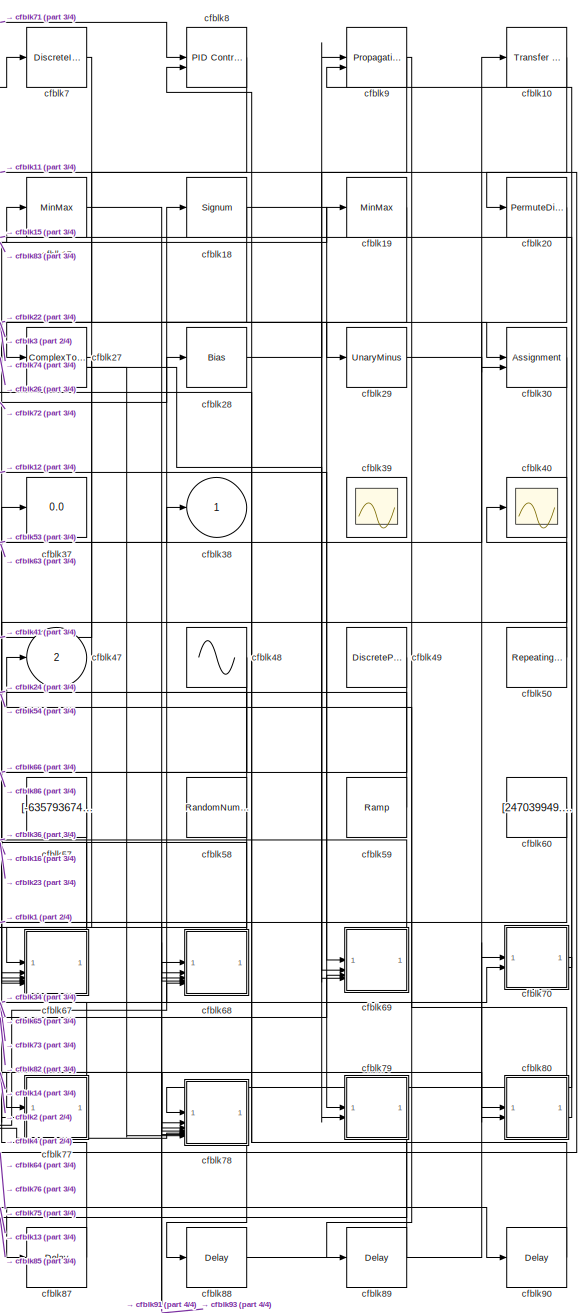
[diagram: root canvas - part 1/4, right side, full height]
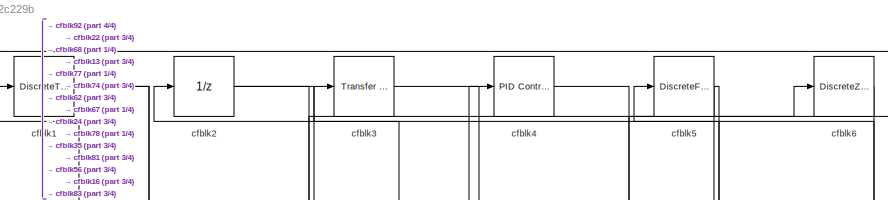
[diagram: root canvas - part 2/4, top left region]
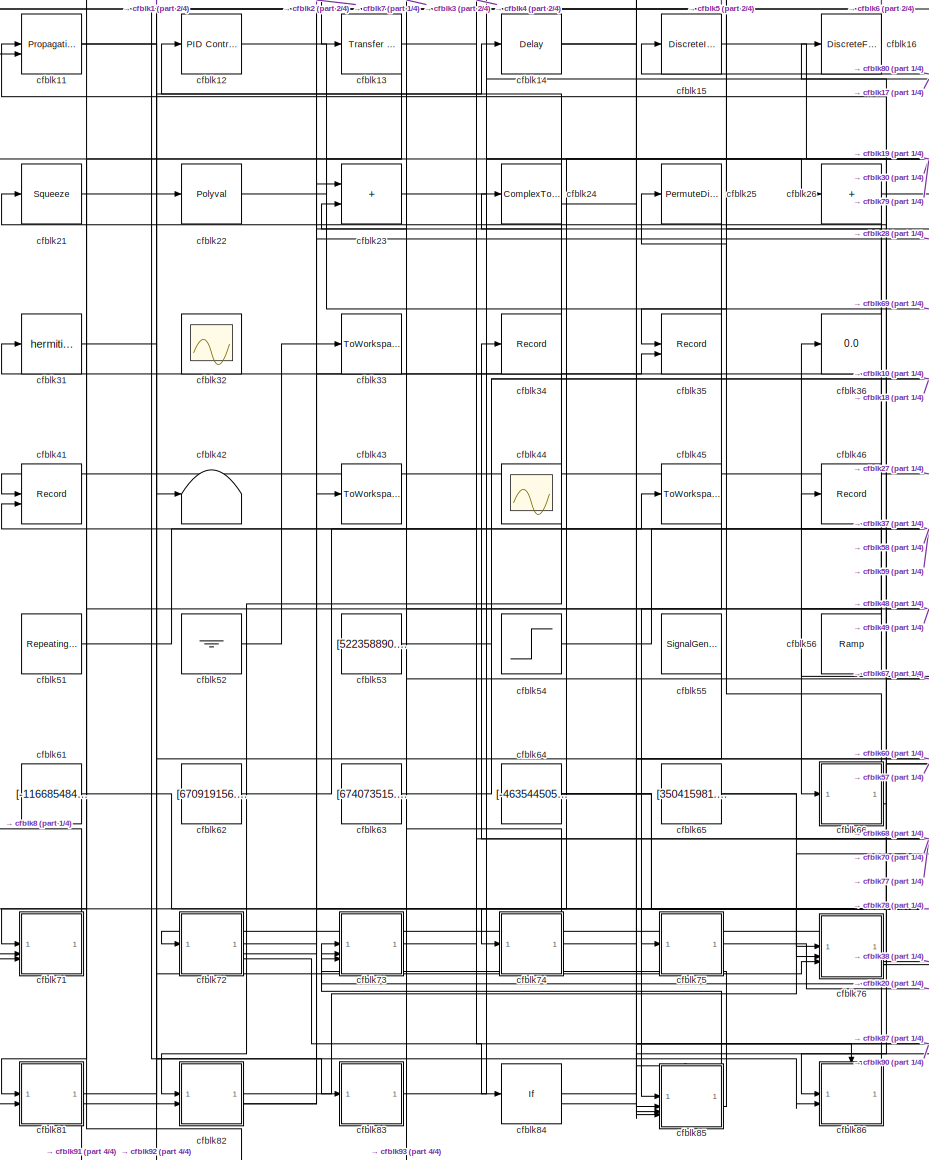
[diagram: root canvas - part 3/4, left side, full height]
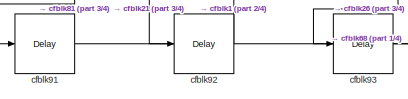
[diagram: root canvas - part 4/4, bottom left region]
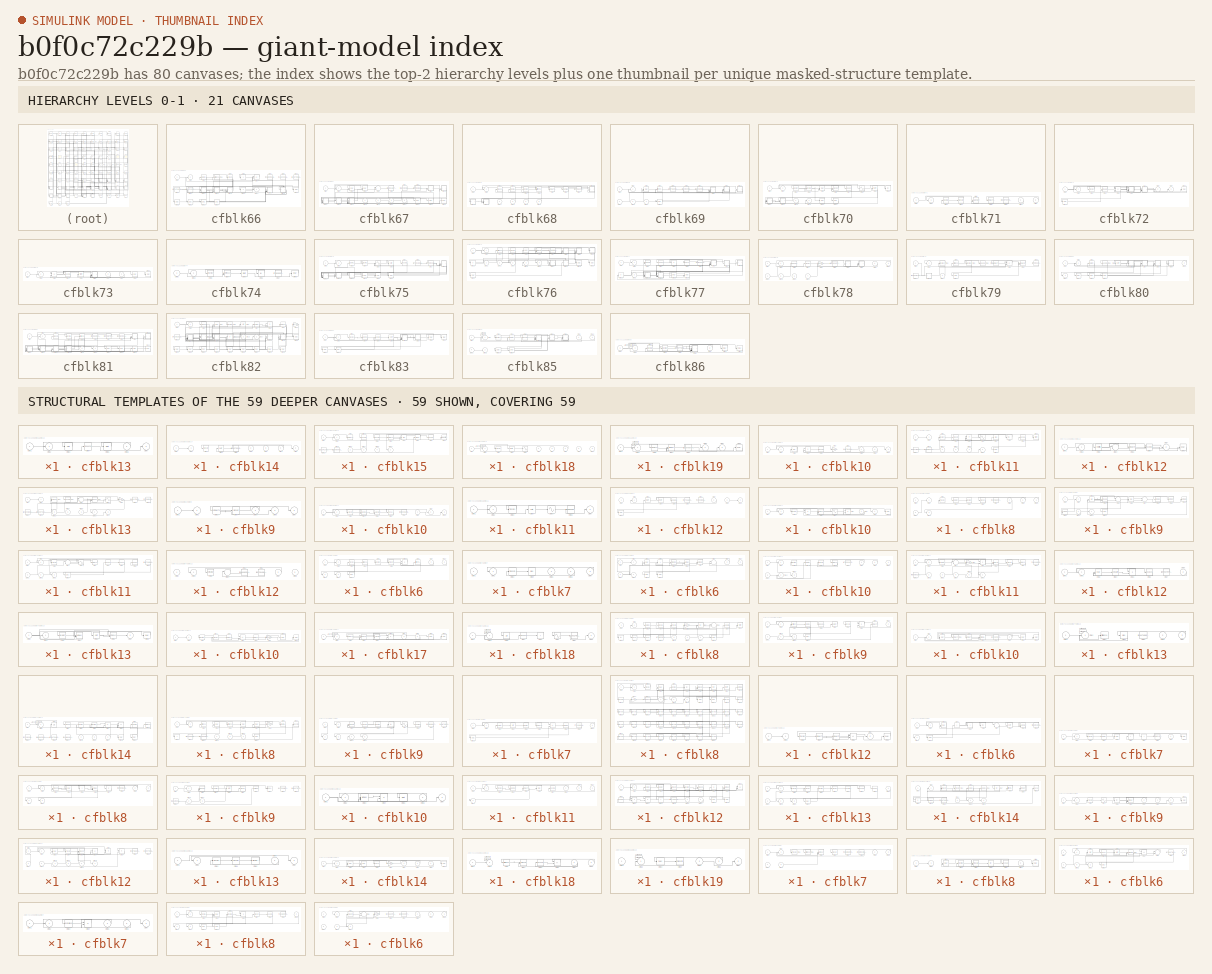
[diagram: thumbnail index - top-2 hierarchy levels (21 canvases) + 59 structural-template representatives of the remaining 59 canvases]
MODEL slx_b0f0c72c229b
KIND model
CONFIG AbsTol = auto
CONFIG EnableMultiTasking = off
CONFIG FixedStep = auto
CONFIG MaxStep = auto
CONFIG MinStep = auto
CONFIG RelTol = 1e-3
CONFIG SampleTimeConstraint = Unconstrained
CONFIG SolverName = VariableStepAuto
CONFIG StartTime = 0.0
CONFIG StopTime = 10.0
BLOCK [DiscreteTransferFcn] cfblk1
  InputPortMap = u0
  SampleTime = 1
BLOCK [Reference] cfblk10  REF=simulink/Discrete/Transfer Fcn
First Order
  SourceBlock = simulink/Discrete/Transfer Fcn\nFirst Order
  SourceType = First Order Transfer Fcn
BLOCK [PropagationDelay] cfblk11
  SampleTime = 1
BLOCK [Reference] cfblk12  REF=slpidlib/PID Controller
  LibrarySourceBlock = simulink/Discrete/Discrete PID Controller
  SourceBlock = slpidlib/PID Controller
  SourceType = PID 1dof
BLOCK [Reference] cfblk13  REF=simulink/Discrete/Transfer Fcn
Real Zero
  SourceBlock = simulink/Discrete/Transfer Fcn\nReal Zero
  SourceType = Transfer Fcn Real Zero
BLOCK [Delay] cfblk14
  InputPortMap = u0
  SampleTime = 1
BLOCK [DiscreteIntegrator] cfblk15
  ICPrevOutput = DiscIntNeverNeededParam
  ICPrevScaledInput = DiscIntNeverNeededParam
  InitialConditionSetting = Auto
BLOCK [DiscreteFilter] cfblk16
  InputPortMap = u0
  SampleTime = 1
BLOCK [MinMax] cfblk17
  Function = max
BLOCK [Signum] cfblk18
BLOCK [MinMax] cfblk19
BLOCK [UnitDelay] cfblk2
  HasFrameUpgradeWarning = on
BLOCK [PermuteDimensions] cfblk20
BLOCK [Squeeze] cfblk21
BLOCK [Polyval] cfblk22
  Coefs = [ +2.081618890e-019, -1.441693666e-014, +4.719686976e-010, -8.536869453e-006, +1.621573104e-001, -8.087801117e+001 ]
BLOCK [Sum] cfblk23
  IconShape = rectangular
BLOCK [ComplexToRealImag] cfblk24
BLOCK [PermuteDimensions] cfblk25
BLOCK [Sum] cfblk26
  IconShape = rectangular
  Inputs = +
BLOCK [ComplexToRealImag] cfblk27
BLOCK [Bias] cfblk28
  Bias = [-9584225.220866]
  SaturateOnIntegerOverflow = off
BLOCK [UnaryMinus] cfblk29
BLOCK [Reference] cfblk3  REF=simulink/Discrete/Transfer Fcn
Lead or Lag
  SourceBlock = simulink/Discrete/Transfer Fcn\nLead or Lag
  SourceType = Lead or Lag Compensator
BLOCK [Assignment] cfblk30
  DiagnosticForDimensions = Warning
  IndexOptions = Index vector (dialog)
  Indices = 1
  OutputSizes = 1
BLOCK [Math] cfblk31
  Operator = hermitian
BLOCK [Scope] cfblk32
  Floating = on
  NumInputPorts = 1
BLOCK [ToWorkspace] cfblk33
  FixptAsFi = on
  MaxDataPoints = inf
  SampleTime = -1
  SaveFormat = Timeseries
  VariableName = eesnuqi
BLOCK [Record] cfblk34
  FileSettingsInternal = {"entries":[{"content":{"excelSettings":{"content":{},"type":"Streamout.ExcelSettings"}},"type":"Streamout.FileSettingStorage","uuid":""}],"packageUris":["http:\/\/schema.mathworks.com\/mf0\/streamout_blocks\/R2020a"],"version":"1.0"}  <repeated x4 — deduplicated; at blocks: cfblk34, cfblk35, cfblk41, cfblk46>
  SignalsInternal = {"entries":[{"content":{},"type":"RecordBlkView.InputSignals","uuid":""}],"packageUris":["http:\/\/schema.mathworks.com\/mf0\/streamout_blocks\/R2020a"],"version":"1.0"}
  VisualizationBindings = {"sparklinesplugin":{"info":[{"bindingParametersList":[],"subplotID":1}]}}
BLOCK [Record] cfblk35
  CompatibilityTag = XY
  Layout = [1 1]
  SignalsInternal = {"entries":[{"content":{"signals":[{"content":{"blockPath":[],"dimensions":[1],"domain":"","lineColor":"#a2142f","plots":[1],"port":1,"signalID":7067,"signalName":"XY Graph:1"},"type":"RecordBlkView.Signal","uuid":""},{"content":{"blockPath":[],"dimensions":[1],"domain":"","lineColor":"#139fff","plots":[1],"port":2,"signalID":7070,"signalName":"XY Graph:2"},"type":"RecordBlkView.Signal","uuid":""}...<+146ch>
  VisualizationBindings = {"xyplotplugin":{"info":[{"series":[{"bindingParametersList":[{"parameter":"X-Axis","signalID":7067,"signalName":"XY Graph:1"},{"parameter":"Y-Axis","signalID":7070,"signalName":"XY Graph:2"}],"seriesID":4920}],"subplotID":1}]}}
BLOCK [Display] cfblk36
  Decimation = 1
BLOCK [Display] cfblk37
  Decimation = 1
BLOCK [Outport] cfblk38
BLOCK [Scope] cfblk39
  Floating = on
  NumInputPorts = 1
BLOCK [Reference] cfblk4  REF=slpidlib/PID Controller
  LibrarySourceBlock = simulink/Discrete/Discrete PID Controller
  SourceBlock = slpidlib/PID Controller
  SourceType = PID 1dof
BLOCK [Scope] cfblk40
  Floating = off
  NumInputPorts = 1
BLOCK [Record] cfblk41
  CompatibilityTag = XY
  Layout = [1 1]
  SignalsInternal = {"entries":[{"content":{"signals":[{"content":{"blockPath":[],"dimensions":[1],"domain":"","lineColor":"#a2142f","plots":[1],"port":1,"signalID":7075,"signalName":"XY Graph:1"},"type":"RecordBlkView.Signal","uuid":""},{"content":{"blockPath":[],"dimensions":[1],"domain":"","lineColor":"#139fff","plots":[1],"port":2,"signalID":7078,"signalName":"XY Graph:2"},"type":"RecordBlkView.Signal","uuid":""}...<+146ch>
  VisualizationBindings = {"xyplotplugin":{"info":[{"series":[{"bindingParametersList":[{"parameter":"X-Axis","signalID":7075,"signalName":"XY Graph:1"},{"parameter":"Y-Axis","signalID":7078,"signalName":"XY Graph:2"}],"seriesID":57556}],"subplotID":1}]}}
BLOCK [Terminator] cfblk42
BLOCK [ToWorkspace] cfblk43
  FixptAsFi = on
  MaxDataPoints = inf
  SampleTime = -1
  SaveFormat = Timeseries
  VariableName = uruljnx
BLOCK [Scope] cfblk44
  Floating = on
  NumInputPorts = 1
BLOCK [ToWorkspace] cfblk45
  FixptAsFi = on
  MaxDataPoints = inf
  SampleTime = -1
  SaveFormat = Timeseries
  VariableName = kigkgtq
BLOCK [Record] cfblk46
  SignalsInternal = {"entries":[{"content":{},"type":"RecordBlkView.InputSignals","uuid":""}],"packageUris":["http:\/\/schema.mathworks.com\/mf0\/streamout_blocks\/R2020a"],"version":"1.0"}
  VisualizationBindings = {"sparklinesplugin":{"info":[{"bindingParametersList":[],"subplotID":1}]}}
BLOCK [Outport] cfblk47
  Port = 2
BLOCK [Sin] cfblk48
  Amplitude = [-114509519.258269]
  Bias = [-794873402.533103]
  SampleTime = 0
BLOCK [DiscretePulseGenerator] cfblk49
  Amplitude = [983212804.786086]
  Period = [36735637.140367]
  PhaseDelay = [7.000000]
  PulseType = Time based
  PulseWidth = 5
BLOCK [DiscreteFir] cfblk5
  InputPortMap = u0
  OutputPortMap = o0
  SampleTime = 1
BLOCK [Reference] cfblk50  REF=simulink/Sources/Repeating
Sequence
Interpolated
  SourceBlock = simulink/Sources/Repeating\nSequence\nInterpolated
  SourceType = Repeating Sequence Interpolated
BLOCK [Reference] cfblk51  REF=simulink/Sources/Repeating
Sequence
Interpolated
  SourceBlock = simulink/Sources/Repeating\nSequence\nInterpolated
  SourceType = Repeating Sequence Interpolated
BLOCK [Ground] cfblk52
BLOCK [Constant] cfblk53
  SampleTime = 1
  Value = [522358890.421962]
BLOCK [Step] cfblk54
  After = [-24350030.205386]
  Before = [-523718207.875303]
  SampleTime = 0
  Time = [46.000000]
BLOCK [SignalGenerator] cfblk55
  Amplitude = [-796796388.431392]
  WaveForm = square
BLOCK [Reference] cfblk56  REF=simulink/Sources/Ramp
  SourceBlock = simulink/Sources/Ramp
  SourceType = Ramp
BLOCK [Constant] cfblk57
  SampleTime = 1
  Value = [-635793674.928637]
BLOCK [RandomNumber] cfblk58
  Mean = [33488.965661]
  SampleTime = 0.1
  Seed = [473972234.000000]
  Variance = [98341.878984]
BLOCK [Reference] cfblk59  REF=simulink/Sources/Ramp
  SourceBlock = simulink/Sources/Ramp
  SourceType = Ramp
BLOCK [DiscreteZeroPole] cfblk6
  Gain = 1
  Poles = [0 0.5]
BLOCK [Constant] cfblk60
  SampleTime = 1
  Value = [247039949.744225]
BLOCK [Constant] cfblk61
  SampleTime = 1
  Value = [-116685484.494063]
BLOCK [Constant] cfblk62
  SampleTime = 1
  Value = [670919156.990491]
BLOCK [Constant] cfblk63
  SampleTime = 1
  Value = [674073515.709504]
BLOCK [Constant] cfblk64
  SampleTime = 1
  Value = [-463544505.644140]
BLOCK [Constant] cfblk65
  SampleTime = 1
  Value = [350415981.600112]
BLOCK [SubSystem] cfblk66
BLOCK [Inport] cfblk66/cfblk1
BLOCK [Constant] cfblk66/cfblk10
  SampleTime = 1
  Value = [-600178256.771541]
BLOCK [Constant] cfblk66/cfblk11
  SampleTime = 1
  Value = [-152170020.795263]
BLOCK [Constant] cfblk66/cfblk12
  SampleTime = 1
  Value = [904372302.083905]
BLOCK [SubSystem] cfblk66/cfblk13
BLOCK [Inport] cfblk66/cfblk13/cfblk1
BLOCK [Outport] cfblk66/cfblk13/cfblk2
BLOCK [Sqrt] cfblk66/cfblk13/cfblk3
BLOCK [Squeeze] cfblk66/cfblk13/cfblk4
BLOCK [Sqrt] cfblk66/cfblk13/cfblk5
  AlgorithmType = Newton-Raphson
  Operator = rSqrt
BLOCK [Inport] cfblk66/cfblk13/cfblk6
  Port = 2
BLOCK [Outport] cfblk66/cfblk13/cfblk7
  Port = 2
BLOCK [SubSystem] cfblk66/cfblk14
BLOCK [Inport] cfblk66/cfblk14/cfblk1
BLOCK [Outport] cfblk66/cfblk14/cfblk2
BLOCK [Reference] cfblk66/cfblk14/cfblk3  REF=simulink/Discrete/Transfer Fcn
Lead or Lag
  SourceBlock = simulink/Discrete/Transfer Fcn\nLead or Lag
  SourceType = Lead or Lag Compensator
BLOCK [Sqrt] cfblk66/cfblk14/cfblk4
BLOCK [Constant] cfblk66/cfblk14/cfblk5
  SampleTime = 1
  Value = [-839375505.273001]
BLOCK [Inport] cfblk66/cfblk14/cfblk6
  Port = 2
BLOCK [Inport] cfblk66/cfblk14/cfblk7
  Port = 3
BLOCK [Inport] cfblk66/cfblk14/cfblk8
  Port = 4
BLOCK [Outport] cfblk66/cfblk14/cfblk9
  Port = 2
BLOCK [SubSystem] cfblk66/cfblk15
BLOCK [Inport] cfblk66/cfblk15/cfblk1
BLOCK [Math] cfblk66/cfblk15/cfblk10
  Operator = magnitude^2
BLOCK [Constant] cfblk66/cfblk15/cfblk11
  SampleTime = 1
  Value = [-251674170.003043]
BLOCK [Constant] cfblk66/cfblk15/cfblk12
  SampleTime = 1
  Value = [626786403.069407]
BLOCK [Inport] cfblk66/cfblk15/cfblk13
  Port = 2
BLOCK [Inport] cfblk66/cfblk15/cfblk14
  Port = 3
BLOCK [Inport] cfblk66/cfblk15/cfblk15
  Port = 4
BLOCK [Outport] cfblk66/cfblk15/cfblk16
  Port = 2
BLOCK [Outport] cfblk66/cfblk15/cfblk2
BLOCK [ComplexToMagnitudeAngle] cfblk66/cfblk15/cfblk3
BLOCK [Rounding] cfblk66/cfblk15/cfblk4
BLOCK [Rounding] cfblk66/cfblk15/cfblk5
BLOCK [ComplexToMagnitudeAngle] cfblk66/cfblk15/cfblk6
BLOCK [Bias] cfblk66/cfblk15/cfblk7
  Bias = [495953652.655250]
  SaturateOnIntegerOverflow = off
BLOCK [MinMax] cfblk66/cfblk15/cfblk8
  Function = max
BLOCK [Reshape] cfblk66/cfblk15/cfblk9
BLOCK [If] cfblk66/cfblk16
  IfExpression = u1 >= 0
  SampleTime = 1
BLOCK [Outport] cfblk66/cfblk17
  Port = 2
BLOCK [SubSystem] cfblk66/cfblk18
  TreatAsAtomicUnit = on
BLOCK [ActionPort] cfblk66/cfblk18/Action Port
  ActionPortLabel = if(u1 >= 0)
BLOCK [Inport] cfblk66/cfblk18/cfblk1
BLOCK [Inport] cfblk66/cfblk18/cfblk10
  Port = 6
BLOCK [Outport] cfblk66/cfblk18/cfblk2
BLOCK [Reference] cfblk66/cfblk18/cfblk3  REF=simulink/Discrete/Transfer Fcn
Real Zero
  SourceBlock = simulink/Discrete/Transfer Fcn\nReal Zero
  SourceType = Transfer Fcn Real Zero
BLOCK [Sqrt] cfblk66/cfblk18/cfblk4
  AlgorithmType = Newton-Raphson
  Operator = rSqrt
BLOCK [Sin] cfblk66/cfblk18/cfblk5
  SampleTime = 0
  TimeSource = Use external signal
BLOCK [Inport] cfblk66/cfblk18/cfblk6
  Port = 2
BLOCK [Inport] cfblk66/cfblk18/cfblk7
  Port = 3
BLOCK [Inport] cfblk66/cfblk18/cfblk8
  Port = 4
BLOCK [Inport] cfblk66/cfblk18/cfblk9
  Port = 5
BLOCK [SubSystem] cfblk66/cfblk19
  TreatAsAtomicUnit = on
BLOCK [ActionPort] cfblk66/cfblk19/Action Port
  ActionPortLabel = else
BLOCK [Inport] cfblk66/cfblk19/cfblk1
BLOCK [Outport] cfblk66/cfblk19/cfblk2
BLOCK [ComplexToRealImag] cfblk66/cfblk19/cfblk3
BLOCK [MinMax] cfblk66/cfblk19/cfblk4
  Inputs = 2
BLOCK [Constant] cfblk66/cfblk19/cfblk5
  SampleTime = 1
  Value = [-227070077.037174]
BLOCK [Outport] cfblk66/cfblk19/cfblk6
  Port = 2
BLOCK [Outport] cfblk66/cfblk19/cfblk7
  Port = 3
BLOCK [Delay] cfblk66/cfblk19/cfblk8
  InputPortMap = u0
BLOCK [Outport] cfblk66/cfblk2
BLOCK [Delay] cfblk66/cfblk20
  InputPortMap = u0
  SampleTime = 1
BLOCK [Delay] cfblk66/cfblk21
  InputPortMap = u0
  SampleTime = 1
BLOCK [Delay] cfblk66/cfblk22
  InputPortMap = u0
  SampleTime = 1
BLOCK [Delay] cfblk66/cfblk23
  InputPortMap = u0
  SampleTime = 1
BLOCK [Delay] cfblk66/cfblk24
  InputPortMap = u0
  SampleTime = 1
BLOCK [DiscreteZeroPole] cfblk66/cfblk3
  Gain = 1
  Poles = [0 0.5]
BLOCK [Reference] cfblk66/cfblk4  REF=simulink/Discrete/Difference
  SourceBlock = simulink/Discrete/Difference
  SourceType = Difference
BLOCK [Signum] cfblk66/cfblk5
BLOCK [Sum] cfblk66/cfblk6
  IconShape = rectangular
  Inputs = +
BLOCK [Sum] cfblk66/cfblk7
  IconShape = rectangular
  Inputs = --
BLOCK [Constant] cfblk66/cfblk8
  SampleTime = 1
  Value = [906884928.062527]
BLOCK [Constant] cfblk66/cfblk9
  SampleTime = 1
  Value = [911232495.981789]
BLOCK [SubSystem] cfblk67
BLOCK [Inport] cfblk67/cfblk1
BLOCK [SubSystem] cfblk67/cfblk10
BLOCK [Inport] cfblk67/cfblk10/cfblk1
BLOCK [Outport] cfblk67/cfblk10/cfblk10
  Port = 2
BLOCK [Outport] cfblk67/cfblk10/cfblk2
BLOCK [Bias] cfblk67/cfblk10/cfblk3
  Bias = [238636764.032939]
  SaturateOnIntegerOverflow = off
BLOCK [Product] cfblk67/cfblk10/cfblk4
BLOCK [Reshape] cfblk67/cfblk10/cfblk5
BLOCK [Gain] cfblk67/cfblk10/cfblk6
  Gain = [-424860708.479357]
BLOCK [Constant] cfblk67/cfblk10/cfblk7
  SampleTime = 1
  Value = [19879162.479330]
BLOCK [Inport] cfblk67/cfblk10/cfblk8
  Port = 2
BLOCK [Inport] cfblk67/cfblk10/cfblk9
  Port = 3
BLOCK [SubSystem] cfblk67/cfblk11
BLOCK [Inport] cfblk67/cfblk11/cfblk1
BLOCK [Sqrt] cfblk67/cfblk11/cfblk10
  AlgorithmType = Newton-Raphson
  Operator = rSqrt
BLOCK [Constant] cfblk67/cfblk11/cfblk11
  SampleTime = 1
  Value = [296373854.446604]
BLOCK [Constant] cfblk67/cfblk11/cfblk12
  SampleTime = 1
  Value = [-628885576.522489]
BLOCK [Inport] cfblk67/cfblk11/cfblk13
  Port = 2
BLOCK [Inport] cfblk67/cfblk11/cfblk14
  Port = 3
BLOCK [Inport] cfblk67/cfblk11/cfblk15
  Port = 4
BLOCK [Outport] cfblk67/cfblk11/cfblk16
  Port = 2
BLOCK [Delay] cfblk67/cfblk11/cfblk17
  InputPortMap = u0
  SampleTime = 1
BLOCK [Outport] cfblk67/cfblk11/cfblk2
BLOCK [DiscreteFilter] cfblk67/cfblk11/cfblk3
  InputPortMap = u0
  SampleTime = 1
BLOCK [Reference] cfblk67/cfblk11/cfblk4  REF=slpidlib/PID Controller
  LibrarySourceBlock = simulink/Discrete/Discrete PID Controller
  SourceBlock = slpidlib/PID Controller
  SourceType = PID 1dof
BLOCK [Product] cfblk67/cfblk11/cfblk5
BLOCK [Sin] cfblk67/cfblk11/cfblk6
  SampleTime = 0
  TimeSource = Use external signal
BLOCK [Bias] cfblk67/cfblk11/cfblk7
  Bias = [784818035.940035]
  SaturateOnIntegerOverflow = off
BLOCK [Abs] cfblk67/cfblk11/cfblk8
  SaturateOnIntegerOverflow = off
BLOCK [Reshape] cfblk67/cfblk11/cfblk9
BLOCK [SubSystem] cfblk67/cfblk12
BLOCK [Inport] cfblk67/cfblk12/cfblk1
BLOCK [Outport] cfblk67/cfblk12/cfblk2
BLOCK [Math] cfblk67/cfblk12/cfblk3
  Operator = hermitian
BLOCK [Sum] cfblk67/cfblk12/cfblk4
  Inputs = |++
BLOCK [ComplexToMagnitudeAngle] cfblk67/cfblk12/cfblk5
BLOCK [Rounding] cfblk67/cfblk12/cfblk6
BLOCK [Outport] cfblk67/cfblk12/cfblk7
  Port = 2
BLOCK [Delay] cfblk67/cfblk12/cfblk8
  InputPortMap = u0
  SampleTime = 1
BLOCK [SubSystem] cfblk67/cfblk13
BLOCK [Inport] cfblk67/cfblk13/cfblk1
BLOCK [Constant] cfblk67/cfblk13/cfblk10
  SampleTime = 1
  Value = [-767585306.533240]
BLOCK [Constant] cfblk67/cfblk13/cfblk11
  SampleTime = 1
  Value = [-806093587.337809]
BLOCK [Constant] cfblk67/cfblk13/cfblk12
  SampleTime = 1
  Value = [431297317.620696]
BLOCK [Inport] cfblk67/cfblk13/cfblk13
  Port = 2
BLOCK [Inport] cfblk67/cfblk13/cfblk14
  Port = 3
BLOCK [Inport] cfblk67/cfblk13/cfblk15
  Port = 4
BLOCK [Outport] cfblk67/cfblk13/cfblk16
  Port = 2
BLOCK [Outport] cfblk67/cfblk13/cfblk17
  Port = 3
BLOCK [Outport] cfblk67/cfblk13/cfblk2
BLOCK [Reference] cfblk67/cfblk13/cfblk3  REF=slpidlib/PID Controller (2DOF)
  LibrarySourceBlock = simulink/Discrete/Discrete PID Controller (2DOF)
  SourceBlock = slpidlib/PID Controller (2DOF)
  SourceType = PID 2dof
BLOCK [Rounding] cfblk67/cfblk13/cfblk4
BLOCK [Sum] cfblk67/cfblk13/cfblk5
  Inputs = |++
BLOCK [Reference] cfblk67/cfblk13/cfblk6  REF=simulink/Math
Operations/MinMax
Running
Resettable
  SourceBlock = simulink/Math\nOperations/MinMax\nRunning\nResettable
  SourceType = MinMax Running Resettable
BLOCK [Sin] cfblk67/cfblk13/cfblk7
  SampleTime = 0
  TimeSource = Use external signal
BLOCK [Gain] cfblk67/cfblk13/cfblk8
  Gain = [-992054521.109580]
BLOCK [Constant] cfblk67/cfblk13/cfblk9
  SampleTime = 1
  Value = [183117835.733264]
BLOCK [Inport] cfblk67/cfblk14
  Port = 2
BLOCK [Inport] cfblk67/cfblk15
  Port = 3
BLOCK [Inport] cfblk67/cfblk16
  Port = 4
BLOCK [Inport] cfblk67/cfblk17
  Port = 5
BLOCK [Delay] cfblk67/cfblk18
  InputPortMap = u0
  SampleTime = 1
BLOCK [Delay] cfblk67/cfblk19
  InputPortMap = u0
  SampleTime = 1
BLOCK [Outport] cfblk67/cfblk2
BLOCK [Delay] cfblk67/cfblk20
  InputPortMap = u0
  SampleTime = 1
BLOCK [Delay] cfblk67/cfblk3
  DelayLengthSource = Input port
  InputPortMap = u0,p1
  SampleTime = 1
BLOCK [Delay] cfblk67/cfblk4
  DelayLengthSource = Input port
  InputPortMap = u0,p1
  SampleTime = 1
BLOCK [Sum] cfblk67/cfblk5
  Inputs = |++
BLOCK [Constant] cfblk67/cfblk6
  SampleTime = 1
  Value = [33325161.715487]
BLOCK [Constant] cfblk67/cfblk7
  SampleTime = 1
  Value = [-968443267.063511]
BLOCK [Constant] cfblk67/cfblk8
  SampleTime = 1
  Value = [-280468665.422645]
BLOCK [SubSystem] cfblk67/cfblk9
BLOCK [Inport] cfblk67/cfblk9/cfblk1
BLOCK [Outport] cfblk67/cfblk9/cfblk2
BLOCK [ComplexToMagnitudeAngle] cfblk67/cfblk9/cfblk3
BLOCK [Signum] cfblk67/cfblk9/cfblk4
BLOCK [Inport] cfblk67/cfblk9/cfblk5
  Port = 2
BLOCK [Outport] cfblk67/cfblk9/cfblk6
  Port = 2
BLOCK [Outport] cfblk67/cfblk9/cfblk7
  Port = 3
BLOCK [SubSystem] cfblk68
BLOCK [Inport] cfblk68/cfblk1
BLOCK [SubSystem] cfblk68/cfblk10
BLOCK [Inport] cfblk68/cfblk10/cfblk1
BLOCK [Outport] cfblk68/cfblk10/cfblk10
  Port = 3
BLOCK [Outport] cfblk68/cfblk10/cfblk2
BLOCK [Signum] cfblk68/cfblk10/cfblk3
BLOCK [Assignment] cfblk68/cfblk10/cfblk4
  DiagnosticForDimensions = Warning
  IndexOptions = Index vector (dialog)
  Indices = 1
  OutputSizes = 1
BLOCK [Assignment] cfblk68/cfblk10/cfblk5
  DiagnosticForDimensions = Warning
  IndexOptions = Index vector (dialog)
  Indices = 1
  OutputSizes = 1
BLOCK [Polyval] cfblk68/cfblk10/cfblk6
  Coefs = [ +2.081618890e-019, -1.441693666e-014, +4.719686976e-010, -8.536869453e-006, +1.621573104e-001, -8.087801117e+001 ]
BLOCK [Constant] cfblk68/cfblk10/cfblk7
  SampleTime = 1
  Value = [98849253.801429]
BLOCK [Inport] cfblk68/cfblk10/cfblk8
  Port = 2
BLOCK [Outport] cfblk68/cfblk10/cfblk9
  Port = 2
BLOCK [SubSystem] cfblk68/cfblk11
BLOCK [Inport] cfblk68/cfblk11/cfblk1
BLOCK [Outport] cfblk68/cfblk11/cfblk2
BLOCK [Reference] cfblk68/cfblk11/cfblk3  REF=simulink/Discrete/Transfer Fcn
Real Zero
  SourceBlock = simulink/Discrete/Transfer Fcn\nReal Zero
  SourceType = Transfer Fcn Real Zero
BLOCK [Sqrt] cfblk68/cfblk11/cfblk4
BLOCK [Sin] cfblk68/cfblk11/cfblk5
  SampleTime = 0
  TimeSource = Use external signal
BLOCK [Constant] cfblk68/cfblk11/cfblk6
  SampleTime = 1
  Value = [-30083108.306544]
BLOCK [Outport] cfblk68/cfblk11/cfblk7
  Port = 2
BLOCK [SubSystem] cfblk68/cfblk12
BLOCK [Inport] cfblk68/cfblk12/cfblk1
BLOCK [Outport] cfblk68/cfblk12/cfblk10
  Port = 2
BLOCK [Delay] cfblk68/cfblk12/cfblk11
  InputPortMap = u0
  SampleTime = 1
BLOCK [Outport] cfblk68/cfblk12/cfblk2
BLOCK [Sqrt] cfblk68/cfblk12/cfblk3
  AlgorithmType = Newton-Raphson
  Operator = rSqrt
BLOCK [Sqrt] cfblk68/cfblk12/cfblk4
  AlgorithmType = Newton-Raphson
  Operator = rSqrt
BLOCK [UnaryMinus] cfblk68/cfblk12/cfblk5
BLOCK [Constant] cfblk68/cfblk12/cfblk6
  SampleTime = 1
  Value = [-767016694.805190]
BLOCK [Constant] cfblk68/cfblk12/cfblk7
  SampleTime = 1
  Value = [720999885.534113]
BLOCK [Inport] cfblk68/cfblk12/cfblk8
  Port = 2
BLOCK [Inport] cfblk68/cfblk12/cfblk9
  Port = 3
BLOCK [Inport] cfblk68/cfblk13
  Port = 2
BLOCK [Inport] cfblk68/cfblk14
  Port = 3
BLOCK [Inport] cfblk68/cfblk15
  Port = 4
BLOCK [Inport] cfblk68/cfblk16
  Port = 5
BLOCK [Outport] cfblk68/cfblk2
BLOCK [Reference] cfblk68/cfblk3  REF=slpidlib/PID Controller
  LibrarySourceBlock = simulink/Discrete/Discrete PID Controller
  SourceBlock = slpidlib/PID Controller
  SourceType = PID 1dof
BLOCK [DiscreteIntegrator] cfblk68/cfblk4
  ICPrevOutput = DiscIntNeverNeededParam
  ICPrevScaledInput = DiscIntNeverNeededParam
  InitialConditionSetting = Auto
BLOCK [DiscreteZeroPole] cfblk68/cfblk5
  Gain = 1
  Poles = [0 0.5]
BLOCK [Trigonometry] cfblk68/cfblk6
BLOCK [ComplexToRealImag] cfblk68/cfblk7
BLOCK [UnaryMinus] cfblk68/cfblk8
BLOCK [Constant] cfblk68/cfblk9
  SampleTime = 1
  Value = [-547815006.081445]
BLOCK [SubSystem] cfblk69
BLOCK [Inport] cfblk69/cfblk1
BLOCK [SubSystem] cfblk69/cfblk10
BLOCK [Inport] cfblk69/cfblk10/cfblk1
BLOCK [Delay] cfblk69/cfblk10/cfblk10
  InputPortMap = u0
  SampleTime = 1
BLOCK [Outport] cfblk69/cfblk10/cfblk2
BLOCK [DiscreteTransferFcn] cfblk69/cfblk10/cfblk3
  InputPortMap = u0
  SampleTime = 1
BLOCK [Product] cfblk69/cfblk10/cfblk4
BLOCK [DotProduct] cfblk69/cfblk10/cfblk5
  OutDataTypeStr = Inherit: Inherit via internal rule
BLOCK [Sin] cfblk69/cfblk10/cfblk6
  SampleTime = 0
  TimeSource = Use external signal
BLOCK [Product] cfblk69/cfblk10/cfblk7
BLOCK [Inport] cfblk69/cfblk10/cfblk8
  Port = 2
BLOCK [Outport] cfblk69/cfblk10/cfblk9
  Port = 2
BLOCK [Inport] cfblk69/cfblk11
  Port = 2
BLOCK [Inport] cfblk69/cfblk12
  Port = 3
BLOCK [Inport] cfblk69/cfblk13
  Port = 4
BLOCK [Delay] cfblk69/cfblk14
  InputPortMap = u0
  SampleTime = 1
BLOCK [Outport] cfblk69/cfblk2
BLOCK [Delay] cfblk69/cfblk3
  InputPortMap = u0,e6
  SampleTime = 1
  ShowEnablePort = on
BLOCK [Trigonometry] cfblk69/cfblk4
BLOCK [Constant] cfblk69/cfblk5
  SampleTime = 1
  Value = [283766932.316221]
BLOCK [Constant] cfblk69/cfblk6
  SampleTime = 1
  Value = [391082384.786132]
BLOCK [Constant] cfblk69/cfblk7
  SampleTime = 1
  Value = [-806418958.515881]
BLOCK [SubSystem] cfblk69/cfblk8
BLOCK [Inport] cfblk69/cfblk8/cfblk1
BLOCK [Inport] cfblk69/cfblk8/cfblk10
  Port = 4
BLOCK [Inport] cfblk69/cfblk8/cfblk11
  Port = 5
BLOCK [Outport] cfblk69/cfblk8/cfblk12
  Port = 2
BLOCK [Outport] cfblk69/cfblk8/cfblk2
BLOCK [Reference] cfblk69/cfblk8/cfblk3  REF=simulink/Discrete/Transfer Fcn
Lead or Lag
  SourceBlock = simulink/Discrete/Transfer Fcn\nLead or Lag
  SourceType = Lead or Lag Compensator
BLOCK [DiscreteFilter] cfblk69/cfblk8/cfblk4
  InputPortMap = u0
  SampleTime = 1
BLOCK [DiscreteZeroPole] cfblk69/cfblk8/cfblk5
  Gain = 1
  Poles = [0 0.5]
BLOCK [Signum] cfblk69/cfblk8/cfblk6
BLOCK [Constant] cfblk69/cfblk8/cfblk7
  SampleTime = 1
  Value = [914455330.791189]
BLOCK [Inport] cfblk69/cfblk8/cfblk8
  Port = 2
BLOCK [Inport] cfblk69/cfblk8/cfblk9
  Port = 3
BLOCK [SubSystem] cfblk69/cfblk9
BLOCK [Inport] cfblk69/cfblk9/cfblk1
BLOCK [PermuteDimensions] cfblk69/cfblk9/cfblk10
BLOCK [Assignment] cfblk69/cfblk9/cfblk11
  DiagnosticForDimensions = Warning
  IndexOptions = Index vector (dialog)
  Indices = 1
  OutputSizes = 1
BLOCK [Inport] cfblk69/cfblk9/cfblk12
  Port = 2
BLOCK [Outport] cfblk69/cfblk9/cfblk13
  Port = 2
BLOCK [Delay] cfblk69/cfblk9/cfblk14
  InputPortMap = u0
  SampleTime = 1
BLOCK [Outport] cfblk69/cfblk9/cfblk2
BLOCK [UnitDelay] cfblk69/cfblk9/cfblk3
  HasFrameUpgradeWarning = on
BLOCK [PropagationDelay] cfblk69/cfblk9/cfblk4
  SampleTime = 1
BLOCK [Sum] cfblk69/cfblk9/cfblk5
  Inputs = |++
BLOCK [Bias] cfblk69/cfblk9/cfblk6
  Bias = [730773423.709909]
  SaturateOnIntegerOverflow = off
BLOCK [Sum] cfblk69/cfblk9/cfblk7
  Inputs = |++
BLOCK [PermuteDimensions] cfblk69/cfblk9/cfblk8
BLOCK [PermuteDimensions] cfblk69/cfblk9/cfblk9
BLOCK [DiscreteIntegrator] cfblk7
  ICPrevOutput = DiscIntNeverNeededParam
  ICPrevScaledInput = DiscIntNeverNeededParam
  InitialConditionSetting = Auto
BLOCK [SubSystem] cfblk70
BLOCK [Inport] cfblk70/cfblk1
BLOCK [Abs] cfblk70/cfblk10
  SaturateOnIntegerOverflow = off
BLOCK [SubSystem] cfblk70/cfblk11
BLOCK [Inport] cfblk70/cfblk11/cfblk1
BLOCK [Constant] cfblk70/cfblk11/cfblk10
  SampleTime = 1
  Value = [-563739383.067400]
BLOCK [Inport] cfblk70/cfblk11/cfblk11
  Port = 2
BLOCK [Inport] cfblk70/cfblk11/cfblk12
  Port = 3
BLOCK [Outport] cfblk70/cfblk11/cfblk13
  Port = 2
BLOCK [Delay] cfblk70/cfblk11/cfblk14
  InputPortMap = u0
  SampleTime = 1
BLOCK [Outport] cfblk70/cfblk11/cfblk2
BLOCK [Reference] cfblk70/cfblk11/cfblk3  REF=simulink/Discrete/Transfer Fcn
Real Zero
  SourceBlock = simulink/Discrete/Transfer Fcn\nReal Zero
  SourceType = Transfer Fcn Real Zero
BLOCK [Sum] cfblk70/cfblk11/cfblk4
  Inputs = |++
BLOCK [Sin] cfblk70/cfblk11/cfblk5
  SampleTime = 0
  TimeSource = Use external signal
BLOCK [ComplexToRealImag] cfblk70/cfblk11/cfblk6
BLOCK [Squeeze] cfblk70/cfblk11/cfblk7
BLOCK [Squeeze] cfblk70/cfblk11/cfblk8
BLOCK [Squeeze] cfblk70/cfblk11/cfblk9
BLOCK [SubSystem] cfblk70/cfblk12
BLOCK [Inport] cfblk70/cfblk12/cfblk1
BLOCK [Outport] cfblk70/cfblk12/cfblk2
BLOCK [PermuteDimensions] cfblk70/cfblk12/cfblk3
BLOCK [Sum] cfblk70/cfblk12/cfblk4
  Inputs = |++
BLOCK [Constant] cfblk70/cfblk12/cfblk5
  SampleTime = 1
  Value = [298468259.932732]
BLOCK [Constant] cfblk70/cfblk12/cfblk6
  SampleTime = 1
  Value = [657394681.251701]
BLOCK [Inport] cfblk70/cfblk12/cfblk7
  Port = 2
BLOCK [Inport] cfblk70/cfblk12/cfblk8
  Port = 3
BLOCK [Inport] cfblk70/cfblk13
  Port = 2
BLOCK [Outport] cfblk70/cfblk14
  Port = 2
BLOCK [Delay] cfblk70/cfblk15
  InputPortMap = u0
  SampleTime = 1
BLOCK [Delay] cfblk70/cfblk16
  InputPortMap = u0
  SampleTime = 1
BLOCK [Outport] cfblk70/cfblk2
BLOCK [DiscreteFilter] cfblk70/cfblk3
  InputPortMap = u0
  SampleTime = 1
BLOCK [DiscreteIntegrator] cfblk70/cfblk4
  ICPrevOutput = DiscIntNeverNeededParam
  ICPrevScaledInput = DiscIntNeverNeededParam
  InitialConditionSetting = Auto
BLOCK [Delay] cfblk70/cfblk5
  DelayLengthSource = Input port
  InputPortMap = u0,p1
  SampleTime = 1
BLOCK [Assignment] cfblk70/cfblk6
  DiagnosticForDimensions = Warning
  IndexOptions = Index vector (dialog)
  Indices = 1
  OutputSizes = 1
BLOCK [Squeeze] cfblk70/cfblk7
BLOCK [Sin] cfblk70/cfblk8
  SampleTime = 0
  TimeSource = Use external signal
BLOCK [Sqrt] cfblk70/cfblk9
  AlgorithmType = Newton-Raphson
  Operator = rSqrt
BLOCK [SubSystem] cfblk71
BLOCK [Inport] cfblk71/cfblk1
BLOCK [Outport] cfblk71/cfblk2
BLOCK [DiscreteIntegrator] cfblk71/cfblk3
  ICPrevOutput = DiscIntNeverNeededParam
  ICPrevScaledInput = DiscIntNeverNeededParam
  InitialConditionSetting = Auto
BLOCK [Reference] cfblk71/cfblk4  REF=simulink/Discrete/Transfer Fcn
Lead or Lag
  SourceBlock = simulink/Discrete/Transfer Fcn\nLead or Lag
  SourceType = Lead or Lag Compensator
BLOCK [Assignment] cfblk71/cfblk5
  DiagnosticForDimensions = Warning
  IndexOptions = Index vector (dialog)
  Indices = 1
  OutputSizes = 1
BLOCK [ComplexToRealImag] cfblk71/cfblk6
BLOCK [Constant] cfblk71/cfblk7
  SampleTime = 1
  Value = [301970440.900590]
BLOCK [Inport] cfblk71/cfblk8
  Port = 2
BLOCK [Inport] cfblk71/cfblk9
  Port = 3
BLOCK [SubSystem] cfblk72
BLOCK [Inport] cfblk72/cfblk1
BLOCK [Delay] cfblk72/cfblk10
  InputPortMap = u0
  SampleTime = 1
BLOCK [Delay] cfblk72/cfblk11
  InputPortMap = u0
  SampleTime = 1
BLOCK [Outport] cfblk72/cfblk2
BLOCK [Reference] cfblk72/cfblk3  REF=simulink/Discrete/Transfer Fcn
First Order
  SourceBlock = simulink/Discrete/Transfer Fcn\nFirst Order
  SourceType = First Order Transfer Fcn
BLOCK [PropagationDelay] cfblk72/cfblk4
  SampleTime = 1
BLOCK [Sum] cfblk72/cfblk5
  IconShape = rectangular
  Inputs = +-
BLOCK [SubSystem] cfblk72/cfblk6
BLOCK [Inport] cfblk72/cfblk6/cfblk1
BLOCK [Inport] cfblk72/cfblk6/cfblk10
  Port = 3
BLOCK [Outport] cfblk72/cfblk6/cfblk11
  Port = 2
BLOCK [Outport] cfblk72/cfblk6/cfblk12
  Port = 3
BLOCK [Delay] cfblk72/cfblk6/cfblk13
  InputPortMap = u0
  SampleTime = 1
BLOCK [Outport] cfblk72/cfblk6/cfblk2
BLOCK [Reference] cfblk72/cfblk6/cfblk3  REF=simulink/Discrete/Transfer Fcn
Lead or Lag
  SourceBlock = simulink/Discrete/Transfer Fcn\nLead or Lag
  SourceType = Lead or Lag Compensator
BLOCK [Reference] cfblk72/cfblk6/cfblk4  REF=simulink/Discrete/Difference
  SourceBlock = simulink/Discrete/Difference
  SourceType = Difference
BLOCK [DiscreteZeroPole] cfblk72/cfblk6/cfblk5
  Gain = 1
  Poles = [0 0.5]
BLOCK [Reference] cfblk72/cfblk6/cfblk6  REF=slpidlib/PID Controller
  LibrarySourceBlock = simulink/Discrete/Discrete PID Controller
  SourceBlock = slpidlib/PID Controller
  SourceType = PID 1dof
BLOCK [Product] cfblk72/cfblk6/cfblk7
BLOCK [Trigonometry] cfblk72/cfblk6/cfblk8
BLOCK [Inport] cfblk72/cfblk6/cfblk9
  Port = 2
BLOCK [SubSystem] cfblk72/cfblk7
BLOCK [Inport] cfblk72/cfblk7/cfblk1
BLOCK [Outport] cfblk72/cfblk7/cfblk2
BLOCK [Reference] cfblk72/cfblk7/cfblk3  REF=slpidlib/PID Controller
  LibrarySourceBlock = simulink/Discrete/Discrete PID Controller
  SourceBlock = slpidlib/PID Controller
  SourceType = PID 1dof
BLOCK [Bias] cfblk72/cfblk7/cfblk4
  Bias = [-815846860.918737]
  SaturateOnIntegerOverflow = off
BLOCK [Inport] cfblk72/cfblk7/cfblk5
  Port = 2
BLOCK [Inport] cfblk72/cfblk7/cfblk6
  Port = 3
BLOCK [Inport] cfblk72/cfblk7/cfblk7
  Port = 4
BLOCK [Outport] cfblk72/cfblk8
  Port = 2
BLOCK [Outport] cfblk72/cfblk9
  Port = 3
BLOCK [SubSystem] cfblk73
BLOCK [Inport] cfblk73/cfblk1
BLOCK [Delay] cfblk73/cfblk10
  InputPortMap = u0
  SampleTime = 1
BLOCK [Outport] cfblk73/cfblk2
BLOCK [Sum] cfblk73/cfblk3
  IconShape = rectangular
  Inputs = -+
BLOCK [Rounding] cfblk73/cfblk4
BLOCK [Sqrt] cfblk73/cfblk5
  AlgorithmType = Newton-Raphson
  Operator = rSqrt
BLOCK [SubSystem] cfblk73/cfblk6
BLOCK [Inport] cfblk73/cfblk6/cfblk1
BLOCK [Inport] cfblk73/cfblk6/cfblk10
  Port = 3
BLOCK [Inport] cfblk73/cfblk6/cfblk11
  Port = 4
BLOCK [Outport] cfblk73/cfblk6/cfblk12
  Port = 2
BLOCK [Delay] cfblk73/cfblk6/cfblk13
  InputPortMap = u0
  SampleTime = 1
BLOCK [Delay] cfblk73/cfblk6/cfblk14
  InputPortMap = u0
  SampleTime = 1
BLOCK [Outport] cfblk73/cfblk6/cfblk2
BLOCK [Delay] cfblk73/cfblk6/cfblk3
  InputPortMap = u0,e6
  SampleTime = 1
  ShowEnablePort = on
BLOCK [Sum] cfblk73/cfblk6/cfblk4
  IconShape = rectangular
  Inputs = +
BLOCK [PermuteDimensions] cfblk73/cfblk6/cfblk5
BLOCK [MinMax] cfblk73/cfblk6/cfblk6
  Inputs = 2
BLOCK [PermuteDimensions] cfblk73/cfblk6/cfblk7
BLOCK [Sum] cfblk73/cfblk6/cfblk8
  Inputs = |++
BLOCK [Inport] cfblk73/cfblk6/cfblk9
  Port = 2
BLOCK [Inport] cfblk73/cfblk7
  Port = 2
BLOCK [Inport] cfblk73/cfblk8
  Port = 3
BLOCK [Delay] cfblk73/cfblk9
  InputPortMap = u0
  SampleTime = 1
BLOCK [SubSystem] cfblk74
BLOCK [Inport] cfblk74/cfblk1
BLOCK [Outport] cfblk74/cfblk2
BLOCK [Reference] cfblk74/cfblk3  REF=simulink/Discrete/Transfer Fcn
First Order
  SourceBlock = simulink/Discrete/Transfer Fcn\nFirst Order
  SourceType = First Order Transfer Fcn
BLOCK [DotProduct] cfblk74/cfblk4
  OutDataTypeStr = Inherit: Inherit via internal rule
BLOCK [Sqrt] cfblk74/cfblk5
  AlgorithmType = Newton-Raphson
  Operator = rSqrt
BLOCK [Abs] cfblk74/cfblk6
  SaturateOnIntegerOverflow = off
BLOCK [Constant] cfblk74/cfblk7
  SampleTime = 1
  Value = [-77553052.181357]
BLOCK [Delay] cfblk74/cfblk8
  InputPortMap = u0
  SampleTime = 1
BLOCK [SubSystem] cfblk75
BLOCK [Inport] cfblk75/cfblk1
BLOCK [SubSystem] cfblk75/cfblk10
BLOCK [Inport] cfblk75/cfblk10/cfblk1
BLOCK [Inport] cfblk75/cfblk10/cfblk10
  Port = 4
BLOCK [Inport] cfblk75/cfblk10/cfblk11
  Port = 5
BLOCK [Outport] cfblk75/cfblk10/cfblk12
  Port = 2
BLOCK [Outport] cfblk75/cfblk10/cfblk13
  Port = 3
BLOCK [Outport] cfblk75/cfblk10/cfblk2
BLOCK [DiscreteFir] cfblk75/cfblk10/cfblk3
  InputPortMap = u0
  OutputPortMap = o0
  SampleTime = 1
BLOCK [DiscreteFilter] cfblk75/cfblk10/cfblk4
  InputPortMap = u0
  SampleTime = 1
BLOCK [Reference] cfblk75/cfblk10/cfblk5  REF=simulink/Discrete/Transfer Fcn
Lead or Lag
  SourceBlock = simulink/Discrete/Transfer Fcn\nLead or Lag
  SourceType = Lead or Lag Compensator
BLOCK [ComplexToRealImag] cfblk75/cfblk10/cfblk6
BLOCK [Constant] cfblk75/cfblk10/cfblk7
  SampleTime = 1
  Value = [-479361405.147350]
BLOCK [Inport] cfblk75/cfblk10/cfblk8
  Port = 2
BLOCK [Inport] cfblk75/cfblk10/cfblk9
  Port = 3
BLOCK [SubSystem] cfblk75/cfblk11
BLOCK [Inport] cfblk75/cfblk11/cfblk1
BLOCK [Constant] cfblk75/cfblk11/cfblk10
  SampleTime = 1
  Value = [766129335.641117]
BLOCK [Constant] cfblk75/cfblk11/cfblk11
  SampleTime = 1
  Value = [-498966627.267143]
BLOCK [Inport] cfblk75/cfblk11/cfblk12
  Port = 2
BLOCK [Inport] cfblk75/cfblk11/cfblk13
  Port = 3
BLOCK [Inport] cfblk75/cfblk11/cfblk14
  Port = 4
BLOCK [Inport] cfblk75/cfblk11/cfblk15
  Port = 5
BLOCK [Outport] cfblk75/cfblk11/cfblk16
  Port = 2
BLOCK [Outport] cfblk75/cfblk11/cfblk2
BLOCK [DiscreteIntegrator] cfblk75/cfblk11/cfblk3
  ICPrevOutput = DiscIntNeverNeededParam
  ICPrevScaledInput = DiscIntNeverNeededParam
  InitialConditionSetting = Auto
BLOCK [Sum] cfblk75/cfblk11/cfblk4
  Inputs = |++
BLOCK [Gain] cfblk75/cfblk11/cfblk5
  Gain = [-165432.875216]
BLOCK [Product] cfblk75/cfblk11/cfblk6
  Inputs = **
BLOCK [Reference] cfblk75/cfblk11/cfblk7  REF=simulink/Math
Operations/MinMax
Running
Resettable
  SourceBlock = simulink/Math\nOperations/MinMax\nRunning\nResettable
  SourceType = MinMax Running Resettable
BLOCK [Signum] cfblk75/cfblk11/cfblk8
BLOCK [Math] cfblk75/cfblk11/cfblk9
  Operator = log10
BLOCK [SubSystem] cfblk75/cfblk12
BLOCK [Inport] cfblk75/cfblk12/cfblk1
BLOCK [Outport] cfblk75/cfblk12/cfblk2
BLOCK [Delay] cfblk75/cfblk12/cfblk3
  DelayLengthSource = Input port
  InputPortMap = u0,p1
  SampleTime = 1
BLOCK [Math] cfblk75/cfblk12/cfblk4
  Operator = square
BLOCK [Product] cfblk75/cfblk12/cfblk5
  Inputs = **
BLOCK [Squeeze] cfblk75/cfblk12/cfblk6
BLOCK [Constant] cfblk75/cfblk12/cfblk7
  SampleTime = 1
  Value = [-190037949.586831]
BLOCK [Inport] cfblk75/cfblk12/cfblk8
  Port = 2
BLOCK [SubSystem] cfblk75/cfblk13
BLOCK [Inport] cfblk75/cfblk13/cfblk1
BLOCK [Outport] cfblk75/cfblk13/cfblk2
BLOCK [DiscreteZeroPole] cfblk75/cfblk13/cfblk3
  Gain = 1
  Poles = [0 0.5]
BLOCK [MinMax] cfblk75/cfblk13/cfblk4
  Inputs = 3
BLOCK [Sqrt] cfblk75/cfblk13/cfblk5
BLOCK [DotProduct] cfblk75/cfblk13/cfblk6
  OutDataTypeStr = Inherit: Inherit via internal rule
BLOCK [Outport] cfblk75/cfblk13/cfblk7
  Port = 2
BLOCK [Delay] cfblk75/cfblk13/cfblk8
  InputPortMap = u0
  SampleTime = 1
BLOCK [Delay] cfblk75/cfblk14
  InputPortMap = u0
  SampleTime = 1
BLOCK [Delay] cfblk75/cfblk15
  InputPortMap = u0
  SampleTime = 1
BLOCK [Delay] cfblk75/cfblk16
  InputPortMap = u0
  SampleTime = 1
BLOCK [Outport] cfblk75/cfblk2
BLOCK [DiscreteZeroPole] cfblk75/cfblk3
  Gain = 1
  Poles = [0 0.5]
BLOCK [DiscreteIntegrator] cfblk75/cfblk4
  ICPrevOutput = DiscIntNeverNeededParam
  ICPrevScaledInput = DiscIntNeverNeededParam
  InitialConditionSetting = Auto
BLOCK [Sin] cfblk75/cfblk5
  SampleTime = 0
  TimeSource = Use external signal
BLOCK [Sqrt] cfblk75/cfblk6
BLOCK [Rounding] cfblk75/cfblk7
BLOCK [Constant] cfblk75/cfblk8
  SampleTime = 1
  Value = [572211088.376070]
BLOCK [Constant] cfblk75/cfblk9
  SampleTime = 1
  Value = [-377893183.462709]
BLOCK [SubSystem] cfblk76
BLOCK [Inport] cfblk76/cfblk1
BLOCK [SubSystem] cfblk76/cfblk10
BLOCK [Inport] cfblk76/cfblk10/cfblk1
BLOCK [Delay] cfblk76/cfblk10/cfblk10
  InputPortMap = u0
  SampleTime = 1
BLOCK [Outport] cfblk76/cfblk10/cfblk2
BLOCK [DiscreteZeroPole] cfblk76/cfblk10/cfblk3
  Gain = 1
  Poles = [0 0.5]
BLOCK [Reference] cfblk76/cfblk10/cfblk4  REF=simulink/Discrete/Transfer Fcn
Real Zero
  SourceBlock = simulink/Discrete/Transfer Fcn\nReal Zero
  SourceType = Transfer Fcn Real Zero
BLOCK [ComplexToMagnitudeAngle] cfblk76/cfblk10/cfblk5
BLOCK [Sum] cfblk76/cfblk10/cfblk6
  IconShape = rectangular
  Inputs = +-
BLOCK [ComplexToRealImag] cfblk76/cfblk10/cfblk7
BLOCK [Gain] cfblk76/cfblk10/cfblk8
  Gain = [870965135.958297]
BLOCK [Delay] cfblk76/cfblk10/cfblk9
  InputPortMap = u0
  SampleTime = 1
BLOCK [If] cfblk76/cfblk11
  IfExpression = u1 >= 0
  SampleTime = 1
BLOCK [Inport] cfblk76/cfblk12
  Port = 2
BLOCK [Inport] cfblk76/cfblk13
  Port = 3
BLOCK [Outport] cfblk76/cfblk14
  Port = 2
BLOCK [Outport] cfblk76/cfblk15
  Port = 3
BLOCK [Outport] cfblk76/cfblk16
  Port = 4
BLOCK [SubSystem] cfblk76/cfblk17
  TreatAsAtomicUnit = on
BLOCK [ActionPort] cfblk76/cfblk17/Action Port
  ActionPortLabel = if(u1 >= 0)
BLOCK [Inport] cfblk76/cfblk17/cfblk1
BLOCK [Delay] cfblk76/cfblk17/cfblk10
  InputPortMap = u0
BLOCK [Outport] cfblk76/cfblk17/cfblk2
BLOCK [ComplexToMagnitudeAngle] cfblk76/cfblk17/cfblk3
BLOCK [Reference] cfblk76/cfblk17/cfblk4  REF=simulink/Math
Operations/MinMax
Running
Resettable
  SourceBlock = simulink/Math\nOperations/MinMax\nRunning\nResettable
  SourceType = MinMax Running Resettable
BLOCK [Assignment] cfblk76/cfblk17/cfblk5
  DiagnosticForDimensions = Warning
  IndexOptions = Index vector (dialog)
  Indices = 1
  OutputSizes = 1
BLOCK [Product] cfblk76/cfblk17/cfblk6
BLOCK [Inport] cfblk76/cfblk17/cfblk7
  Port = 2
BLOCK [Inport] cfblk76/cfblk17/cfblk8
  Port = 3
BLOCK [Delay] cfblk76/cfblk17/cfblk9
  InputPortMap = u0
BLOCK [SubSystem] cfblk76/cfblk18
  TreatAsAtomicUnit = on
BLOCK [ActionPort] cfblk76/cfblk18/Action Port
  ActionPortLabel = else
BLOCK [Inport] cfblk76/cfblk18/cfblk1
BLOCK [Outport] cfblk76/cfblk18/cfblk2
BLOCK [UnitDelay] cfblk76/cfblk18/cfblk3
  HasFrameUpgradeWarning = on
  SampleTime = -1
BLOCK [Squeeze] cfblk76/cfblk18/cfblk4
BLOCK [Sum] cfblk76/cfblk18/cfblk5
  IconShape = rectangular
  Inputs = +
BLOCK [Sin] cfblk76/cfblk18/cfblk6
  SampleTime = 0
  TimeSource = Use external signal
BLOCK [Constant] cfblk76/cfblk18/cfblk7
  SampleTime = 1
  Value = [615632483.372175]
BLOCK [Outport] cfblk76/cfblk18/cfblk8
  Port = 2
BLOCK [Delay] cfblk76/cfblk19
  InputPortMap = u0
  SampleTime = 1
BLOCK [Outport] cfblk76/cfblk2
BLOCK [Delay] cfblk76/cfblk20
  InputPortMap = u0
  SampleTime = 1
BLOCK [Delay] cfblk76/cfblk21
  InputPortMap = u0
  SampleTime = 1
BLOCK [Reference] cfblk76/cfblk3  REF=simulink/Discrete/Difference
  SourceBlock = simulink/Discrete/Difference
  SourceType = Difference
BLOCK [Reference] cfblk76/cfblk4  REF=simulink/Discrete/Transfer Fcn
Real Zero
  SourceBlock = simulink/Discrete/Transfer Fcn\nReal Zero
  SourceType = Transfer Fcn Real Zero
BLOCK [Math] cfblk76/cfblk5
  Operator = conj
BLOCK [Reference] cfblk76/cfblk6  REF=simulink/Math
Operations/MinMax
Running
Resettable
  SourceBlock = simulink/Math\nOperations/MinMax\nRunning\nResettable
  SourceType = MinMax Running Resettable
BLOCK [Constant] cfblk76/cfblk7
  SampleTime = 1
  Value = [-63148988.918368]
BLOCK [SubSystem] cfblk76/cfblk8
BLOCK [Inport] cfblk76/cfblk8/cfblk1
BLOCK [Sqrt] cfblk76/cfblk8/cfblk10
  AlgorithmType = Newton-Raphson
  Operator = rSqrt
BLOCK [Abs] cfblk76/cfblk8/cfblk11
  SaturateOnIntegerOverflow = off
BLOCK [Polyval] cfblk76/cfblk8/cfblk12
  Coefs = [ +2.081618890e-019, -1.441693666e-014, +4.719686976e-010, -8.536869453e-006, +1.621573104e-001, -8.087801117e+001 ]
BLOCK [Polyval] cfblk76/cfblk8/cfblk13
  Coefs = [ +2.081618890e-019, -1.441693666e-014, +4.719686976e-010, -8.536869453e-006, +1.621573104e-001, -8.087801117e+001 ]
BLOCK [Constant] cfblk76/cfblk8/cfblk14
  SampleTime = 1
  Value = [679655351.853657]
BLOCK [Inport] cfblk76/cfblk8/cfblk15
  Port = 2
BLOCK [Inport] cfblk76/cfblk8/cfblk16
  Port = 3
BLOCK [Inport] cfblk76/cfblk8/cfblk17
  Port = 4
BLOCK [Delay] cfblk76/cfblk8/cfblk18
  InputPortMap = u0
  SampleTime = 1
BLOCK [Outport] cfblk76/cfblk8/cfblk2
BLOCK [DiscreteZeroPole] cfblk76/cfblk8/cfblk3
  Gain = 1
  Poles = [0 0.5]
BLOCK [Reference] cfblk76/cfblk8/cfblk4  REF=simulink/Discrete/Transfer Fcn
Lead or Lag
  SourceBlock = simulink/Discrete/Transfer Fcn\nLead or Lag
  SourceType = Lead or Lag Compensator
BLOCK [Reference] cfblk76/cfblk8/cfblk5  REF=simulink/Discrete/Transfer Fcn
Real Zero
  SourceBlock = simulink/Discrete/Transfer Fcn\nReal Zero
  SourceType = Transfer Fcn Real Zero
BLOCK [Gain] cfblk76/cfblk8/cfblk6
  Gain = [-766236763.316836]
BLOCK [Abs] cfblk76/cfblk8/cfblk7
  SaturateOnIntegerOverflow = off
BLOCK [Sum] cfblk76/cfblk8/cfblk8
  Inputs = |++
BLOCK [UnaryMinus] cfblk76/cfblk8/cfblk9
BLOCK [SubSystem] cfblk76/cfblk9
BLOCK [Inport] cfblk76/cfblk9/cfblk1
BLOCK [Inport] cfblk76/cfblk9/cfblk10
  Port = 2
BLOCK [Inport] cfblk76/cfblk9/cfblk11
  Port = 3
BLOCK [Inport] cfblk76/cfblk9/cfblk12
  Port = 4
BLOCK [Outport] cfblk76/cfblk9/cfblk13
  Port = 2
BLOCK [Delay] cfblk76/cfblk9/cfblk14
  InputPortMap = u0
  SampleTime = 1
BLOCK [Outport] cfblk76/cfblk9/cfblk2
BLOCK [Reference] cfblk76/cfblk9/cfblk3  REF=simulink/Discrete/Difference
  SourceBlock = simulink/Discrete/Difference
  SourceType = Difference
BLOCK [DiscreteStateSpace] cfblk76/cfblk9/cfblk4
BLOCK [Reference] cfblk76/cfblk9/cfblk5  REF=simulink/Discrete/Tapped Delay
  SourceBlock = simulink/Discrete/Tapped Delay
  SourceType = Tapped Delay Line
BLOCK [DiscreteTransferFcn] cfblk76/cfblk9/cfblk6
  InputPortMap = u0
  SampleTime = 1
BLOCK [Reference] cfblk76/cfblk9/cfblk7  REF=simulink/Discrete/Transfer Fcn
First Order
  SourceBlock = simulink/Discrete/Transfer Fcn\nFirst Order
  SourceType = First Order Transfer Fcn
BLOCK [Product] cfblk76/cfblk9/cfblk8
  Inputs = **
BLOCK [ComplexToRealImag] cfblk76/cfblk9/cfblk9
BLOCK [SubSystem] cfblk77
BLOCK [Inport] cfblk77/cfblk1
BLOCK [SubSystem] cfblk77/cfblk10
BLOCK [Inport] cfblk77/cfblk10/cfblk1
BLOCK [Delay] cfblk77/cfblk10/cfblk10
  InputPortMap = u0
  SampleTime = 1
BLOCK [Outport] cfblk77/cfblk10/cfblk2
BLOCK [Delay] cfblk77/cfblk10/cfblk3
  DelayLengthSource = Input port
  InputPortMap = u0,p1
  SampleTime = 1
BLOCK [ComplexToMagnitudeAngle] cfblk77/cfblk10/cfblk4
BLOCK [ComplexToMagnitudeAngle] cfblk77/cfblk10/cfblk5
BLOCK [Reference] cfblk77/cfblk10/cfblk6  REF=simulink/Math
Operations/Slider
Gain
  SourceBlock = simulink/Math\nOperations/Slider\nGain
  SourceType = Slider Gain
BLOCK [Constant] cfblk77/cfblk10/cfblk7
  SampleTime = 1
  Value = [-152150623.314705]
BLOCK [Inport] cfblk77/cfblk10/cfblk8
  Port = 2
BLOCK [Delay] cfblk77/cfblk10/cfblk9
  InputPortMap = u0
  SampleTime = 1
BLOCK [If] cfblk77/cfblk11
  IfExpression = u1 >= 0
  SampleTime = 1
BLOCK [Inport] cfblk77/cfblk12
  Port = 2
BLOCK [SubSystem] cfblk77/cfblk13
  TreatAsAtomicUnit = on
BLOCK [ActionPort] cfblk77/cfblk13/Action Port
  ActionPortLabel = if(u1 >= 0)
BLOCK [Inport] cfblk77/cfblk13/cfblk1
BLOCK [Outport] cfblk77/cfblk13/cfblk2
BLOCK [Reference] cfblk77/cfblk13/cfblk3  REF=simulink/Discrete/Difference
  SourceBlock = simulink/Discrete/Difference
  SourceType = Difference
BLOCK [Bias] cfblk77/cfblk13/cfblk4
  Bias = [-895561386.195846]
  SaturateOnIntegerOverflow = off
BLOCK [Constant] cfblk77/cfblk13/cfblk5
  SampleTime = 1
  Value = [244171060.535949]
BLOCK [Inport] cfblk77/cfblk13/cfblk6
  Port = 2
BLOCK [Inport] cfblk77/cfblk13/cfblk7
  Port = 3
BLOCK [SubSystem] cfblk77/cfblk14
  TreatAsAtomicUnit = on
BLOCK [ActionPort] cfblk77/cfblk14/Action Port
  ActionPortLabel = else
BLOCK [Inport] cfblk77/cfblk14/cfblk1
BLOCK [ComplexToRealImag] cfblk77/cfblk14/cfblk10
BLOCK [Constant] cfblk77/cfblk14/cfblk11
  SampleTime = 1
  Value = [517120336.852048]
BLOCK [Constant] cfblk77/cfblk14/cfblk12
  SampleTime = 1
  Value = [-284365035.849563]
BLOCK [Constant] cfblk77/cfblk14/cfblk13
  SampleTime = 1
  Value = [-379470465.205623]
BLOCK [Constant] cfblk77/cfblk14/cfblk14
  SampleTime = 1
  Value = [501486411.390547]
BLOCK [Inport] cfblk77/cfblk14/cfblk15
  Port = 2
BLOCK [Inport] cfblk77/cfblk14/cfblk16
  Port = 3
BLOCK [Inport] cfblk77/cfblk14/cfblk17
  Port = 4
BLOCK [Delay] cfblk77/cfblk14/cfblk18
  InputPortMap = u0
BLOCK [Delay] cfblk77/cfblk14/cfblk19
  InputPortMap = u0
BLOCK [Outport] cfblk77/cfblk14/cfblk2
BLOCK [UnitDelay] cfblk77/cfblk14/cfblk3
  HasFrameUpgradeWarning = on
  SampleTime = -1
BLOCK [Reference] cfblk77/cfblk14/cfblk4  REF=slpidlib/PID Controller
  LibrarySourceBlock = simulink/Discrete/Discrete PID Controller
  SourceBlock = slpidlib/PID Controller
  SourceType = PID 1dof
BLOCK [DiscreteFir] cfblk77/cfblk14/cfblk5
  InputPortMap = u0
  OutputPortMap = o0
BLOCK [DiscreteStateSpace] cfblk77/cfblk14/cfblk6
  SampleTime = -1
BLOCK [Sum] cfblk77/cfblk14/cfblk7
  IconShape = rectangular
  Inputs = -+
BLOCK [Sum] cfblk77/cfblk14/cfblk8
  IconShape = rectangular
  Inputs = +-
BLOCK [UnaryMinus] cfblk77/cfblk14/cfblk9
BLOCK [Delay] cfblk77/cfblk15
  InputPortMap = u0
  SampleTime = 1
BLOCK [Delay] cfblk77/cfblk16
  InputPortMap = u0
  SampleTime = 1
BLOCK [Outport] cfblk77/cfblk2
BLOCK [PropagationDelay] cfblk77/cfblk3
  SampleTime = 1
BLOCK [Squeeze] cfblk77/cfblk4
BLOCK [Product] cfblk77/cfblk5
  Inputs = *
BLOCK [Polyval] cfblk77/cfblk6
  Coefs = [ +2.081618890e-019, -1.441693666e-014, +4.719686976e-010, -8.536869453e-006, +1.621573104e-001, -8.087801117e+001 ]
BLOCK [Constant] cfblk77/cfblk7
  SampleTime = 1
  Value = [-749646103.857470]
BLOCK [SubSystem] cfblk77/cfblk8
BLOCK [Inport] cfblk77/cfblk8/cfblk1
BLOCK [Rounding] cfblk77/cfblk8/cfblk10
BLOCK [Sum] cfblk77/cfblk8/cfblk11
  IconShape = rectangular
  Inputs = +
BLOCK [Constant] cfblk77/cfblk8/cfblk12
  SampleTime = 1
  Value = [-529735945.545153]
BLOCK [Constant] cfblk77/cfblk8/cfblk13
  SampleTime = 1
  Value = [862245928.682907]
BLOCK [Inport] cfblk77/cfblk8/cfblk14
  Port = 2
BLOCK [Inport] cfblk77/cfblk8/cfblk15
  Port = 3
BLOCK [Inport] cfblk77/cfblk8/cfblk16
  Port = 4
BLOCK [Delay] cfblk77/cfblk8/cfblk17
  InputPortMap = u0
  SampleTime = 1
BLOCK [Outport] cfblk77/cfblk8/cfblk2
BLOCK [Reference] cfblk77/cfblk8/cfblk3  REF=simulink/Discrete/Difference
  SourceBlock = simulink/Discrete/Difference
  SourceType = Difference
BLOCK [Delay] cfblk77/cfblk8/cfblk4
  DelayLengthSource = Input port
  InputPortMap = u0,p1
  SampleTime = 1
BLOCK [Reference] cfblk77/cfblk8/cfblk5  REF=simulink/Discrete/Difference
  SourceBlock = simulink/Discrete/Difference
  SourceType = Difference
BLOCK [Delay] cfblk77/cfblk8/cfblk6
  InputPortMap = u0
  SampleTime = 1
BLOCK [Delay] cfblk77/cfblk8/cfblk7
  InputPortMap = u0
  SampleTime = 1
BLOCK [Gain] cfblk77/cfblk8/cfblk8
  Gain = [-813215784.330768]
BLOCK [Reference] cfblk77/cfblk8/cfblk9  REF=simulink/Math
Operations/Slider
Gain
  SourceBlock = simulink/Math\nOperations/Slider\nGain
  SourceType = Slider Gain
BLOCK [SubSystem] cfblk77/cfblk9
BLOCK [Inport] cfblk77/cfblk9/cfblk1
BLOCK [Constant] cfblk77/cfblk9/cfblk10
  SampleTime = 1
  Value = [344979532.380490]
BLOCK [Outport] cfblk77/cfblk9/cfblk11
  Port = 2
BLOCK [Outport] cfblk77/cfblk9/cfblk12
  Port = 3
BLOCK [Outport] cfblk77/cfblk9/cfblk13
  Port = 4
BLOCK [Outport] cfblk77/cfblk9/cfblk14
  Port = 5
BLOCK [Outport] cfblk77/cfblk9/cfblk2
BLOCK [PropagationDelay] cfblk77/cfblk9/cfblk3
  SampleTime = 1
BLOCK [Reference] cfblk77/cfblk9/cfblk4  REF=simulink/Discrete/Transfer Fcn
Lead or Lag
  SourceBlock = simulink/Discrete/Transfer Fcn\nLead or Lag
  SourceType = Lead or Lag Compensator
BLOCK [DiscreteZeroPole] cfblk77/cfblk9/cfblk5
  Gain = 1
  Poles = [0 0.5]
BLOCK [Abs] cfblk77/cfblk9/cfblk6
  SaturateOnIntegerOverflow = off
BLOCK [Sin] cfblk77/cfblk9/cfblk7
  SampleTime = 0
  TimeSource = Use external signal
BLOCK [UnaryMinus] cfblk77/cfblk9/cfblk8
BLOCK [Constant] cfblk77/cfblk9/cfblk9
  SampleTime = 1
  Value = [383986867.096308]
BLOCK [SubSystem] cfblk78
BLOCK [Inport] cfblk78/cfblk1
BLOCK [Inport] cfblk78/cfblk10
  Port = 3
BLOCK [Inport] cfblk78/cfblk11
  Port = 4
BLOCK [Inport] cfblk78/cfblk12
  Port = 5
BLOCK [Inport] cfblk78/cfblk13
  Port = 6
BLOCK [Inport] cfblk78/cfblk14
  Port = 7
BLOCK [Outport] cfblk78/cfblk2
BLOCK [Reference] cfblk78/cfblk3  REF=simulink/Discrete/Tapped Delay
  SourceBlock = simulink/Discrete/Tapped Delay
  SourceType = Tapped Delay Line
BLOCK [Reference] cfblk78/cfblk4  REF=simulink/Discrete/Transfer Fcn
Real Zero
  SourceBlock = simulink/Discrete/Transfer Fcn\nReal Zero
  SourceType = Transfer Fcn Real Zero
BLOCK [Gain] cfblk78/cfblk5
  Gain = [174515567.740750]
BLOCK [Constant] cfblk78/cfblk6
  SampleTime = 1
  Value = [-431350872.321189]
BLOCK [SubSystem] cfblk78/cfblk7
BLOCK [Inport] cfblk78/cfblk7/cfblk1
BLOCK [Inport] cfblk78/cfblk7/cfblk10
  Port = 2
BLOCK [Delay] cfblk78/cfblk7/cfblk11
  InputPortMap = u0
  SampleTime = 1
BLOCK [Outport] cfblk78/cfblk7/cfblk2
BLOCK [DiscreteTransferFcn] cfblk78/cfblk7/cfblk3
  InputPortMap = u0
  SampleTime = 1
BLOCK [UnitDelay] cfblk78/cfblk7/cfblk4
  HasFrameUpgradeWarning = on
BLOCK [DiscreteTransferFcn] cfblk78/cfblk7/cfblk5
  InputPortMap = u0
  SampleTime = 1
BLOCK [ComplexToMagnitudeAngle] cfblk78/cfblk7/cfblk6
BLOCK [Sum] cfblk78/cfblk7/cfblk7
  IconShape = rectangular
  Inputs = +-
BLOCK [PermuteDimensions] cfblk78/cfblk7/cfblk8
BLOCK [Constant] cfblk78/cfblk7/cfblk9
  SampleTime = 1
  Value = [773116689.193567]
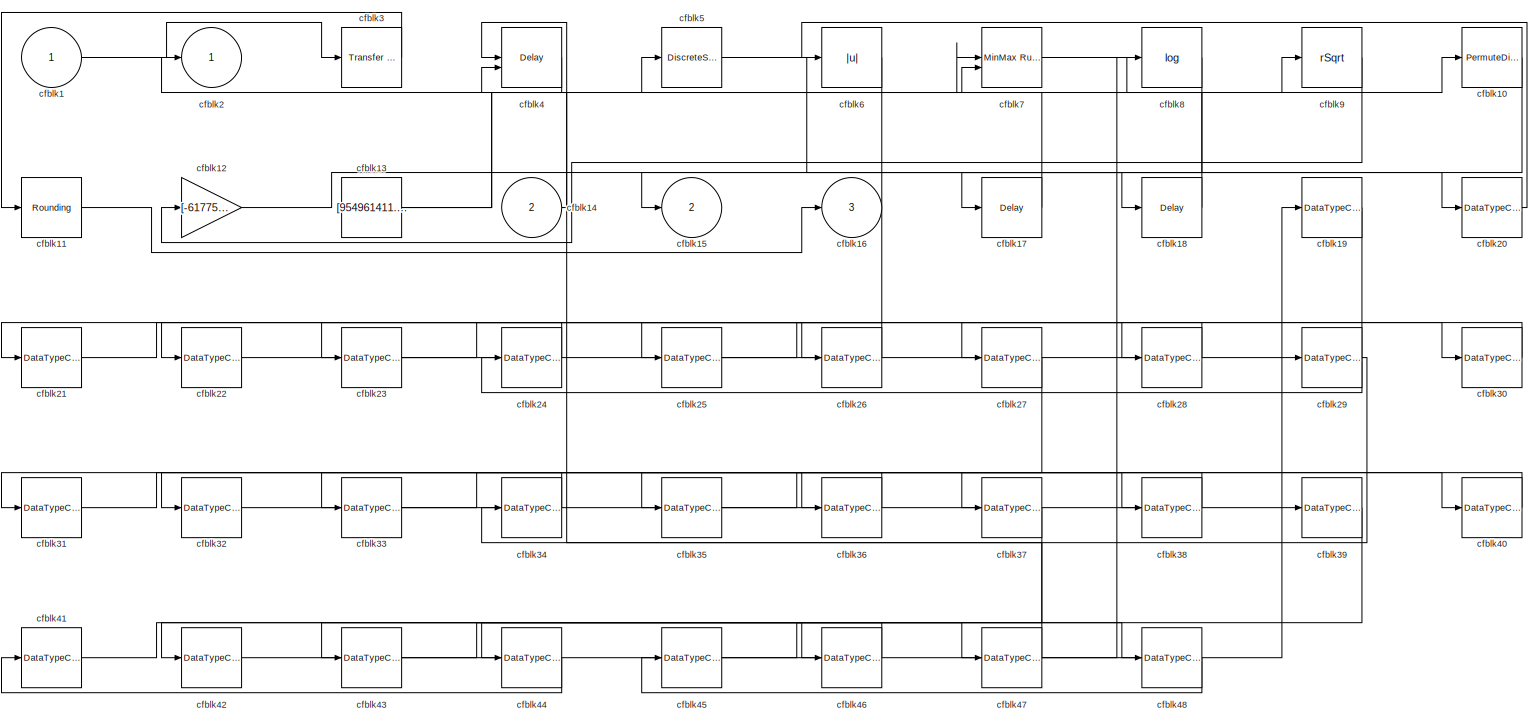
[diagram: cfblk78/cfblk8 - part 1/1, most of the canvas]
BLOCK [SubSystem] cfblk78/cfblk8
BLOCK [Inport] cfblk78/cfblk8/cfblk1
BLOCK [PermuteDimensions] cfblk78/cfblk8/cfblk10
BLOCK [Rounding] cfblk78/cfblk8/cfblk11
BLOCK [Gain] cfblk78/cfblk8/cfblk12
  Gain = [-617755505.765412]
BLOCK [Constant] cfblk78/cfblk8/cfblk13
  SampleTime = 1
  Value = [954961411.671861]
BLOCK [Inport] cfblk78/cfblk8/cfblk14
  Port = 2
BLOCK [Outport] cfblk78/cfblk8/cfblk15
  Port = 2
BLOCK [Outport] cfblk78/cfblk8/cfblk16
  Port = 3
BLOCK [Delay] cfblk78/cfblk8/cfblk17
  InputPortMap = u0
  SampleTime = 1
BLOCK [Delay] cfblk78/cfblk8/cfblk18
  InputPortMap = u0
  SampleTime = 1
BLOCK [DataTypeConversion] cfblk78/cfblk8/cfblk19
  RndMeth = Floor
  SaturateOnIntegerOverflow = off
BLOCK [Outport] cfblk78/cfblk8/cfblk2
BLOCK [DataTypeConversion] cfblk78/cfblk8/cfblk20
  RndMeth = Floor
  SaturateOnIntegerOverflow = off
BLOCK [DataTypeConversion] cfblk78/cfblk8/cfblk21
  RndMeth = Floor
  SaturateOnIntegerOverflow = off
BLOCK [DataTypeConversion] cfblk78/cfblk8/cfblk22
  RndMeth = Floor
  SaturateOnIntegerOverflow = off
BLOCK [DataTypeConversion] cfblk78/cfblk8/cfblk23
  RndMeth = Floor
  SaturateOnIntegerOverflow = off
BLOCK [DataTypeConversion] cfblk78/cfblk8/cfblk24
  RndMeth = Floor
  SaturateOnIntegerOverflow = off
BLOCK [DataTypeConversion] cfblk78/cfblk8/cfblk25
  RndMeth = Floor
  SaturateOnIntegerOverflow = off
BLOCK [DataTypeConversion] cfblk78/cfblk8/cfblk26
  RndMeth = Floor
  SaturateOnIntegerOverflow = off
BLOCK [DataTypeConversion] cfblk78/cfblk8/cfblk27
  RndMeth = Floor
  SaturateOnIntegerOverflow = off
BLOCK [DataTypeConversion] cfblk78/cfblk8/cfblk28
  RndMeth = Floor
  SaturateOnIntegerOverflow = off
BLOCK [DataTypeConversion] cfblk78/cfblk8/cfblk29
  RndMeth = Floor
  SaturateOnIntegerOverflow = off
BLOCK [Reference] cfblk78/cfblk8/cfblk3  REF=simulink/Discrete/Transfer Fcn
First Order
  SourceBlock = simulink/Discrete/Transfer Fcn\nFirst Order
  SourceType = First Order Transfer Fcn
BLOCK [DataTypeConversion] cfblk78/cfblk8/cfblk30
  RndMeth = Floor
  SaturateOnIntegerOverflow = off
BLOCK [DataTypeConversion] cfblk78/cfblk8/cfblk31
  RndMeth = Floor
  SaturateOnIntegerOverflow = off
BLOCK [DataTypeConversion] cfblk78/cfblk8/cfblk32
  RndMeth = Floor
  SaturateOnIntegerOverflow = off
BLOCK [DataTypeConversion] cfblk78/cfblk8/cfblk33
  RndMeth = Floor
  SaturateOnIntegerOverflow = off
BLOCK [DataTypeConversion] cfblk78/cfblk8/cfblk34
  RndMeth = Floor
  SaturateOnIntegerOverflow = off
BLOCK [DataTypeConversion] cfblk78/cfblk8/cfblk35
  RndMeth = Floor
  SaturateOnIntegerOverflow = off
BLOCK [DataTypeConversion] cfblk78/cfblk8/cfblk36
  RndMeth = Floor
  SaturateOnIntegerOverflow = off
BLOCK [DataTypeConversion] cfblk78/cfblk8/cfblk37
  RndMeth = Floor
  SaturateOnIntegerOverflow = off
BLOCK [DataTypeConversion] cfblk78/cfblk8/cfblk38
  RndMeth = Floor
  SaturateOnIntegerOverflow = off
BLOCK [DataTypeConversion] cfblk78/cfblk8/cfblk39
  RndMeth = Floor
  SaturateOnIntegerOverflow = off
BLOCK [Delay] cfblk78/cfblk8/cfblk4
  DelayLengthSource = Input port
  InputPortMap = u0,p1
  SampleTime = 1
BLOCK [DataTypeConversion] cfblk78/cfblk8/cfblk40
  RndMeth = Floor
  SaturateOnIntegerOverflow = off
BLOCK [DataTypeConversion] cfblk78/cfblk8/cfblk41
  RndMeth = Floor
  SaturateOnIntegerOverflow = off
BLOCK [DataTypeConversion] cfblk78/cfblk8/cfblk42
  RndMeth = Floor
  SaturateOnIntegerOverflow = off
BLOCK [DataTypeConversion] cfblk78/cfblk8/cfblk43
  RndMeth = Floor
  SaturateOnIntegerOverflow = off
BLOCK [DataTypeConversion] cfblk78/cfblk8/cfblk44
  RndMeth = Floor
  SaturateOnIntegerOverflow = off
BLOCK [DataTypeConversion] cfblk78/cfblk8/cfblk45
  RndMeth = Floor
  SaturateOnIntegerOverflow = off
BLOCK [DataTypeConversion] cfblk78/cfblk8/cfblk46
  RndMeth = Floor
  SaturateOnIntegerOverflow = off
BLOCK [DataTypeConversion] cfblk78/cfblk8/cfblk47
  RndMeth = Floor
  SaturateOnIntegerOverflow = off
BLOCK [DataTypeConversion] cfblk78/cfblk8/cfblk48
  RndMeth = Floor
  SaturateOnIntegerOverflow = off
BLOCK [DiscreteStateSpace] cfblk78/cfblk8/cfblk5
BLOCK [Abs] cfblk78/cfblk8/cfblk6
  SaturateOnIntegerOverflow = off
BLOCK [Reference] cfblk78/cfblk8/cfblk7  REF=simulink/Math
Operations/MinMax
Running
Resettable
  SourceBlock = simulink/Math\nOperations/MinMax\nRunning\nResettable
  SourceType = MinMax Running Resettable
BLOCK [Math] cfblk78/cfblk8/cfblk8
  Operator = log
BLOCK [Sqrt] cfblk78/cfblk8/cfblk9
  AlgorithmType = Newton-Raphson
  Operator = rSqrt
BLOCK [Inport] cfblk78/cfblk9
  Port = 2
BLOCK [SubSystem] cfblk79
BLOCK [Inport] cfblk79/cfblk1
BLOCK [Constant] cfblk79/cfblk10
  SampleTime = 1
  Value = [-37990502.760676]
BLOCK [Constant] cfblk79/cfblk11
  SampleTime = 1
  Value = [-533394616.075941]
BLOCK [SubSystem] cfblk79/cfblk12
BLOCK [Inport] cfblk79/cfblk12/cfblk1
BLOCK [Outport] cfblk79/cfblk12/cfblk2
BLOCK [Reference] cfblk79/cfblk12/cfblk3  REF=simulink/Discrete/Transfer Fcn
Real Zero
  SourceBlock = simulink/Discrete/Transfer Fcn\nReal Zero
  SourceType = Transfer Fcn Real Zero
BLOCK [ComplexToMagnitudeAngle] cfblk79/cfblk12/cfblk4
BLOCK [ComplexToMagnitudeAngle] cfblk79/cfblk12/cfblk5
BLOCK [Sum] cfblk79/cfblk12/cfblk6
  IconShape = rectangular
  Inputs = --
BLOCK [Outport] cfblk79/cfblk12/cfblk7
  Port = 2
BLOCK [Delay] cfblk79/cfblk12/cfblk8
  InputPortMap = u0
  SampleTime = 1
BLOCK [Inport] cfblk79/cfblk13
  Port = 2
BLOCK [Delay] cfblk79/cfblk14
  InputPortMap = u0
  SampleTime = 1
BLOCK [Outport] cfblk79/cfblk2
BLOCK [DiscreteZeroPole] cfblk79/cfblk3
  Gain = 1
  Poles = [0 0.5]
BLOCK [Reference] cfblk79/cfblk4  REF=simulink/Discrete/Difference
  SourceBlock = simulink/Discrete/Difference
  SourceType = Difference
BLOCK [DiscreteStateSpace] cfblk79/cfblk5
BLOCK [Reference] cfblk79/cfblk6  REF=simulink/Discrete/Tapped Delay
  SourceBlock = simulink/Discrete/Tapped Delay
  SourceType = Tapped Delay Line
BLOCK [ComplexToMagnitudeAngle] cfblk79/cfblk7
BLOCK [Sum] cfblk79/cfblk8
  IconShape = rectangular
  Inputs = +-
BLOCK [Reference] cfblk79/cfblk9  REF=simulink/Math
Operations/MinMax
Running
Resettable
  SourceBlock = simulink/Math\nOperations/MinMax\nRunning\nResettable
  SourceType = MinMax Running Resettable
BLOCK [Reference] cfblk8  REF=slpidlib/PID Controller (2DOF)
  LibrarySourceBlock = simulink/Discrete/Discrete PID Controller (2DOF)
  SourceBlock = slpidlib/PID Controller (2DOF)
  SourceType = PID 2dof
BLOCK [SubSystem] cfblk80
BLOCK [Inport] cfblk80/cfblk1
BLOCK [Inport] cfblk80/cfblk10
  Port = 2
BLOCK [Outport] cfblk80/cfblk11
  Port = 2
BLOCK [Delay] cfblk80/cfblk12
  InputPortMap = u0
  SampleTime = 1
BLOCK [Delay] cfblk80/cfblk13
  InputPortMap = u0
  SampleTime = 1
BLOCK [Delay] cfblk80/cfblk14
  InputPortMap = u0
  SampleTime = 1
BLOCK [Outport] cfblk80/cfblk2
BLOCK [DiscreteTransferFcn] cfblk80/cfblk3
  InputPortMap = u0
  SampleTime = 1
BLOCK [Rounding] cfblk80/cfblk4
BLOCK [Sqrt] cfblk80/cfblk5
BLOCK [SubSystem] cfblk80/cfblk6
BLOCK [Inport] cfblk80/cfblk6/cfblk1
BLOCK [Constant] cfblk80/cfblk6/cfblk10
  SampleTime = 1
  Value = [956331216.469066]
BLOCK [Outport] cfblk80/cfblk6/cfblk11
  Port = 2
BLOCK [Delay] cfblk80/cfblk6/cfblk12
  InputPortMap = u0
  SampleTime = 1
BLOCK [Outport] cfblk80/cfblk6/cfblk2
BLOCK [Delay] cfblk80/cfblk6/cfblk3
  DelayLengthSource = Input port
  InputPortMap = u0,p1
  SampleTime = 1
BLOCK [Sum] cfblk80/cfblk6/cfblk4
  IconShape = rectangular
  Inputs = +
BLOCK [Sum] cfblk80/cfblk6/cfblk5
  IconShape = rectangular
  Inputs = +
BLOCK [Abs] cfblk80/cfblk6/cfblk6
  SaturateOnIntegerOverflow = off
BLOCK [Sum] cfblk80/cfblk6/cfblk7
  Inputs = |++
BLOCK [Sqrt] cfblk80/cfblk6/cfblk8
BLOCK [Assignment] cfblk80/cfblk6/cfblk9
  DiagnosticForDimensions = Warning
  IndexOptions = Index vector (dialog)
  Indices = 1
  OutputSizes = 1
BLOCK [SubSystem] cfblk80/cfblk7
BLOCK [Inport] cfblk80/cfblk7/cfblk1
BLOCK [Delay] cfblk80/cfblk7/cfblk10
  InputPortMap = u0
  SampleTime = 1
BLOCK [Outport] cfblk80/cfblk7/cfblk2
BLOCK [Reference] cfblk80/cfblk7/cfblk3  REF=simulink/Discrete/Transfer Fcn
Real Zero
  SourceBlock = simulink/Discrete/Transfer Fcn\nReal Zero
  SourceType = Transfer Fcn Real Zero
BLOCK [DiscreteZeroPole] cfblk80/cfblk7/cfblk4
  Gain = 1
  Poles = [0 0.5]
BLOCK [Delay] cfblk80/cfblk7/cfblk5
  InputPortMap = u0
  SampleTime = 1
BLOCK [Sum] cfblk80/cfblk7/cfblk6
  IconShape = rectangular
  Inputs = +
BLOCK [Sum] cfblk80/cfblk7/cfblk7
  IconShape = rectangular
  Inputs = +
BLOCK [Constant] cfblk80/cfblk7/cfblk8
  SampleTime = 1
  Value = [-3888514.740939]
BLOCK [Inport] cfblk80/cfblk7/cfblk9
  Port = 2
BLOCK [SubSystem] cfblk80/cfblk8
BLOCK [Inport] cfblk80/cfblk8/cfblk1
BLOCK [Inport] cfblk80/cfblk8/cfblk10
  Port = 3
BLOCK [Outport] cfblk80/cfblk8/cfblk11
  Port = 2
BLOCK [Outport] cfblk80/cfblk8/cfblk12
  Port = 3
BLOCK [Outport] cfblk80/cfblk8/cfblk2
BLOCK [Reference] cfblk80/cfblk8/cfblk3  REF=slpidlib/PID Controller (2DOF)
  LibrarySourceBlock = simulink/Discrete/Discrete PID Controller (2DOF)
  SourceBlock = slpidlib/PID Controller (2DOF)
  SourceType = PID 2dof
BLOCK [Delay] cfblk80/cfblk8/cfblk4
  DelayLengthSource = Input port
  InputPortMap = u0,p1
  SampleTime = 1
BLOCK [Sum] cfblk80/cfblk8/cfblk5
  IconShape = rectangular
  Inputs = +
BLOCK [MinMax] cfblk80/cfblk8/cfblk6
  Function = max
  Inputs = 3
BLOCK [Product] cfblk80/cfblk8/cfblk7
  Inputs = *
BLOCK [Constant] cfblk80/cfblk8/cfblk8
  SampleTime = 1
  Value = [999994514.434890]
BLOCK [Inport] cfblk80/cfblk8/cfblk9
  Port = 2
BLOCK [SubSystem] cfblk80/cfblk9
BLOCK [Inport] cfblk80/cfblk9/cfblk1
BLOCK [Constant] cfblk80/cfblk9/cfblk10
  SampleTime = 1
  Value = [680607672.793325]
BLOCK [Constant] cfblk80/cfblk9/cfblk11
  SampleTime = 1
  Value = [263129341.713534]
BLOCK [Inport] cfblk80/cfblk9/cfblk12
  Port = 2
BLOCK [Inport] cfblk80/cfblk9/cfblk13
  Port = 3
BLOCK [Outport] cfblk80/cfblk9/cfblk2
BLOCK [PropagationDelay] cfblk80/cfblk9/cfblk3
  SampleTime = 1
BLOCK [UnaryMinus] cfblk80/cfblk9/cfblk4
BLOCK [Sqrt] cfblk80/cfblk9/cfblk5
BLOCK [Signum] cfblk80/cfblk9/cfblk6
BLOCK [PermuteDimensions] cfblk80/cfblk9/cfblk7
BLOCK [Trigonometry] cfblk80/cfblk9/cfblk8
BLOCK [Constant] cfblk80/cfblk9/cfblk9
  SampleTime = 1
  Value = [217539892.668750]
BLOCK [SubSystem] cfblk81
BLOCK [Inport] cfblk81/cfblk1
BLOCK [SubSystem] cfblk81/cfblk10
BLOCK [Inport] cfblk81/cfblk10/cfblk1
BLOCK [Outport] cfblk81/cfblk10/cfblk2
BLOCK [MinMax] cfblk81/cfblk10/cfblk3
  Inputs = 3
BLOCK [Sum] cfblk81/cfblk10/cfblk4
  IconShape = rectangular
  Inputs = -+
BLOCK [Sqrt] cfblk81/cfblk10/cfblk5
  AlgorithmType = Newton-Raphson
  Operator = rSqrt
BLOCK [Inport] cfblk81/cfblk10/cfblk6
  Port = 2
BLOCK [Outport] cfblk81/cfblk10/cfblk7
  Port = 2
BLOCK [SubSystem] cfblk81/cfblk11
BLOCK [Inport] cfblk81/cfblk11/cfblk1
BLOCK [Inport] cfblk81/cfblk11/cfblk10
  Port = 4
BLOCK [Outport] cfblk81/cfblk11/cfblk11
  Port = 2
BLOCK [Outport] cfblk81/cfblk11/cfblk2
BLOCK [Reference] cfblk81/cfblk11/cfblk3  REF=simulink/Discrete/Transfer Fcn
Lead or Lag
  SourceBlock = simulink/Discrete/Transfer Fcn\nLead or Lag
  SourceType = Lead or Lag Compensator
BLOCK [Assignment] cfblk81/cfblk11/cfblk4
  DiagnosticForDimensions = Warning
  IndexOptions = Index vector (dialog)
  Indices = 1
  OutputSizes = 1
BLOCK [ComplexToRealImag] cfblk81/cfblk11/cfblk5
BLOCK [Bias] cfblk81/cfblk11/cfblk6
  Bias = [8664871.233920]
  SaturateOnIntegerOverflow = off
BLOCK [Rounding] cfblk81/cfblk11/cfblk7
BLOCK [Inport] cfblk81/cfblk11/cfblk8
  Port = 2
BLOCK [Inport] cfblk81/cfblk11/cfblk9
  Port = 3
BLOCK [SubSystem] cfblk81/cfblk12
BLOCK [Inport] cfblk81/cfblk12/cfblk1
BLOCK [Sum] cfblk81/cfblk12/cfblk10
  IconShape = rectangular
  Inputs = +-
BLOCK [UnaryMinus] cfblk81/cfblk12/cfblk11
BLOCK [Product] cfblk81/cfblk12/cfblk12
BLOCK [Product] cfblk81/cfblk12/cfblk13
BLOCK [Sum] cfblk81/cfblk12/cfblk14
  IconShape = rectangular
  Inputs = +
BLOCK [Constant] cfblk81/cfblk12/cfblk15
  SampleTime = 1
  Value = [921726423.624438]
BLOCK [Inport] cfblk81/cfblk12/cfblk16
  Port = 2
BLOCK [Inport] cfblk81/cfblk12/cfblk17
  Port = 3
BLOCK [Delay] cfblk81/cfblk12/cfblk18
  InputPortMap = u0
  SampleTime = 1
BLOCK [Delay] cfblk81/cfblk12/cfblk19
  InputPortMap = u0
  SampleTime = 1
BLOCK [Outport] cfblk81/cfblk12/cfblk2
BLOCK [DiscreteZeroPole] cfblk81/cfblk12/cfblk3
  Gain = 1
  Poles = [0 0.5]
BLOCK [DiscreteFir] cfblk81/cfblk12/cfblk4
  InputPortMap = u0
  OutputPortMap = o0
  SampleTime = 1
BLOCK [Reference] cfblk81/cfblk12/cfblk5  REF=slpidlib/PID Controller (2DOF)
  LibrarySourceBlock = simulink/Discrete/Discrete PID Controller (2DOF)
  SourceBlock = slpidlib/PID Controller (2DOF)
  SourceType = PID 2dof
BLOCK [DiscreteFilter] cfblk81/cfblk12/cfblk6
  InputPortMap = u0
  SampleTime = 1
BLOCK [Reference] cfblk81/cfblk12/cfblk7  REF=slpidlib/PID Controller (2DOF)
  LibrarySourceBlock = simulink/Discrete/Discrete PID Controller (2DOF)
  SourceBlock = slpidlib/PID Controller (2DOF)
  SourceType = PID 2dof
BLOCK [Product] cfblk81/cfblk12/cfblk8
  Inputs = *
BLOCK [DotProduct] cfblk81/cfblk12/cfblk9
  OutDataTypeStr = Inherit: Inherit via internal rule
BLOCK [SubSystem] cfblk81/cfblk13
BLOCK [Inport] cfblk81/cfblk13/cfblk1
BLOCK [Inport] cfblk81/cfblk13/cfblk10
  Port = 2
BLOCK [Inport] cfblk81/cfblk13/cfblk11
  Port = 3
BLOCK [Outport] cfblk81/cfblk13/cfblk12
  Port = 2
BLOCK [Outport] cfblk81/cfblk13/cfblk13
  Port = 3
BLOCK [Delay] cfblk81/cfblk13/cfblk14
  InputPortMap = u0
  SampleTime = 1
BLOCK [Outport] cfblk81/cfblk13/cfblk2
BLOCK [Reference] cfblk81/cfblk13/cfblk3  REF=simulink/Discrete/Transfer Fcn
First Order
  SourceBlock = simulink/Discrete/Transfer Fcn\nFirst Order
  SourceType = First Order Transfer Fcn
BLOCK [Reference] cfblk81/cfblk13/cfblk4  REF=simulink/Discrete/Transfer Fcn
First Order
  SourceBlock = simulink/Discrete/Transfer Fcn\nFirst Order
  SourceType = First Order Transfer Fcn
BLOCK [DiscreteTransferFcn] cfblk81/cfblk13/cfblk5
  InputPortMap = u0
  SampleTime = 1
BLOCK [Reference] cfblk81/cfblk13/cfblk6  REF=simulink/Discrete/Transfer Fcn
Real Zero
  SourceBlock = simulink/Discrete/Transfer Fcn\nReal Zero
  SourceType = Transfer Fcn Real Zero
BLOCK [UnaryMinus] cfblk81/cfblk13/cfblk7
BLOCK [Reshape] cfblk81/cfblk13/cfblk8
BLOCK [Squeeze] cfblk81/cfblk13/cfblk9
BLOCK [SubSystem] cfblk81/cfblk14
BLOCK [Inport] cfblk81/cfblk14/cfblk1
BLOCK [Polyval] cfblk81/cfblk14/cfblk10
  Coefs = [ +2.081618890e-019, -1.441693666e-014, +4.719686976e-010, -8.536869453e-006, +1.621573104e-001, -8.087801117e+001 ]
BLOCK [Product] cfblk81/cfblk14/cfblk11
  Inputs = **
BLOCK [PermuteDimensions] cfblk81/cfblk14/cfblk12
BLOCK [Constant] cfblk81/cfblk14/cfblk13
  SampleTime = 1
  Value = [-781974819.007084]
BLOCK [Inport] cfblk81/cfblk14/cfblk14
  Port = 2
BLOCK [Outport] cfblk81/cfblk14/cfblk15
  Port = 2
BLOCK [Outport] cfblk81/cfblk14/cfblk16
  Port = 3
BLOCK [Outport] cfblk81/cfblk14/cfblk2
BLOCK [Reference] cfblk81/cfblk14/cfblk3  REF=slpidlib/PID Controller (2DOF)
  LibrarySourceBlock = simulink/Discrete/Discrete PID Controller (2DOF)
  SourceBlock = slpidlib/PID Controller (2DOF)
  SourceType = PID 2dof
BLOCK [Reference] cfblk81/cfblk14/cfblk4  REF=simulink/Discrete/Transfer Fcn
Real Zero
  SourceBlock = simulink/Discrete/Transfer Fcn\nReal Zero
  SourceType = Transfer Fcn Real Zero
BLOCK [DiscreteZeroPole] cfblk81/cfblk14/cfblk5
  Gain = 1
  Poles = [0 0.5]
BLOCK [DiscreteStateSpace] cfblk81/cfblk14/cfblk6
BLOCK [Abs] cfblk81/cfblk14/cfblk7
  SaturateOnIntegerOverflow = off
BLOCK [Trigonometry] cfblk81/cfblk14/cfblk8
BLOCK [Math] cfblk81/cfblk14/cfblk9
  Operator = log10
BLOCK [Inport] cfblk81/cfblk15
  Port = 2
BLOCK [Outport] cfblk81/cfblk16
  Port = 2
BLOCK [Delay] cfblk81/cfblk17
  InputPortMap = u0
  SampleTime = 1
BLOCK [Delay] cfblk81/cfblk18
  InputPortMap = u0
  SampleTime = 1
BLOCK [Delay] cfblk81/cfblk19
  InputPortMap = u0
  SampleTime = 1
BLOCK [Outport] cfblk81/cfblk2
BLOCK [Delay] cfblk81/cfblk20
  InputPortMap = u0
  SampleTime = 1
BLOCK [Reference] cfblk81/cfblk3  REF=slpidlib/PID Controller
  LibrarySourceBlock = simulink/Discrete/Discrete PID Controller
  SourceBlock = slpidlib/PID Controller
  SourceType = PID 1dof
BLOCK [DiscreteIntegrator] cfblk81/cfblk4
  ICPrevOutput = DiscIntNeverNeededParam
  ICPrevScaledInput = DiscIntNeverNeededParam
  InitialConditionSetting = Auto
BLOCK [Reference] cfblk81/cfblk5  REF=simulink/Discrete/Difference
  SourceBlock = simulink/Discrete/Difference
  SourceType = Difference
BLOCK [Constant] cfblk81/cfblk6
  SampleTime = 1
  Value = [802152310.777642]
BLOCK [Constant] cfblk81/cfblk7
  SampleTime = 1
  Value = [-894359742.816678]
BLOCK [Constant] cfblk81/cfblk8
  SampleTime = 1
  Value = [-338640446.741437]
BLOCK [SubSystem] cfblk81/cfblk9
BLOCK [Inport] cfblk81/cfblk9/cfblk1
BLOCK [Delay] cfblk81/cfblk9/cfblk10
  InputPortMap = u0
  SampleTime = 1
BLOCK [Outport] cfblk81/cfblk9/cfblk2
BLOCK [Reference] cfblk81/cfblk9/cfblk3  REF=simulink/Discrete/Transfer Fcn
Lead or Lag
  SourceBlock = simulink/Discrete/Transfer Fcn\nLead or Lag
  SourceType = Lead or Lag Compensator
BLOCK [Sin] cfblk81/cfblk9/cfblk4
  SampleTime = 0
  TimeSource = Use external signal
BLOCK [Abs] cfblk81/cfblk9/cfblk5
  SaturateOnIntegerOverflow = off
BLOCK [MinMax] cfblk81/cfblk9/cfblk6
  Function = max
  Inputs = 3
BLOCK [Inport] cfblk81/cfblk9/cfblk7
  Port = 2
BLOCK [Inport] cfblk81/cfblk9/cfblk8
  Port = 3
BLOCK [Outport] cfblk81/cfblk9/cfblk9
  Port = 2
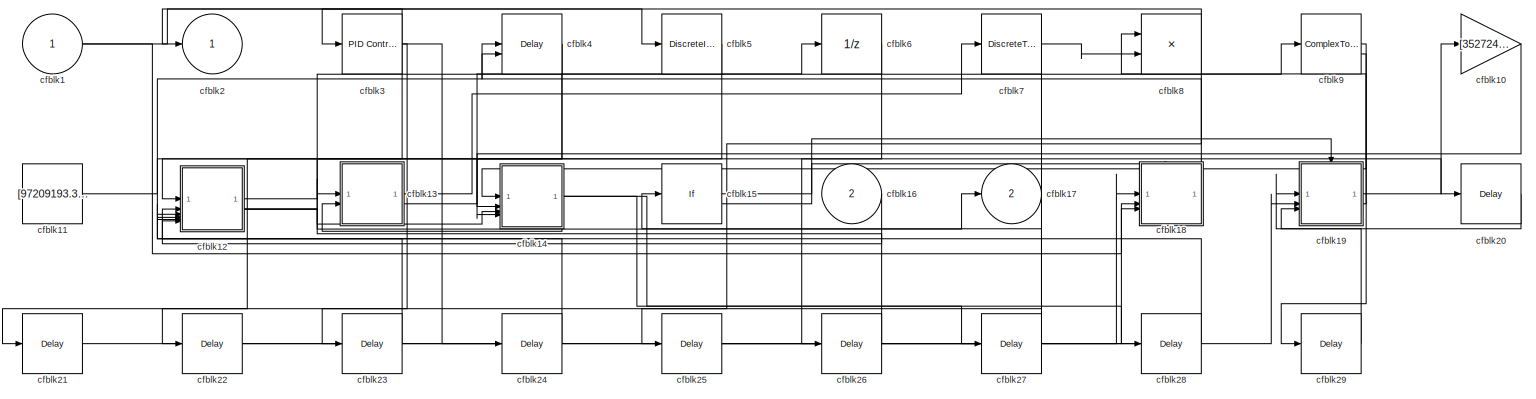
[diagram: cfblk82 - part 1/1, most of the canvas]
BLOCK [SubSystem] cfblk82
BLOCK [Inport] cfblk82/cfblk1
BLOCK [Gain] cfblk82/cfblk10
  Gain = [352724056.786082]
BLOCK [Constant] cfblk82/cfblk11
  SampleTime = 1
  Value = [97209193.302445]
BLOCK [SubSystem] cfblk82/cfblk12
BLOCK [Inport] cfblk82/cfblk12/cfblk1
BLOCK [Constant] cfblk82/cfblk12/cfblk10
  SampleTime = 1
  Value = [345707446.991535]
BLOCK [Inport] cfblk82/cfblk12/cfblk11
  Port = 2
BLOCK [Inport] cfblk82/cfblk12/cfblk12
  Port = 3
BLOCK [Inport] cfblk82/cfblk12/cfblk13
  Port = 4
BLOCK [Inport] cfblk82/cfblk12/cfblk14
  Port = 5
BLOCK [Inport] cfblk82/cfblk12/cfblk15
  Port = 6
BLOCK [Outport] cfblk82/cfblk12/cfblk16
  Port = 2
BLOCK [Outport] cfblk82/cfblk12/cfblk2
BLOCK [Delay] cfblk82/cfblk12/cfblk3
  InputPortMap = u0,e6
  SampleTime = 1
  ShowEnablePort = on
BLOCK [Reference] cfblk82/cfblk12/cfblk4  REF=simulink/Discrete/Transfer Fcn
First Order
  SourceBlock = simulink/Discrete/Transfer Fcn\nFirst Order
  SourceType = First Order Transfer Fcn
BLOCK [Reference] cfblk82/cfblk12/cfblk5  REF=slpidlib/PID Controller (2DOF)
  LibrarySourceBlock = simulink/Discrete/Discrete PID Controller (2DOF)
  SourceBlock = slpidlib/PID Controller (2DOF)
  SourceType = PID 2dof
BLOCK [Sum] cfblk82/cfblk12/cfblk6
  IconShape = rectangular
  Inputs = +-
BLOCK [Product] cfblk82/cfblk12/cfblk7
  Inputs = **
BLOCK [Product] cfblk82/cfblk12/cfblk8
BLOCK [Constant] cfblk82/cfblk12/cfblk9
  SampleTime = 1
  Value = [806755621.526693]
BLOCK [SubSystem] cfblk82/cfblk13
BLOCK [Inport] cfblk82/cfblk13/cfblk1
BLOCK [Outport] cfblk82/cfblk13/cfblk2
BLOCK [Reference] cfblk82/cfblk13/cfblk3  REF=simulink/Discrete/Transfer Fcn
First Order
  SourceBlock = simulink/Discrete/Transfer Fcn\nFirst Order
  SourceType = First Order Transfer Fcn
BLOCK [Reference] cfblk82/cfblk13/cfblk4  REF=simulink/Discrete/Transfer Fcn
Lead or Lag
  SourceBlock = simulink/Discrete/Transfer Fcn\nLead or Lag
  SourceType = Lead or Lag Compensator
BLOCK [Reference] cfblk82/cfblk13/cfblk5  REF=simulink/Math
Operations/Slider
Gain
  SourceBlock = simulink/Math\nOperations/Slider\nGain
  SourceType = Slider Gain
BLOCK [Inport] cfblk82/cfblk13/cfblk6
  Port = 2
BLOCK [Outport] cfblk82/cfblk13/cfblk7
  Port = 2
BLOCK [SubSystem] cfblk82/cfblk14
BLOCK [Inport] cfblk82/cfblk14/cfblk1
BLOCK [Delay] cfblk82/cfblk14/cfblk10
  InputPortMap = u0
  SampleTime = 1
BLOCK [Outport] cfblk82/cfblk14/cfblk2
BLOCK [Delay] cfblk82/cfblk14/cfblk3
  DelayLengthSource = Input port
  InputPortMap = u0,p1
  SampleTime = 1
BLOCK [Delay] cfblk82/cfblk14/cfblk4
  DelayLengthSource = Input port
  InputPortMap = u0,p1
  SampleTime = 1
BLOCK [Polyval] cfblk82/cfblk14/cfblk5
  Coefs = [ +2.081618890e-019, -1.441693666e-014, +4.719686976e-010, -8.536869453e-006, +1.621573104e-001, -8.087801117e+001 ]
BLOCK [Gain] cfblk82/cfblk14/cfblk6
  Gain = [424032298.343210]
BLOCK [Inport] cfblk82/cfblk14/cfblk7
  Port = 2
BLOCK [Inport] cfblk82/cfblk14/cfblk8
  Port = 3
BLOCK [Inport] cfblk82/cfblk14/cfblk9
  Port = 4
BLOCK [If] cfblk82/cfblk15
  IfExpression = u1 >= 0
  SampleTime = 1
BLOCK [Inport] cfblk82/cfblk16
  Port = 2
BLOCK [Outport] cfblk82/cfblk17
  Port = 2
BLOCK [SubSystem] cfblk82/cfblk18
  TreatAsAtomicUnit = on
BLOCK [ActionPort] cfblk82/cfblk18/Action Port
  ActionPortLabel = if(u1 >= 0)
BLOCK [Inport] cfblk82/cfblk18/cfblk1
BLOCK [Outport] cfblk82/cfblk18/cfblk2
BLOCK [Reference] cfblk82/cfblk18/cfblk3  REF=simulink/Discrete/Difference
  SourceBlock = simulink/Discrete/Difference
  SourceType = Difference
BLOCK [Reference] cfblk82/cfblk18/cfblk4  REF=slpidlib/PID Controller (2DOF)
  LibrarySourceBlock = simulink/Discrete/Discrete PID Controller (2DOF)
  SourceBlock = slpidlib/PID Controller (2DOF)
  SourceType = PID 2dof
BLOCK [Squeeze] cfblk82/cfblk18/cfblk5
BLOCK [Sum] cfblk82/cfblk18/cfblk6
  IconShape = rectangular
  Inputs = --
BLOCK [Inport] cfblk82/cfblk18/cfblk7
  Port = 2
BLOCK [Inport] cfblk82/cfblk18/cfblk8
  Port = 3
BLOCK [SubSystem] cfblk82/cfblk19
  TreatAsAtomicUnit = on
BLOCK [ActionPort] cfblk82/cfblk19/Action Port
  ActionPortLabel = else
BLOCK [Inport] cfblk82/cfblk19/cfblk1
BLOCK [Outport] cfblk82/cfblk19/cfblk2
BLOCK [Delay] cfblk82/cfblk19/cfblk3
  InputPortMap = u0
BLOCK [Reference] cfblk82/cfblk19/cfblk4  REF=slpidlib/PID Controller
  LibrarySourceBlock = simulink/Discrete/Discrete PID Controller
  SourceBlock = slpidlib/PID Controller
  SourceType = PID 1dof
BLOCK [Inport] cfblk82/cfblk19/cfblk5
  Port = 2
BLOCK [Inport] cfblk82/cfblk19/cfblk6
  Port = 3
BLOCK [Outport] cfblk82/cfblk19/cfblk7
  Port = 2
BLOCK [Outport] cfblk82/cfblk2
BLOCK [Delay] cfblk82/cfblk20
  InputPortMap = u0
  SampleTime = 1
BLOCK [Delay] cfblk82/cfblk21
  InputPortMap = u0
  SampleTime = 1
BLOCK [Delay] cfblk82/cfblk22
  InputPortMap = u0
  SampleTime = 1
BLOCK [Delay] cfblk82/cfblk23
  InputPortMap = u0
  SampleTime = 1
BLOCK [Delay] cfblk82/cfblk24
  InputPortMap = u0
  SampleTime = 1
BLOCK [Delay] cfblk82/cfblk25
  InputPortMap = u0
  SampleTime = 1
BLOCK [Delay] cfblk82/cfblk26
  InputPortMap = u0
  SampleTime = 1
BLOCK [Delay] cfblk82/cfblk27
  InputPortMap = u0
  SampleTime = 1
BLOCK [Delay] cfblk82/cfblk28
  InputPortMap = u0
  SampleTime = 1
BLOCK [Delay] cfblk82/cfblk29
  InputPortMap = u0
  SampleTime = 1
BLOCK [Reference] cfblk82/cfblk3  REF=slpidlib/PID Controller
  LibrarySourceBlock = simulink/Discrete/Discrete PID Controller
  SourceBlock = slpidlib/PID Controller
  SourceType = PID 1dof
BLOCK [Delay] cfblk82/cfblk4
  DelayLengthSource = Input port
  InputPortMap = u0,p1
  SampleTime = 1
BLOCK [DiscreteIntegrator] cfblk82/cfblk5
  ICPrevOutput = DiscIntNeverNeededParam
  ICPrevScaledInput = DiscIntNeverNeededParam
  InitialConditionSetting = Auto
BLOCK [UnitDelay] cfblk82/cfblk6
  HasFrameUpgradeWarning = on
BLOCK [DiscreteTransferFcn] cfblk82/cfblk7
  InputPortMap = u0
  SampleTime = 1
BLOCK [Product] cfblk82/cfblk8
BLOCK [ComplexToMagnitudeAngle] cfblk82/cfblk9
BLOCK [SubSystem] cfblk83
BLOCK [Inport] cfblk83/cfblk1
BLOCK [Delay] cfblk83/cfblk10
  InputPortMap = u0
  SampleTime = 1
BLOCK [Delay] cfblk83/cfblk11
  InputPortMap = u0
  SampleTime = 1
BLOCK [Delay] cfblk83/cfblk12
  InputPortMap = u0
  SampleTime = 1
BLOCK [Outport] cfblk83/cfblk2
BLOCK [Reference] cfblk83/cfblk3  REF=simulink/Discrete/Transfer Fcn
First Order
  SourceBlock = simulink/Discrete/Transfer Fcn\nFirst Order
  SourceType = First Order Transfer Fcn
BLOCK [Assignment] cfblk83/cfblk4
  DiagnosticForDimensions = Warning
  IndexOptions = Index vector (dialog)
  Indices = 1
  OutputSizes = 1
BLOCK [UnaryMinus] cfblk83/cfblk5
BLOCK [Sqrt] cfblk83/cfblk6
BLOCK [SubSystem] cfblk83/cfblk7
BLOCK [Inport] cfblk83/cfblk7/cfblk1
BLOCK [Inport] cfblk83/cfblk7/cfblk10
  Port = 3
BLOCK [Inport] cfblk83/cfblk7/cfblk11
  Port = 4
BLOCK [Inport] cfblk83/cfblk7/cfblk12
  Port = 5
BLOCK [Outport] cfblk83/cfblk7/cfblk2
BLOCK [Reference] cfblk83/cfblk7/cfblk3  REF=simulink/Discrete/Transfer Fcn
Lead or Lag
  SourceBlock = simulink/Discrete/Transfer Fcn\nLead or Lag
  SourceType = Lead or Lag Compensator
BLOCK [Reference] cfblk83/cfblk7/cfblk4  REF=simulink/Discrete/Difference
  SourceBlock = simulink/Discrete/Difference
  SourceType = Difference
BLOCK [DotProduct] cfblk83/cfblk7/cfblk5
  OutDataTypeStr = Inherit: Inherit via internal rule
BLOCK [Signum] cfblk83/cfblk7/cfblk6
BLOCK [Constant] cfblk83/cfblk7/cfblk7
  SampleTime = 1
  Value = [-754686844.111725]
BLOCK [Constant] cfblk83/cfblk7/cfblk8
  SampleTime = 1
  Value = [225282182.475113]
BLOCK [Inport] cfblk83/cfblk7/cfblk9
  Port = 2
BLOCK [SubSystem] cfblk83/cfblk8
BLOCK [Inport] cfblk83/cfblk8/cfblk1
BLOCK [Outport] cfblk83/cfblk8/cfblk2
BLOCK [Delay] cfblk83/cfblk8/cfblk3
  DelayLengthSource = Input port
  InputPortMap = u0,p1
  SampleTime = 1
BLOCK [DiscreteStateSpace] cfblk83/cfblk8/cfblk4
BLOCK [PropagationDelay] cfblk83/cfblk8/cfblk5
  SampleTime = 1
BLOCK [Abs] cfblk83/cfblk8/cfblk6
  SaturateOnIntegerOverflow = off
BLOCK [Reshape] cfblk83/cfblk8/cfblk7
BLOCK [Inport] cfblk83/cfblk8/cfblk8
  Port = 2
BLOCK [Delay] cfblk83/cfblk8/cfblk9
  InputPortMap = u0
  SampleTime = 1
BLOCK [Delay] cfblk83/cfblk9
  InputPortMap = u0
  SampleTime = 1
BLOCK [If] cfblk84
  IfExpression = u1 >= 0
  SampleTime = 1
BLOCK [SubSystem] cfblk85
  TreatAsAtomicUnit = on
BLOCK [ActionPort] cfblk85/Action Port
  ActionPortLabel = if(u1 >= 0)
BLOCK [Inport] cfblk85/cfblk1
BLOCK [Inport] cfblk85/cfblk10
  Port = 3
BLOCK [Inport] cfblk85/cfblk11
  Port = 4
BLOCK [Outport] cfblk85/cfblk12
  Port = 2
BLOCK [Delay] cfblk85/cfblk13
  InputPortMap = u0
BLOCK [Delay] cfblk85/cfblk14
  InputPortMap = u0
BLOCK [Outport] cfblk85/cfblk2
BLOCK [DiscreteFir] cfblk85/cfblk3
  InputPortMap = u0
  OutputPortMap = o0
BLOCK [DiscreteFir] cfblk85/cfblk4
  InputPortMap = u0
  OutputPortMap = o0
BLOCK [Reshape] cfblk85/cfblk5
BLOCK [SubSystem] cfblk85/cfblk6
BLOCK [Inport] cfblk85/cfblk6/cfblk1
BLOCK [Inport] cfblk85/cfblk6/cfblk10
  Port = 2
BLOCK [Inport] cfblk85/cfblk6/cfblk11
  Port = 3
BLOCK [Inport] cfblk85/cfblk6/cfblk12
  Port = 4
BLOCK [Outport] cfblk85/cfblk6/cfblk13
  Port = 2
BLOCK [Delay] cfblk85/cfblk6/cfblk14
  InputPortMap = u0
BLOCK [Outport] cfblk85/cfblk6/cfblk2
BLOCK [UnitDelay] cfblk85/cfblk6/cfblk3
  HasFrameUpgradeWarning = on
  SampleTime = -1
BLOCK [Polyval] cfblk85/cfblk6/cfblk4
  Coefs = [ +2.081618890e-019, -1.441693666e-014, +4.719686976e-010, -8.536869453e-006, +1.621573104e-001, -8.087801117e+001 ]
BLOCK [Sqrt] cfblk85/cfblk6/cfblk5
BLOCK [PermuteDimensions] cfblk85/cfblk6/cfblk6
BLOCK [Sum] cfblk85/cfblk6/cfblk7
  IconShape = rectangular
  Inputs = +-
BLOCK [Sum] cfblk85/cfblk6/cfblk8
  Inputs = |++
BLOCK [Constant] cfblk85/cfblk6/cfblk9
  SampleTime = 1
  Value = [970697430.648301]
BLOCK [SubSystem] cfblk85/cfblk7
BLOCK [Inport] cfblk85/cfblk7/cfblk1
BLOCK [Outport] cfblk85/cfblk7/cfblk2
BLOCK [UnaryMinus] cfblk85/cfblk7/cfblk3
BLOCK [Sum] cfblk85/cfblk7/cfblk4
  IconShape = rectangular
  Inputs = +-
BLOCK [Inport] cfblk85/cfblk7/cfblk5
  Port = 2
BLOCK [Inport] cfblk85/cfblk7/cfblk6
  Port = 3
BLOCK [Outport] cfblk85/cfblk7/cfblk7
  Port = 2
BLOCK [SubSystem] cfblk85/cfblk8
BLOCK [Inport] cfblk85/cfblk8/cfblk1
BLOCK [Inport] cfblk85/cfblk8/cfblk10
  Port = 2
BLOCK [Outport] cfblk85/cfblk8/cfblk11
  Port = 2
BLOCK [Outport] cfblk85/cfblk8/cfblk12
  Port = 3
BLOCK [Delay] cfblk85/cfblk8/cfblk13
  InputPortMap = u0
BLOCK [Delay] cfblk85/cfblk8/cfblk14
  InputPortMap = u0
BLOCK [Outport] cfblk85/cfblk8/cfblk2
BLOCK [DiscreteIntegrator] cfblk85/cfblk8/cfblk3
  ICPrevOutput = DiscIntNeverNeededParam
  ICPrevScaledInput = DiscIntNeverNeededParam
  InitialConditionSetting = Auto
  SampleTime = -1
BLOCK [Delay] cfblk85/cfblk8/cfblk4
  DelayLengthSource = Input port
  InputPortMap = u0,p1
BLOCK [DiscreteIntegrator] cfblk85/cfblk8/cfblk5
  ICPrevOutput = DiscIntNeverNeededParam
  ICPrevScaledInput = DiscIntNeverNeededParam
  InitialConditionSetting = Auto
  SampleTime = -1
BLOCK [Product] cfblk85/cfblk8/cfblk6
BLOCK [Signum] cfblk85/cfblk8/cfblk7
BLOCK [Rounding] cfblk85/cfblk8/cfblk8
BLOCK [Constant] cfblk85/cfblk8/cfblk9
  SampleTime = 1
  Value = [715463942.614666]
BLOCK [Inport] cfblk85/cfblk9
  Port = 2
BLOCK [SubSystem] cfblk86
  TreatAsAtomicUnit = on
BLOCK [ActionPort] cfblk86/Action Port
  ActionPortLabel = else
BLOCK [Inport] cfblk86/cfblk1
BLOCK [Outport] cfblk86/cfblk2
BLOCK [DiscreteIntegrator] cfblk86/cfblk3
  ICPrevOutput = DiscIntNeverNeededParam
  ICPrevScaledInput = DiscIntNeverNeededParam
  InitialConditionSetting = Auto
  SampleTime = -1
BLOCK [DiscreteZeroPole] cfblk86/cfblk4
  Gain = 1
  Poles = [0 0.5]
  SampleTime = -1
BLOCK [Constant] cfblk86/cfblk5
  SampleTime = 1
  Value = [724077038.261863]
BLOCK [SubSystem] cfblk86/cfblk6
BLOCK [Inport] cfblk86/cfblk6/cfblk1
BLOCK [Inport] cfblk86/cfblk6/cfblk10
  Port = 4
BLOCK [Inport] cfblk86/cfblk6/cfblk11
  Port = 5
BLOCK [Inport] cfblk86/cfblk6/cfblk12
  Port = 6
BLOCK [Outport] cfblk86/cfblk6/cfblk13
  Port = 2
BLOCK [Outport] cfblk86/cfblk6/cfblk2
BLOCK [Reference] cfblk86/cfblk6/cfblk3  REF=slpidlib/PID Controller
  LibrarySourceBlock = simulink/Discrete/Discrete PID Controller
  SourceBlock = slpidlib/PID Controller
  SourceType = PID 1dof
BLOCK [Sum] cfblk86/cfblk6/cfblk4
  Inputs = |++
BLOCK [Gain] cfblk86/cfblk6/cfblk5
  Gain = [-72229435.906126]
BLOCK [Constant] cfblk86/cfblk6/cfblk6
  SampleTime = 1
  Value = [804152371.019318]
BLOCK [Constant] cfblk86/cfblk6/cfblk7
  SampleTime = 1
  Value = [-638234997.274083]
BLOCK [Inport] cfblk86/cfblk6/cfblk8
  Port = 2
BLOCK [Inport] cfblk86/cfblk6/cfblk9
  Port = 3
BLOCK [Inport] cfblk86/cfblk7
  Port = 2
BLOCK [Delay] cfblk86/cfblk8
  InputPortMap = u0
BLOCK [Delay] cfblk86/cfblk9
  InputPortMap = u0
BLOCK [Delay] cfblk87
  InputPortMap = u0
  SampleTime = 1
BLOCK [Delay] cfblk88
  InputPortMap = u0
  SampleTime = 1
BLOCK [Delay] cfblk89
  InputPortMap = u0
  SampleTime = 1
BLOCK [PropagationDelay] cfblk9
  SampleTime = 1
BLOCK [Delay] cfblk90
  InputPortMap = u0
  SampleTime = 1
BLOCK [Delay] cfblk91
  InputPortMap = u0
  SampleTime = 1
BLOCK [Delay] cfblk92
  InputPortMap = u0
  SampleTime = 1
BLOCK [Delay] cfblk93
  InputPortMap = u0
  SampleTime = 1
LINE cfblk10:1 -> cfblk67:1
NET cfblk11:1 -> cfblk42:1, cfblk86:2
LINE cfblk12:1 -> cfblk69:1
NET cfblk13:1 -> cfblk71:1, cfblk71:3, cfblk87:1
NET cfblk14:1 -> cfblk78:4, cfblk90:1
LINE cfblk15:1 -> cfblk79:2
LINE cfblk16:1 -> cfblk2:1
LINE cfblk17:1 -> cfblk29:1
NET cfblk18:1 -> cfblk68:4, cfblk79:1
LINE cfblk19:1 -> cfblk74:1
NET cfblk1:1 -> cfblk22:1, cfblk68:2
LINE cfblk20:1 -> cfblk30:2
LINE cfblk21:1 -> cfblk92:1
LINE cfblk22:1 -> cfblk30:1
LINE cfblk23:1 -> cfblk26:1
LINE cfblk24:1 -> cfblk12:1
NET cfblk24:2 -> cfblk6:1, cfblk82:1
LINE cfblk25:1 -> cfblk85:1
NET cfblk26:1 -> cfblk19:1, cfblk81:1, cfblk93:1
LINE cfblk27:1 -> cfblk41:1
NET cfblk27:2 -> cfblk69:2, cfblk78:7
LINE cfblk28:1 -> cfblk9:1
LINE cfblk29:1 -> cfblk80:1
NET cfblk2:1 -> cfblk13:1, cfblk77:2
LINE cfblk30:1 -> cfblk67:3
LINE cfblk31:1 -> cfblk82:2
LINE cfblk3:1 -> cfblk67:2
NET cfblk48:1 -> cfblk66:1, cfblk67:5
LINE cfblk49:1 -> cfblk86:1
LINE cfblk4:1 -> cfblk78:2
LINE cfblk50:1 -> cfblk40:1
LINE cfblk51:1 -> cfblk45:1
LINE cfblk52:1 -> cfblk33:1
LINE cfblk53:1 -> cfblk10:1
LINE cfblk54:1 -> cfblk37:1
LINE cfblk55:1 -> cfblk85:4
NET cfblk56:1 -> cfblk46:1, cfblk5:1
LINE cfblk57:1 -> cfblk76:2
NET cfblk58:1 -> cfblk41:2, cfblk71:2
LINE cfblk59:1 -> cfblk24:1
NET cfblk5:1 -> cfblk35:1, cfblk81:2
LINE cfblk60:1 -> cfblk85:3
LINE cfblk61:1 -> cfblk75:1
LINE cfblk62:1 -> cfblk4:1
LINE cfblk63:1 -> cfblk18:1
NET cfblk64:1 -> cfblk78:3, cfblk78:6, cfblk80:2
NET cfblk65:1 -> cfblk68:5, cfblk76:1
LINE cfblk66/cfblk10:1 -> cfblk66/cfblk19:1
NET cfblk66/cfblk11:1 -> cfblk66/cfblk14:2, cfblk66/cfblk15:4
LINE cfblk66/cfblk12:1 -> cfblk66/cfblk14:4
LINE cfblk66/cfblk13/cfblk1:1 -> cfblk66/cfblk13/cfblk4:1
LINE cfblk66/cfblk13/cfblk3:1 -> cfblk66/cfblk13/cfblk2:1
LINE cfblk66/cfblk13/cfblk4:1 -> cfblk66/cfblk13/cfblk7:1
LINE cfblk66/cfblk13/cfblk5:1 -> cfblk66/cfblk13/cfblk3:1
LINE cfblk66/cfblk13/cfblk6:1 -> cfblk66/cfblk13/cfblk5:1
LINE cfblk66/cfblk13:1 -> cfblk66/cfblk7:1
NET cfblk66/cfblk13:2 -> cfblk66/cfblk14:3, cfblk66/cfblk24:1
LINE cfblk66/cfblk14/cfblk1:1 -> cfblk66/cfblk14/cfblk2:1
LINE cfblk66/cfblk14/cfblk4:1 -> cfblk66/cfblk14/cfblk9:1
LINE cfblk66/cfblk14/cfblk5:1 -> cfblk66/cfblk14/cfblk4:1
LINE cfblk66/cfblk14/cfblk8:1 -> cfblk66/cfblk14/cfblk3:1
LINE cfblk66/cfblk14:1 -> cfblk66/cfblk15:1
NET cfblk66/cfblk14:2 -> cfblk66/cfblk15:3, cfblk66/cfblk17:1
LINE cfblk66/cfblk15/cfblk10:1 -> cfblk66/cfblk15/cfblk4:1
LINE cfblk66/cfblk15/cfblk11:1 -> cfblk66/cfblk15/cfblk8:1
LINE cfblk66/cfblk15/cfblk13:1 -> cfblk66/cfblk15/cfblk7:1
LINE cfblk66/cfblk15/cfblk14:1 -> cfblk66/cfblk15/cfblk2:1
LINE cfblk66/cfblk15/cfblk1:1 -> cfblk66/cfblk15/cfblk3:1
LINE cfblk66/cfblk15/cfblk5:1 -> cfblk66/cfblk15/cfblk16:1
LINE cfblk66/cfblk15/cfblk6:1 -> cfblk66/cfblk15/cfblk9:1
LINE cfblk66/cfblk15/cfblk6:2 -> cfblk66/cfblk15/cfblk10:1
LINE cfblk66/cfblk15/cfblk8:1 -> cfblk66/cfblk15/cfblk6:1
LINE cfblk66/cfblk15/cfblk9:1 -> cfblk66/cfblk15/cfblk5:1
LINE cfblk66/cfblk15:1 -> cfblk66/cfblk2:1
LINE cfblk66/cfblk15:2 -> cfblk66/cfblk3:1
LINE cfblk66/cfblk16:1 -> cfblk66/cfblk18:ifaction
LINE cfblk66/cfblk16:2 -> cfblk66/cfblk19:ifaction
LINE cfblk66/cfblk18/cfblk1:1 -> cfblk66/cfblk18/cfblk4:1
LINE cfblk66/cfblk18/cfblk4:1 -> cfblk66/cfblk18/cfblk5:1
LINE cfblk66/cfblk18/cfblk5:1 -> cfblk66/cfblk18/cfblk2:1
LINE cfblk66/cfblk18/cfblk8:1 -> cfblk66/cfblk18/cfblk3:1
LINE cfblk66/cfblk18:1 -> cfblk66/cfblk4:1
LINE cfblk66/cfblk19/cfblk1:1 -> cfblk66/cfblk19/cfblk4:1
LINE cfblk66/cfblk19/cfblk3:1 -> cfblk66/cfblk19/cfblk2:1
LINE cfblk66/cfblk19/cfblk3:2 -> cfblk66/cfblk19/cfblk8:1
NET cfblk66/cfblk19/cfblk4:1 -> cfblk66/cfblk19/cfblk3:1, cfblk66/cfblk19/cfblk6:1
LINE cfblk66/cfblk19/cfblk5:1 -> cfblk66/cfblk19/cfblk7:1
LINE cfblk66/cfblk19/cfblk8:1 -> cfblk66/cfblk19/cfblk4:2
LINE cfblk66/cfblk19:1 -> cfblk66/cfblk18:2
LINE cfblk66/cfblk19:2 -> cfblk66/cfblk18:4
LINE cfblk66/cfblk19:3 -> cfblk66/cfblk13:2
LINE cfblk66/cfblk1:1 -> cfblk66/cfblk18:3
LINE cfblk66/cfblk20:1 -> cfblk66/cfblk7:2
LINE cfblk66/cfblk21:1 -> cfblk66/cfblk18:1
LINE cfblk66/cfblk22:1 -> cfblk66/cfblk18:5
LINE cfblk66/cfblk23:1 -> cfblk66/cfblk15:2
LINE cfblk66/cfblk24:1 -> cfblk66/cfblk18:6
NET cfblk66/cfblk3:1 -> cfblk66/cfblk23:1, cfblk66/cfblk5:1
LINE cfblk66/cfblk4:1 -> cfblk66/cfblk13:1
NET cfblk66/cfblk5:1 -> cfblk66/cfblk21:1, cfblk66/cfblk22:1
LINE cfblk66/cfblk6:1 -> cfblk66/cfblk20:1
LINE cfblk66/cfblk7:1 -> cfblk66/cfblk6:1
LINE cfblk66/cfblk8:1 -> cfblk66/cfblk16:1
LINE cfblk66/cfblk9:1 -> cfblk66/cfblk14:1
LINE cfblk66:1 -> cfblk25:1
LINE cfblk66:2 -> cfblk31:1
LINE cfblk67/cfblk10/cfblk1:1 -> cfblk67/cfblk10/cfblk6:1
LINE cfblk67/cfblk10/cfblk3:1 -> cfblk67/cfblk10/cfblk2:1
LINE cfblk67/cfblk10/cfblk4:1 -> cfblk67/cfblk10/cfblk5:1
LINE cfblk67/cfblk10/cfblk5:1 -> cfblk67/cfblk10/cfblk3:1
LINE cfblk67/cfblk10/cfblk7:1 -> cfblk67/cfblk10/cfblk10:1
LINE cfblk67/cfblk10/cfblk8:1 -> cfblk67/cfblk10/cfblk4:1
LINE cfblk67/cfblk10/cfblk9:1 -> cfblk67/cfblk10/cfblk4:2
LINE cfblk67/cfblk10:1 -> cfblk67/cfblk13:4
LINE cfblk67/cfblk10:2 -> cfblk67/cfblk11:4
LINE cfblk67/cfblk11/cfblk10:1 -> cfblk67/cfblk11/cfblk9:1
LINE cfblk67/cfblk11/cfblk11:1 -> cfblk67/cfblk11/cfblk16:1
LINE cfblk67/cfblk11/cfblk12:1 -> cfblk67/cfblk11/cfblk7:1
LINE cfblk67/cfblk11/cfblk14:1 -> cfblk67/cfblk11/cfblk4:1
LINE cfblk67/cfblk11/cfblk15:1 -> cfblk67/cfblk11/cfblk5:1
LINE cfblk67/cfblk11/cfblk17:1 -> cfblk67/cfblk11/cfblk3:1
LINE cfblk67/cfblk11/cfblk1:1 -> cfblk67/cfblk11/cfblk2:1
LINE cfblk67/cfblk11/cfblk3:1 -> cfblk67/cfblk11/cfblk10:1
LINE cfblk67/cfblk11/cfblk5:1 -> cfblk67/cfblk11/cfblk8:1
LINE cfblk67/cfblk11/cfblk7:1 -> cfblk67/cfblk11/cfblk5:2
LINE cfblk67/cfblk11/cfblk8:1 -> cfblk67/cfblk11/cfblk6:1
LINE cfblk67/cfblk11/cfblk9:1 -> cfblk67/cfblk11/cfblk17:1
LINE cfblk67/cfblk11:1 -> cfblk67/cfblk5:1
LINE cfblk67/cfblk11:2 -> cfblk67/cfblk5:2
LINE cfblk67/cfblk12/cfblk1:1 -> cfblk67/cfblk12/cfblk4:1
NET cfblk67/cfblk12/cfblk3:1 -> cfblk67/cfblk12/cfblk5:1, cfblk67/cfblk12/cfblk6:1
LINE cfblk67/cfblk12/cfblk4:1 -> cfblk67/cfblk12/cfblk3:1
LINE cfblk67/cfblk12/cfblk5:1 -> cfblk67/cfblk12/cfblk7:1
LINE cfblk67/cfblk12/cfblk5:2 -> cfblk67/cfblk12/cfblk2:1
LINE cfblk67/cfblk12/cfblk6:1 -> cfblk67/cfblk12/cfblk8:1
LINE cfblk67/cfblk12/cfblk8:1 -> cfblk67/cfblk12/cfblk4:2
LINE cfblk67/cfblk12:1 -> cfblk67/cfblk19:1
LINE cfblk67/cfblk12:2 -> cfblk67/cfblk20:1
LINE cfblk67/cfblk13/cfblk10:1 -> cfblk67/cfblk13/cfblk5:2
LINE cfblk67/cfblk13/cfblk11:1 -> cfblk67/cfblk13/cfblk6:2
LINE cfblk67/cfblk13/cfblk12:1 -> cfblk67/cfblk13/cfblk5:1
LINE cfblk67/cfblk13/cfblk13:1 -> cfblk67/cfblk13/cfblk8:1
LINE cfblk67/cfblk13/cfblk15:1 -> cfblk67/cfblk13/cfblk6:1
LINE cfblk67/cfblk13/cfblk1:1 -> cfblk67/cfblk13/cfblk2:1
LINE cfblk67/cfblk13/cfblk3:1 -> cfblk67/cfblk13/cfblk17:1
LINE cfblk67/cfblk13/cfblk4:1 -> cfblk67/cfblk13/cfblk3:1
LINE cfblk67/cfblk13/cfblk5:1 -> cfblk67/cfblk13/cfblk7:1
LINE cfblk67/cfblk13/cfblk6:1 -> cfblk67/cfblk13/cfblk4:1
LINE cfblk67/cfblk13/cfblk7:1 -> cfblk67/cfblk13/cfblk3:2
LINE cfblk67/cfblk13/cfblk8:1 -> cfblk67/cfblk13/cfblk16:1
LINE cfblk67/cfblk13:1 -> cfblk67/cfblk4:2
LINE cfblk67/cfblk13:2 -> cfblk67/cfblk11:1
LINE cfblk67/cfblk13:3 -> cfblk67/cfblk12:1
LINE cfblk67/cfblk14:1 -> cfblk67/cfblk13:2
LINE cfblk67/cfblk15:1 -> cfblk67/cfblk10:2
LINE cfblk67/cfblk16:1 -> cfblk67/cfblk9:1
LINE cfblk67/cfblk17:1 -> cfblk67/cfblk11:3
LINE cfblk67/cfblk18:1 -> cfblk67/cfblk11:2
LINE cfblk67/cfblk19:1 -> cfblk67/cfblk3:2
LINE cfblk67/cfblk1:1 -> cfblk67/cfblk4:1
LINE cfblk67/cfblk20:1 -> cfblk67/cfblk13:3
LINE cfblk67/cfblk3:1 -> cfblk67/cfblk13:1
LINE cfblk67/cfblk4:1 -> cfblk67/cfblk2:1
LINE cfblk67/cfblk5:1 -> cfblk67/cfblk18:1
LINE cfblk67/cfblk6:1 -> cfblk67/cfblk3:1
LINE cfblk67/cfblk7:1 -> cfblk67/cfblk10:1
LINE cfblk67/cfblk8:1 -> cfblk67/cfblk9:2
LINE cfblk67/cfblk9/cfblk1:1 -> cfblk67/cfblk9/cfblk2:1
LINE cfblk67/cfblk9/cfblk3:1 -> cfblk67/cfblk9/cfblk4:1
LINE cfblk67/cfblk9/cfblk3:2 -> cfblk67/cfblk9/cfblk6:1
LINE cfblk67/cfblk9/cfblk4:1 -> cfblk67/cfblk9/cfblk7:1
LINE cfblk67/cfblk9/cfblk5:1 -> cfblk67/cfblk9/cfblk3:1
LINE cfblk67/cfblk9:1 -> cfblk67/cfblk10:3
LINE cfblk67:1 -> cfblk16:1
NET cfblk68/cfblk10/cfblk1:1 -> cfblk68/cfblk10/cfblk4:1, cfblk68/cfblk10/cfblk5:1
LINE cfblk68/cfblk10/cfblk3:1 -> cfblk68/cfblk10/cfblk6:1
NET cfblk68/cfblk10/cfblk4:1 -> cfblk68/cfblk10/cfblk2:1, cfblk68/cfblk10/cfblk5:2
LINE cfblk68/cfblk10/cfblk5:1 -> cfblk68/cfblk10/cfblk9:1
LINE cfblk68/cfblk10/cfblk6:1 -> cfblk68/cfblk10/cfblk4:2
LINE cfblk68/cfblk10/cfblk7:1 -> cfblk68/cfblk10/cfblk3:1
LINE cfblk68/cfblk10/cfblk8:1 -> cfblk68/cfblk10/cfblk10:1
LINE cfblk68/cfblk10:1 -> cfblk68/cfblk8:1
LINE cfblk68/cfblk10:2 -> cfblk68/cfblk2:1
LINE cfblk68/cfblk10:3 -> cfblk68/cfblk12:2
LINE cfblk68/cfblk11/cfblk1:1 -> cfblk68/cfblk11/cfblk4:1
LINE cfblk68/cfblk11/cfblk3:1 -> cfblk68/cfblk11/cfblk2:1
LINE cfblk68/cfblk11/cfblk4:1 -> cfblk68/cfblk11/cfblk5:1
LINE cfblk68/cfblk11/cfblk5:1 -> cfblk68/cfblk11/cfblk7:1
LINE cfblk68/cfblk11/cfblk6:1 -> cfblk68/cfblk11/cfblk3:1
LINE cfblk68/cfblk11:1 -> cfblk68/cfblk12:1
LINE cfblk68/cfblk12/cfblk11:1 -> cfblk68/cfblk12/cfblk3:1
LINE cfblk68/cfblk12/cfblk3:1 -> cfblk68/cfblk12/cfblk5:1
LINE cfblk68/cfblk12/cfblk5:1 -> cfblk68/cfblk12/cfblk11:1
LINE cfblk68/cfblk12/cfblk6:1 -> cfblk68/cfblk12/cfblk4:1
LINE cfblk68/cfblk12/cfblk8:1 -> cfblk68/cfblk12/cfblk2:1
LINE cfblk68/cfblk12/cfblk9:1 -> cfblk68/cfblk12/cfblk10:1
LINE cfblk68/cfblk14:1 -> cfblk68/cfblk3:1
LINE cfblk68/cfblk15:1 -> cfblk68/cfblk5:1
LINE cfblk68/cfblk16:1 -> cfblk68/cfblk4:1
LINE cfblk68/cfblk1:1 -> cfblk68/cfblk10:2
LINE cfblk68/cfblk3:1 -> cfblk68/cfblk12:3
LINE cfblk68/cfblk4:1 -> cfblk68/cfblk6:1
LINE cfblk68/cfblk5:1 -> cfblk68/cfblk10:1
LINE cfblk68/cfblk8:1 -> cfblk68/cfblk11:1
LINE cfblk68/cfblk9:1 -> cfblk68/cfblk7:1
LINE cfblk68:1 -> cfblk23:2
LINE cfblk69/cfblk10/cfblk10:1 -> cfblk69/cfblk10/cfblk4:2
LINE cfblk69/cfblk10/cfblk1:1 -> cfblk69/cfblk10/cfblk4:1
LINE cfblk69/cfblk10/cfblk3:1 -> cfblk69/cfblk10/cfblk5:1
LINE cfblk69/cfblk10/cfblk4:1 -> cfblk69/cfblk10/cfblk7:2
NET cfblk69/cfblk10/cfblk5:1 -> cfblk69/cfblk10/cfblk2:1, cfblk69/cfblk10/cfblk6:1, cfblk69/cfblk10/cfblk9:1
LINE cfblk69/cfblk10/cfblk6:1 -> cfblk69/cfblk10/cfblk10:1
LINE cfblk69/cfblk10/cfblk7:1 -> cfblk69/cfblk10/cfblk3:1
NET cfblk69/cfblk10/cfblk8:1 -> cfblk69/cfblk10/cfblk5:2, cfblk69/cfblk10/cfblk7:1
LINE cfblk69/cfblk10:1 -> cfblk69/cfblk9:1
LINE cfblk69/cfblk10:2 -> cfblk69/cfblk2:1
LINE cfblk69/cfblk11:1 -> cfblk69/cfblk3:2
LINE cfblk69/cfblk12:1 -> cfblk69/cfblk4:1
LINE cfblk69/cfblk13:1 -> cfblk69/cfblk8:2
LINE cfblk69/cfblk14:1 -> cfblk69/cfblk3:1
LINE cfblk69/cfblk1:1 -> cfblk69/cfblk8:5
LINE cfblk69/cfblk3:1 -> cfblk69/cfblk10:2
LINE cfblk69/cfblk4:1 -> cfblk69/cfblk10:1
LINE cfblk69/cfblk5:1 -> cfblk69/cfblk9:2
LINE cfblk69/cfblk6:1 -> cfblk69/cfblk8:1
LINE cfblk69/cfblk7:1 -> cfblk69/cfblk8:3
LINE cfblk69/cfblk8/cfblk10:1 -> cfblk69/cfblk8/cfblk6:1
LINE cfblk69/cfblk8/cfblk11:1 -> cfblk69/cfblk8/cfblk2:1
LINE cfblk69/cfblk8/cfblk4:1 -> cfblk69/cfblk8/cfblk5:1
LINE cfblk69/cfblk8/cfblk6:1 -> cfblk69/cfblk8/cfblk3:1
LINE cfblk69/cfblk8/cfblk8:1 -> cfblk69/cfblk8/cfblk12:1
LINE cfblk69/cfblk8/cfblk9:1 -> cfblk69/cfblk8/cfblk4:1
LINE cfblk69/cfblk9/cfblk10:1 -> cfblk69/cfblk9/cfblk13:1
LINE cfblk69/cfblk9/cfblk11:1 -> cfblk69/cfblk9/cfblk2:1
NET cfblk69/cfblk9/cfblk12:1 -> cfblk69/cfblk9/cfblk11:2, cfblk69/cfblk9/cfblk5:2
LINE cfblk69/cfblk9/cfblk14:1 -> cfblk69/cfblk9/cfblk3:1
LINE cfblk69/cfblk9/cfblk1:1 -> cfblk69/cfblk9/cfblk5:1
NET cfblk69/cfblk9/cfblk3:1 -> cfblk69/cfblk9/cfblk4:1, cfblk69/cfblk9/cfblk6:1, cfblk69/cfblk9/cfblk9:1
LINE cfblk69/cfblk9/cfblk4:1 -> cfblk69/cfblk9/cfblk14:1
NET cfblk69/cfblk9/cfblk5:1 -> cfblk69/cfblk9/cfblk11:1, cfblk69/cfblk9/cfblk7:2
LINE cfblk69/cfblk9/cfblk6:1 -> cfblk69/cfblk9/cfblk7:1
LINE cfblk69/cfblk9/cfblk7:1 -> cfblk69/cfblk9/cfblk10:1
LINE cfblk69/cfblk9/cfblk8:1 -> cfblk69/cfblk9/cfblk4:2
LINE cfblk69/cfblk9/cfblk9:1 -> cfblk69/cfblk9/cfblk8:1
LINE cfblk69/cfblk9:1 -> cfblk69/cfblk14:1
LINE cfblk69/cfblk9:2 -> cfblk69/cfblk8:4
LINE cfblk69:1 -> cfblk36:1
LINE cfblk6:1 -> cfblk83:1
LINE cfblk70/cfblk10:1 -> cfblk70/cfblk6:1
LINE cfblk70/cfblk11/cfblk10:1 -> cfblk70/cfblk11/cfblk13:1
LINE cfblk70/cfblk11/cfblk11:1 -> cfblk70/cfblk11/cfblk5:1
LINE cfblk70/cfblk11/cfblk12:1 -> cfblk70/cfblk11/cfblk4:1
LINE cfblk70/cfblk11/cfblk14:1 -> cfblk70/cfblk11/cfblk7:1
LINE cfblk70/cfblk11/cfblk1:1 -> cfblk70/cfblk11/cfblk9:1
LINE cfblk70/cfblk11/cfblk4:1 -> cfblk70/cfblk11/cfblk6:1
LINE cfblk70/cfblk11/cfblk5:1 -> cfblk70/cfblk11/cfblk4:2
LINE cfblk70/cfblk11/cfblk6:1 -> cfblk70/cfblk11/cfblk2:1
LINE cfblk70/cfblk11/cfblk7:1 -> cfblk70/cfblk11/cfblk8:1
LINE cfblk70/cfblk11/cfblk8:1 -> cfblk70/cfblk11/cfblk14:1
LINE cfblk70/cfblk11/cfblk9:1 -> cfblk70/cfblk11/cfblk3:1
LINE cfblk70/cfblk11:1 -> cfblk70/cfblk12:2
LINE cfblk70/cfblk11:2 -> cfblk70/cfblk12:3
LINE cfblk70/cfblk12/cfblk4:1 -> cfblk70/cfblk12/cfblk3:1
LINE cfblk70/cfblk12/cfblk5:1 -> cfblk70/cfblk12/cfblk4:2
LINE cfblk70/cfblk12/cfblk6:1 -> cfblk70/cfblk12/cfblk4:1
LINE cfblk70/cfblk12/cfblk7:1 -> cfblk70/cfblk12/cfblk2:1
LINE cfblk70/cfblk12:1 -> cfblk70/cfblk4:1
LINE cfblk70/cfblk13:1 -> cfblk70/cfblk11:1
LINE cfblk70/cfblk15:1 -> cfblk70/cfblk12:1
LINE cfblk70/cfblk16:1 -> cfblk70/cfblk11:3
LINE cfblk70/cfblk1:1 -> cfblk70/cfblk8:1
NET cfblk70/cfblk3:1 -> cfblk70/cfblk5:2, cfblk70/cfblk7:1
NET cfblk70/cfblk4:1 -> cfblk70/cfblk15:1, cfblk70/cfblk5:1
LINE cfblk70/cfblk5:1 -> cfblk70/cfblk9:1
LINE cfblk70/cfblk6:1 -> cfblk70/cfblk3:1
NET cfblk70/cfblk7:1 -> cfblk70/cfblk11:2, cfblk70/cfblk2:1
NET cfblk70/cfblk8:1 -> cfblk70/cfblk10:1, cfblk70/cfblk6:2
NET cfblk70/cfblk9:1 -> cfblk70/cfblk14:1, cfblk70/cfblk16:1
LINE cfblk70:1 -> cfblk78:1
LINE cfblk70:2 -> cfblk9:2
LINE cfblk71/cfblk1:1 -> cfblk71/cfblk5:1
LINE cfblk71/cfblk3:1 -> cfblk71/cfblk4:1
LINE cfblk71/cfblk4:1 -> cfblk71/cfblk2:1
LINE cfblk71/cfblk7:1 -> cfblk71/cfblk3:1
LINE cfblk71/cfblk8:1 -> cfblk71/cfblk5:2
LINE cfblk71/cfblk9:1 -> cfblk71/cfblk6:1
LINE cfblk71:1 -> cfblk8:1
LINE cfblk72/cfblk10:1 -> cfblk72/cfblk6:3
LINE cfblk72/cfblk11:1 -> cfblk72/cfblk4:2
NET cfblk72/cfblk1:1 -> cfblk72/cfblk4:1, cfblk72/cfblk6:2, cfblk72/cfblk7:3
LINE cfblk72/cfblk3:1 -> cfblk72/cfblk2:1
NET cfblk72/cfblk4:1 -> cfblk72/cfblk3:1, cfblk72/cfblk6:1
NET cfblk72/cfblk5:1 -> cfblk72/cfblk11:1, cfblk72/cfblk7:1, cfblk72/cfblk7:2, cfblk72/cfblk7:4
LINE cfblk72/cfblk6/cfblk10:1 -> cfblk72/cfblk6/cfblk7:2
LINE cfblk72/cfblk6/cfblk13:1 -> cfblk72/cfblk6/cfblk3:1
LINE cfblk72/cfblk6/cfblk1:1 -> cfblk72/cfblk6/cfblk5:1
NET cfblk72/cfblk6/cfblk3:1 -> cfblk72/cfblk6/cfblk11:1, cfblk72/cfblk6/cfblk4:1
LINE cfblk72/cfblk6/cfblk4:1 -> cfblk72/cfblk6/cfblk13:1
LINE cfblk72/cfblk6/cfblk5:1 -> cfblk72/cfblk6/cfblk7:1
LINE cfblk72/cfblk6/cfblk6:1 -> cfblk72/cfblk6/cfblk8:1
LINE cfblk72/cfblk6/cfblk7:1 -> cfblk72/cfblk6/cfblk6:1
LINE cfblk72/cfblk6/cfblk8:1 -> cfblk72/cfblk6/cfblk12:1
LINE cfblk72/cfblk6/cfblk9:1 -> cfblk72/cfblk6/cfblk2:1
LINE cfblk72/cfblk6:1 -> cfblk72/cfblk8:1
LINE cfblk72/cfblk6:2 -> cfblk72/cfblk5:1
LINE cfblk72/cfblk6:3 -> cfblk72/cfblk5:2
LINE cfblk72/cfblk7/cfblk3:1 -> cfblk72/cfblk7/cfblk4:1
LINE cfblk72/cfblk7/cfblk6:1 -> cfblk72/cfblk7/cfblk3:1
LINE cfblk72/cfblk7/cfblk7:1 -> cfblk72/cfblk7/cfblk2:1
NET cfblk72/cfblk7:1 -> cfblk72/cfblk10:1, cfblk72/cfblk9:1
LINE cfblk72:1 -> cfblk43:1
LINE cfblk72:2 -> cfblk28:1
LINE cfblk72:3 -> cfblk84:1
LINE cfblk73/cfblk10:1 -> cfblk73/cfblk6:4
LINE cfblk73/cfblk1:1 -> cfblk73/cfblk6:1
NET cfblk73/cfblk3:1 -> cfblk73/cfblk10:1, cfblk73/cfblk9:1
LINE cfblk73/cfblk4:1 -> cfblk73/cfblk2:1
LINE cfblk73/cfblk5:1 -> cfblk73/cfblk4:1
LINE cfblk73/cfblk6/cfblk10:1 -> cfblk73/cfblk6/cfblk8:1
NET cfblk73/cfblk6/cfblk11:1 -> cfblk73/cfblk6/cfblk3:2, cfblk73/cfblk6/cfblk6:2
LINE cfblk73/cfblk6/cfblk13:1 -> cfblk73/cfblk6/cfblk3:1
LINE cfblk73/cfblk6/cfblk14:1 -> cfblk73/cfblk6/cfblk4:1
LINE cfblk73/cfblk6/cfblk1:1 -> cfblk73/cfblk6/cfblk2:1
LINE cfblk73/cfblk6/cfblk3:1 -> cfblk73/cfblk6/cfblk7:1
LINE cfblk73/cfblk6/cfblk4:1 -> cfblk73/cfblk6/cfblk8:2
LINE cfblk73/cfblk6/cfblk5:1 -> cfblk73/cfblk6/cfblk6:1
LINE cfblk73/cfblk6/cfblk6:1 -> cfblk73/cfblk6/cfblk13:1
LINE cfblk73/cfblk6/cfblk7:1 -> cfblk73/cfblk6/cfblk5:1
LINE cfblk73/cfblk6/cfblk8:1 -> cfblk73/cfblk6/cfblk14:1
LINE cfblk73/cfblk6/cfblk9:1 -> cfblk73/cfblk6/cfblk12:1
LINE cfblk73/cfblk6:1 -> cfblk73/cfblk3:1
LINE cfblk73/cfblk6:2 -> cfblk73/cfblk5:1
LINE cfblk73/cfblk7:1 -> cfblk73/cfblk3:2
LINE cfblk73/cfblk8:1 -> cfblk73/cfblk6:2
LINE cfblk73/cfblk9:1 -> cfblk73/cfblk6:3
LINE cfblk73:1 -> cfblk70:2
LINE cfblk74/cfblk1:1 -> cfblk74/cfblk4:2
LINE cfblk74/cfblk3:1 -> cfblk74/cfblk2:1
LINE cfblk74/cfblk4:1 -> cfblk74/cfblk5:1
LINE cfblk74/cfblk5:1 -> cfblk74/cfblk8:1
LINE cfblk74/cfblk6:1 -> cfblk74/cfblk3:1
LINE cfblk74/cfblk7:1 -> cfblk74/cfblk6:1
LINE cfblk74/cfblk8:1 -> cfblk74/cfblk4:1
NET cfblk74:1 -> cfblk3:1, cfblk77:1
LINE cfblk75/cfblk10/cfblk11:1 -> cfblk75/cfblk10/cfblk4:1
LINE cfblk75/cfblk10/cfblk1:1 -> cfblk75/cfblk10/cfblk13:1
LINE cfblk75/cfblk10/cfblk4:1 -> cfblk75/cfblk10/cfblk12:1
LINE cfblk75/cfblk10/cfblk6:1 -> cfblk75/cfblk10/cfblk5:1
LINE cfblk75/cfblk10/cfblk6:2 -> cfblk75/cfblk10/cfblk3:1
LINE cfblk75/cfblk10/cfblk8:1 -> cfblk75/cfblk10/cfblk2:1
LINE cfblk75/cfblk10/cfblk9:1 -> cfblk75/cfblk10/cfblk6:1
LINE cfblk75/cfblk10:1 -> cfblk75/cfblk12:2
LINE cfblk75/cfblk10:2 -> cfblk75/cfblk11:3
LINE cfblk75/cfblk10:3 -> cfblk75/cfblk11:4
LINE cfblk75/cfblk11/cfblk10:1 -> cfblk75/cfblk11/cfblk8:1
LINE cfblk75/cfblk11/cfblk11:1 -> cfblk75/cfblk11/cfblk4:1
LINE cfblk75/cfblk11/cfblk13:1 -> cfblk75/cfblk11/cfblk7:2
LINE cfblk75/cfblk11/cfblk14:1 -> cfblk75/cfblk11/cfblk6:2
LINE cfblk75/cfblk11/cfblk15:1 -> cfblk75/cfblk11/cfblk5:1
LINE cfblk75/cfblk11/cfblk1:1 -> cfblk75/cfblk11/cfblk9:1
LINE cfblk75/cfblk11/cfblk3:1 -> cfblk75/cfblk11/cfblk6:1
LINE cfblk75/cfblk11/cfblk4:1 -> cfblk75/cfblk11/cfblk7:1
LINE cfblk75/cfblk11/cfblk6:1 -> cfblk75/cfblk11/cfblk2:1
LINE cfblk75/cfblk11/cfblk7:1 -> cfblk75/cfblk11/cfblk16:1
LINE cfblk75/cfblk11/cfblk8:1 -> cfblk75/cfblk11/cfblk3:1
LINE cfblk75/cfblk11/cfblk9:1 -> cfblk75/cfblk11/cfblk4:2
LINE cfblk75/cfblk11:1 -> cfblk75/cfblk3:1
LINE cfblk75/cfblk11:2 -> cfblk75/cfblk12:1
LINE cfblk75/cfblk12/cfblk1:1 -> cfblk75/cfblk12/cfblk6:1
LINE cfblk75/cfblk12/cfblk3:1 -> cfblk75/cfblk12/cfblk4:1
LINE cfblk75/cfblk12/cfblk4:1 -> cfblk75/cfblk12/cfblk5:2
LINE cfblk75/cfblk12/cfblk5:1 -> cfblk75/cfblk12/cfblk2:1
LINE cfblk75/cfblk12/cfblk6:1 -> cfblk75/cfblk12/cfblk3:1
LINE cfblk75/cfblk12/cfblk7:1 -> cfblk75/cfblk12/cfblk5:1
LINE cfblk75/cfblk12/cfblk8:1 -> cfblk75/cfblk12/cfblk3:2
LINE cfblk75/cfblk12:1 -> cfblk75/cfblk14:1
NET cfblk75/cfblk13/cfblk1:1 -> cfblk75/cfblk13/cfblk4:2, cfblk75/cfblk13/cfblk4:3, cfblk75/cfblk13/cfblk6:1
LINE cfblk75/cfblk13/cfblk3:1 -> cfblk75/cfblk13/cfblk5:1
LINE cfblk75/cfblk13/cfblk4:1 -> cfblk75/cfblk13/cfblk2:1
NET cfblk75/cfblk13/cfblk5:1 -> cfblk75/cfblk13/cfblk4:1, cfblk75/cfblk13/cfblk6:2, cfblk75/cfblk13/cfblk8:1
LINE cfblk75/cfblk13/cfblk6:1 -> cfblk75/cfblk13/cfblk7:1
LINE cfblk75/cfblk13/cfblk8:1 -> cfblk75/cfblk13/cfblk3:1
LINE cfblk75/cfblk13:1 -> cfblk75/cfblk2:1
LINE cfblk75/cfblk13:2 -> cfblk75/cfblk15:1
LINE cfblk75/cfblk14:1 -> cfblk75/cfblk10:3
LINE cfblk75/cfblk15:1 -> cfblk75/cfblk11:1
LINE cfblk75/cfblk16:1 -> cfblk75/cfblk5:1
LINE cfblk75/cfblk1:1 -> cfblk75/cfblk4:1
LINE cfblk75/cfblk3:1 -> cfblk75/cfblk6:1
LINE cfblk75/cfblk4:1 -> cfblk75/cfblk10:1
NET cfblk75/cfblk5:1 -> cfblk75/cfblk11:5, cfblk75/cfblk7:1
LINE cfblk75/cfblk6:1 -> cfblk75/cfblk13:1
LINE cfblk75/cfblk7:1 -> cfblk75/cfblk16:1
LINE cfblk75/cfblk8:1 -> cfblk75/cfblk10:2
NET cfblk75/cfblk9:1 -> cfblk75/cfblk10:4, cfblk75/cfblk10:5, cfblk75/cfblk11:2
LINE cfblk75:1 -> cfblk20:1
LINE cfblk76/cfblk10/cfblk10:1 -> cfblk76/cfblk10/cfblk4:1
LINE cfblk76/cfblk10/cfblk1:1 -> cfblk76/cfblk10/cfblk2:1
LINE cfblk76/cfblk10/cfblk3:1 -> cfblk76/cfblk10/cfblk6:2
LINE cfblk76/cfblk10/cfblk4:1 -> cfblk76/cfblk10/cfblk5:1
LINE cfblk76/cfblk10/cfblk5:1 -> cfblk76/cfblk10/cfblk3:1
LINE cfblk76/cfblk10/cfblk5:2 -> cfblk76/cfblk10/cfblk8:1
LINE cfblk76/cfblk10/cfblk6:1 -> cfblk76/cfblk10/cfblk7:1
LINE cfblk76/cfblk10/cfblk7:1 -> cfblk76/cfblk10/cfblk9:1
LINE cfblk76/cfblk10/cfblk8:1 -> cfblk76/cfblk10/cfblk10:1
LINE cfblk76/cfblk10/cfblk9:1 -> cfblk76/cfblk10/cfblk6:1
NET cfblk76/cfblk10:1 -> cfblk76/cfblk16:1, cfblk76/cfblk2:1
LINE cfblk76/cfblk11:1 -> cfblk76/cfblk17:ifaction
LINE cfblk76/cfblk11:2 -> cfblk76/cfblk18:ifaction
LINE cfblk76/cfblk12:1 -> cfblk76/cfblk8:1
NET cfblk76/cfblk13:1 -> cfblk76/cfblk17:2, cfblk76/cfblk9:3
LINE cfblk76/cfblk17/cfblk10:1 -> cfblk76/cfblk17/cfblk6:2
LINE cfblk76/cfblk17/cfblk1:1 -> cfblk76/cfblk17/cfblk4:1
LINE cfblk76/cfblk17/cfblk3:1 -> cfblk76/cfblk17/cfblk9:1
LINE cfblk76/cfblk17/cfblk3:2 -> cfblk76/cfblk17/cfblk10:1
LINE cfblk76/cfblk17/cfblk4:1 -> cfblk76/cfblk17/cfblk6:1
LINE cfblk76/cfblk17/cfblk5:1 -> cfblk76/cfblk17/cfblk3:1
LINE cfblk76/cfblk17/cfblk6:1 -> cfblk76/cfblk17/cfblk5:1
LINE cfblk76/cfblk17/cfblk7:1 -> cfblk76/cfblk17/cfblk2:1
LINE cfblk76/cfblk17/cfblk8:1 -> cfblk76/cfblk17/cfblk4:2
LINE cfblk76/cfblk17/cfblk9:1 -> cfblk76/cfblk17/cfblk5:2
LINE cfblk76/cfblk17:1 -> cfblk76/cfblk15:1
LINE cfblk76/cfblk18/cfblk1:1 -> cfblk76/cfblk18/cfblk4:1
LINE cfblk76/cfblk18/cfblk3:1 -> cfblk76/cfblk18/cfblk2:1
LINE cfblk76/cfblk18/cfblk4:1 -> cfblk76/cfblk18/cfblk5:1
LINE cfblk76/cfblk18/cfblk5:1 -> cfblk76/cfblk18/cfblk3:1
LINE cfblk76/cfblk18/cfblk6:1 -> cfblk76/cfblk18/cfblk8:1
LINE cfblk76/cfblk18/cfblk7:1 -> cfblk76/cfblk18/cfblk6:1
LINE cfblk76/cfblk18:1 -> cfblk76/cfblk17:1
NET cfblk76/cfblk18:2 -> cfblk76/cfblk8:4, cfblk76/cfblk9:2
LINE cfblk76/cfblk19:1 -> cfblk76/cfblk17:3
NET cfblk76/cfblk1:1 -> cfblk76/cfblk3:1, cfblk76/cfblk6:2
LINE cfblk76/cfblk20:1 -> cfblk76/cfblk9:1
LINE cfblk76/cfblk21:1 -> cfblk76/cfblk18:1
NET cfblk76/cfblk3:1 -> cfblk76/cfblk11:1, cfblk76/cfblk8:2
LINE cfblk76/cfblk4:1 -> cfblk76/cfblk21:1
NET cfblk76/cfblk5:1 -> cfblk76/cfblk10:1, cfblk76/cfblk14:1, cfblk76/cfblk9:4
NET cfblk76/cfblk6:1 -> cfblk76/cfblk19:1, cfblk76/cfblk8:3
LINE cfblk76/cfblk7:1 -> cfblk76/cfblk5:1
LINE cfblk76/cfblk8/cfblk10:1 -> cfblk76/cfblk8/cfblk4:1
LINE cfblk76/cfblk8/cfblk12:1 -> cfblk76/cfblk8/cfblk7:1
LINE cfblk76/cfblk8/cfblk13:1 -> cfblk76/cfblk8/cfblk2:1
LINE cfblk76/cfblk8/cfblk14:1 -> cfblk76/cfblk8/cfblk10:1
LINE cfblk76/cfblk8/cfblk16:1 -> cfblk76/cfblk8/cfblk8:1
LINE cfblk76/cfblk8/cfblk17:1 -> cfblk76/cfblk8/cfblk9:1
LINE cfblk76/cfblk8/cfblk18:1 -> cfblk76/cfblk8/cfblk6:1
LINE cfblk76/cfblk8/cfblk3:1 -> cfblk76/cfblk8/cfblk5:1
LINE cfblk76/cfblk8/cfblk4:1 -> cfblk76/cfblk8/cfblk13:1
LINE cfblk76/cfblk8/cfblk5:1 -> cfblk76/cfblk8/cfblk11:1
LINE cfblk76/cfblk8/cfblk6:1 -> cfblk76/cfblk8/cfblk8:2
LINE cfblk76/cfblk8/cfblk7:1 -> cfblk76/cfblk8/cfblk3:1
LINE cfblk76/cfblk8/cfblk8:1 -> cfblk76/cfblk8/cfblk18:1
LINE cfblk76/cfblk8/cfblk9:1 -> cfblk76/cfblk8/cfblk12:1
LINE cfblk76/cfblk8:1 -> cfblk76/cfblk20:1
LINE cfblk76/cfblk9/cfblk10:1 -> cfblk76/cfblk9/cfblk8:2
LINE cfblk76/cfblk9/cfblk11:1 -> cfblk76/cfblk9/cfblk9:1
LINE cfblk76/cfblk9/cfblk12:1 -> cfblk76/cfblk9/cfblk6:1
LINE cfblk76/cfblk9/cfblk14:1 -> cfblk76/cfblk9/cfblk3:1
LINE cfblk76/cfblk9/cfblk1:1 -> cfblk76/cfblk9/cfblk5:1
LINE cfblk76/cfblk9/cfblk3:1 -> cfblk76/cfblk9/cfblk4:1
LINE cfblk76/cfblk9/cfblk4:1 -> cfblk76/cfblk9/cfblk14:1
LINE cfblk76/cfblk9/cfblk6:1 -> cfblk76/cfblk9/cfblk2:1
LINE cfblk76/cfblk9/cfblk7:1 -> cfblk76/cfblk9/cfblk13:1
LINE cfblk76/cfblk9/cfblk8:1 -> cfblk76/cfblk9/cfblk7:1
LINE cfblk76/cfblk9/cfblk9:1 -> cfblk76/cfblk9/cfblk8:1
LINE cfblk76/cfblk9:1 -> cfblk76/cfblk6:1
LINE cfblk76/cfblk9:2 -> cfblk76/cfblk4:1
LINE cfblk76:1 -> cfblk72:1
LINE cfblk76:2 -> cfblk11:1
LINE cfblk76:3 -> cfblk38:1
NET cfblk76:4 -> cfblk21:1, cfblk78:5
LINE cfblk77/cfblk10/cfblk10:1 -> cfblk77/cfblk10/cfblk3:2
LINE cfblk77/cfblk10/cfblk1:1 -> cfblk77/cfblk10/cfblk6:1
LINE cfblk77/cfblk10/cfblk3:1 -> cfblk77/cfblk10/cfblk5:1
LINE cfblk77/cfblk10/cfblk5:1 -> cfblk77/cfblk10/cfblk9:1
LINE cfblk77/cfblk10/cfblk5:2 -> cfblk77/cfblk10/cfblk10:1
LINE cfblk77/cfblk10/cfblk7:1 -> cfblk77/cfblk10/cfblk2:1
LINE cfblk77/cfblk10/cfblk8:1 -> cfblk77/cfblk10/cfblk4:1
LINE cfblk77/cfblk10/cfblk9:1 -> cfblk77/cfblk10/cfblk3:1
LINE cfblk77/cfblk10:1 -> cfblk77/cfblk14:1
LINE cfblk77/cfblk11:1 -> cfblk77/cfblk13:ifaction
LINE cfblk77/cfblk11:2 -> cfblk77/cfblk14:ifaction
LINE cfblk77/cfblk12:1 -> cfblk77/cfblk8:1
LINE cfblk77/cfblk13/cfblk1:1 -> cfblk77/cfblk13/cfblk3:1
LINE cfblk77/cfblk13/cfblk4:1 -> cfblk77/cfblk13/cfblk2:1
LINE cfblk77/cfblk13/cfblk7:1 -> cfblk77/cfblk13/cfblk4:1
NET cfblk77/cfblk13:1 -> cfblk77/cfblk8:2, cfblk77/cfblk8:4
LINE cfblk77/cfblk14/cfblk10:1 -> cfblk77/cfblk14/cfblk9:1
LINE cfblk77/cfblk14/cfblk12:1 -> cfblk77/cfblk14/cfblk3:1
LINE cfblk77/cfblk14/cfblk17:1 -> cfblk77/cfblk14/cfblk6:1
LINE cfblk77/cfblk14/cfblk18:1 -> cfblk77/cfblk14/cfblk8:2
LINE cfblk77/cfblk14/cfblk19:1 -> cfblk77/cfblk14/cfblk5:1
LINE cfblk77/cfblk14/cfblk1:1 -> cfblk77/cfblk14/cfblk8:1
LINE cfblk77/cfblk14/cfblk3:1 -> cfblk77/cfblk14/cfblk2:1
LINE cfblk77/cfblk14/cfblk4:1 -> cfblk77/cfblk14/cfblk18:1
LINE cfblk77/cfblk14/cfblk5:1 -> cfblk77/cfblk14/cfblk7:2
LINE cfblk77/cfblk14/cfblk6:1 -> cfblk77/cfblk14/cfblk7:1
LINE cfblk77/cfblk14/cfblk7:1 -> cfblk77/cfblk14/cfblk10:1
LINE cfblk77/cfblk14/cfblk8:1 -> cfblk77/cfblk14/cfblk4:1
LINE cfblk77/cfblk14/cfblk9:1 -> cfblk77/cfblk14/cfblk19:1
NET cfblk77/cfblk14:1 -> cfblk77/cfblk13:2, cfblk77/cfblk16:1
LINE cfblk77/cfblk15:1 -> cfblk77/cfblk10:1
LINE cfblk77/cfblk16:1 -> cfblk77/cfblk11:1
LINE cfblk77/cfblk1:1 -> cfblk77/cfblk3:2
LINE cfblk77/cfblk3:1 -> cfblk77/cfblk2:1
LINE cfblk77/cfblk4:1 -> cfblk77/cfblk9:1
LINE cfblk77/cfblk5:1 -> cfblk77/cfblk15:1
LINE cfblk77/cfblk6:1 -> cfblk77/cfblk3:1
NET cfblk77/cfblk7:1 -> cfblk77/cfblk13:3, cfblk77/cfblk14:4, cfblk77/cfblk4:1
LINE cfblk77/cfblk8/cfblk10:1 -> cfblk77/cfblk8/cfblk4:2
LINE cfblk77/cfblk8/cfblk12:1 -> cfblk77/cfblk8/cfblk10:1
LINE cfblk77/cfblk8/cfblk13:1 -> cfblk77/cfblk8/cfblk3:1
LINE cfblk77/cfblk8/cfblk15:1 -> cfblk77/cfblk8/cfblk8:1
LINE cfblk77/cfblk8/cfblk17:1 -> cfblk77/cfblk8/cfblk7:1
LINE cfblk77/cfblk8/cfblk1:1 -> cfblk77/cfblk8/cfblk5:1
LINE cfblk77/cfblk8/cfblk4:1 -> cfblk77/cfblk8/cfblk11:1
LINE cfblk77/cfblk8/cfblk5:1 -> cfblk77/cfblk8/cfblk6:1
LINE cfblk77/cfblk8/cfblk6:1 -> cfblk77/cfblk8/cfblk2:1
LINE cfblk77/cfblk8/cfblk7:1 -> cfblk77/cfblk8/cfblk9:1
LINE cfblk77/cfblk8/cfblk8:1 -> cfblk77/cfblk8/cfblk4:1
LINE cfblk77/cfblk8/cfblk9:1 -> cfblk77/cfblk8/cfblk17:1
LINE cfblk77/cfblk8:1 -> cfblk77/cfblk5:1
LINE cfblk77/cfblk9/cfblk10:1 -> cfblk77/cfblk9/cfblk8:1
LINE cfblk77/cfblk9/cfblk1:1 -> cfblk77/cfblk9/cfblk11:1
LINE cfblk77/cfblk9/cfblk3:1 -> cfblk77/cfblk9/cfblk2:1
NET cfblk77/cfblk9/cfblk4:1 -> cfblk77/cfblk9/cfblk5:1, cfblk77/cfblk9/cfblk7:1
LINE cfblk77/cfblk9/cfblk5:1 -> cfblk77/cfblk9/cfblk3:1
NET cfblk77/cfblk9/cfblk6:1 -> cfblk77/cfblk9/cfblk14:1, cfblk77/cfblk9/cfblk3:2, cfblk77/cfblk9/cfblk4:1
LINE cfblk77/cfblk9/cfblk7:1 -> cfblk77/cfblk9/cfblk12:1
LINE cfblk77/cfblk9/cfblk8:1 -> cfblk77/cfblk9/cfblk6:1
LINE cfblk77/cfblk9/cfblk9:1 -> cfblk77/cfblk9/cfblk13:1
LINE cfblk77/cfblk9:1 -> cfblk77/cfblk10:2
LINE cfblk77/cfblk9:2 -> cfblk77/cfblk6:1
LINE cfblk77/cfblk9:3 -> cfblk77/cfblk14:2
LINE cfblk77/cfblk9:4 -> cfblk77/cfblk8:3
NET cfblk77/cfblk9:5 -> cfblk77/cfblk13:1, cfblk77/cfblk14:3
LINE cfblk77:1 -> cfblk34:1
LINE cfblk78/cfblk10:1 -> cfblk78/cfblk2:1
LINE cfblk78/cfblk11:1 -> cfblk78/cfblk4:1
LINE cfblk78/cfblk12:1 -> cfblk78/cfblk3:1
LINE cfblk78/cfblk14:1 -> cfblk78/cfblk5:1
LINE cfblk78/cfblk1:1 -> cfblk78/cfblk8:1
LINE cfblk78/cfblk4:1 -> cfblk78/cfblk8:2
LINE cfblk78/cfblk5:1 -> cfblk78/cfblk7:1
LINE cfblk78/cfblk7/cfblk10:1 -> cfblk78/cfblk7/cfblk6:1
LINE cfblk78/cfblk7/cfblk11:1 -> cfblk78/cfblk7/cfblk7:2
LINE cfblk78/cfblk7/cfblk1:1 -> cfblk78/cfblk7/cfblk7:1
LINE cfblk78/cfblk7/cfblk3:1 -> cfblk78/cfblk7/cfblk4:1
LINE cfblk78/cfblk7/cfblk4:1 -> cfblk78/cfblk7/cfblk5:1
LINE cfblk78/cfblk7/cfblk5:1 -> cfblk78/cfblk7/cfblk2:1
LINE cfblk78/cfblk7/cfblk7:1 -> cfblk78/cfblk7/cfblk8:1
LINE cfblk78/cfblk7/cfblk8:1 -> cfblk78/cfblk7/cfblk11:1
LINE cfblk78/cfblk7/cfblk9:1 -> cfblk78/cfblk7/cfblk3:1
LINE cfblk78/cfblk8/cfblk10:1 -> cfblk78/cfblk8/cfblk15:1
LINE cfblk78/cfblk8/cfblk11:1 -> cfblk78/cfblk8/cfblk16:1
LINE cfblk78/cfblk8/cfblk12:1 -> cfblk78/cfblk8/cfblk18:1
NET cfblk78/cfblk8/cfblk13:1 -> cfblk78/cfblk8/cfblk10:1, cfblk78/cfblk8/cfblk7:2
LINE cfblk78/cfblk8/cfblk14:1 -> cfblk78/cfblk8/cfblk4:1
LINE cfblk78/cfblk8/cfblk17:1 -> cfblk78/cfblk8/cfblk5:1
LINE cfblk78/cfblk8/cfblk18:1 -> cfblk78/cfblk8/cfblk7:1
LINE cfblk78/cfblk8/cfblk19:1 -> cfblk78/cfblk8/cfblk24:1
LINE cfblk78/cfblk8/cfblk1:1 -> cfblk78/cfblk8/cfblk3:1
LINE cfblk78/cfblk8/cfblk20:1 -> cfblk78/cfblk8/cfblk6:1
LINE cfblk78/cfblk8/cfblk21:1 -> cfblk78/cfblk8/cfblk26:1
LINE cfblk78/cfblk8/cfblk22:1 -> cfblk78/cfblk8/cfblk19:1
LINE cfblk78/cfblk8/cfblk23:1 -> cfblk78/cfblk8/cfblk28:1
LINE cfblk78/cfblk8/cfblk24:1 -> cfblk78/cfblk8/cfblk21:1
LINE cfblk78/cfblk8/cfblk25:1 -> cfblk78/cfblk8/cfblk30:1
LINE cfblk78/cfblk8/cfblk26:1 -> cfblk78/cfblk8/cfblk23:1
LINE cfblk78/cfblk8/cfblk27:1 -> cfblk78/cfblk8/cfblk32:1
LINE cfblk78/cfblk8/cfblk28:1 -> cfblk78/cfblk8/cfblk25:1
LINE cfblk78/cfblk8/cfblk29:1 -> cfblk78/cfblk8/cfblk34:1
LINE cfblk78/cfblk8/cfblk30:1 -> cfblk78/cfblk8/cfblk27:1
LINE cfblk78/cfblk8/cfblk31:1 -> cfblk78/cfblk8/cfblk36:1
LINE cfblk78/cfblk8/cfblk32:1 -> cfblk78/cfblk8/cfblk29:1
LINE cfblk78/cfblk8/cfblk33:1 -> cfblk78/cfblk8/cfblk38:1
LINE cfblk78/cfblk8/cfblk34:1 -> cfblk78/cfblk8/cfblk31:1
LINE cfblk78/cfblk8/cfblk35:1 -> cfblk78/cfblk8/cfblk40:1
LINE cfblk78/cfblk8/cfblk36:1 -> cfblk78/cfblk8/cfblk33:1
LINE cfblk78/cfblk8/cfblk37:1 -> cfblk78/cfblk8/cfblk42:1
LINE cfblk78/cfblk8/cfblk38:1 -> cfblk78/cfblk8/cfblk35:1
LINE cfblk78/cfblk8/cfblk39:1 -> cfblk78/cfblk8/cfblk44:1
LINE cfblk78/cfblk8/cfblk3:1 -> cfblk78/cfblk8/cfblk11:1
LINE cfblk78/cfblk8/cfblk40:1 -> cfblk78/cfblk8/cfblk37:1
LINE cfblk78/cfblk8/cfblk41:1 -> cfblk78/cfblk8/cfblk46:1
LINE cfblk78/cfblk8/cfblk42:1 -> cfblk78/cfblk8/cfblk39:1
LINE cfblk78/cfblk8/cfblk43:1 -> cfblk78/cfblk8/cfblk48:1
LINE cfblk78/cfblk8/cfblk44:1 -> cfblk78/cfblk8/cfblk41:1
LINE cfblk78/cfblk8/cfblk45:1 -> cfblk78/cfblk8/cfblk47:1
LINE cfblk78/cfblk8/cfblk46:1 -> cfblk78/cfblk8/cfblk43:1
NET cfblk78/cfblk8/cfblk47:1 -> cfblk78/cfblk8/cfblk4:2, cfblk78/cfblk8/cfblk8:1
LINE cfblk78/cfblk8/cfblk48:1 -> cfblk78/cfblk8/cfblk45:1
LINE cfblk78/cfblk8/cfblk4:1 -> cfblk78/cfblk8/cfblk2:1
LINE cfblk78/cfblk8/cfblk5:1 -> cfblk78/cfblk8/cfblk20:1
LINE cfblk78/cfblk8/cfblk6:1 -> cfblk78/cfblk8/cfblk22:1
LINE cfblk78/cfblk8/cfblk7:1 -> cfblk78/cfblk8/cfblk9:1
LINE cfblk78/cfblk8/cfblk8:1 -> cfblk78/cfblk8/cfblk17:1
LINE cfblk78/cfblk8/cfblk9:1 -> cfblk78/cfblk8/cfblk12:1
LINE cfblk78/cfblk9:1 -> cfblk78/cfblk7:2
LINE cfblk78:1 -> cfblk88:1
LINE cfblk79/cfblk10:1 -> cfblk79/cfblk4:1
LINE cfblk79/cfblk11:1 -> cfblk79/cfblk8:1
LINE cfblk79/cfblk12/cfblk1:1 -> cfblk79/cfblk12/cfblk2:1
LINE cfblk79/cfblk12/cfblk3:1 -> cfblk79/cfblk12/cfblk4:1
LINE cfblk79/cfblk12/cfblk4:1 -> cfblk79/cfblk12/cfblk5:1
LINE cfblk79/cfblk12/cfblk4:2 -> cfblk79/cfblk12/cfblk6:2
LINE cfblk79/cfblk12/cfblk5:1 -> cfblk79/cfblk12/cfblk7:1
LINE cfblk79/cfblk12/cfblk5:2 -> cfblk79/cfblk12/cfblk6:1
LINE cfblk79/cfblk12/cfblk6:1 -> cfblk79/cfblk12/cfblk8:1
LINE cfblk79/cfblk12/cfblk8:1 -> cfblk79/cfblk12/cfblk3:1
LINE cfblk79/cfblk12:1 -> cfblk79/cfblk8:2
LINE cfblk79/cfblk13:1 -> cfblk79/cfblk3:1
LINE cfblk79/cfblk14:1 -> cfblk79/cfblk9:1
LINE cfblk79/cfblk1:1 -> cfblk79/cfblk12:1
LINE cfblk79/cfblk3:1 -> cfblk79/cfblk2:1
LINE cfblk79/cfblk4:1 -> cfblk79/cfblk6:1
LINE cfblk79/cfblk5:1 -> cfblk79/cfblk14:1
LINE cfblk79/cfblk7:1 -> cfblk79/cfblk9:2
LINE cfblk79/cfblk8:1 -> cfblk79/cfblk7:1
LINE cfblk79/cfblk9:1 -> cfblk79/cfblk5:1
LINE cfblk79:1 -> cfblk85:2
LINE cfblk7:1 -> cfblk27:1
LINE cfblk80/cfblk10:1 -> cfblk80/cfblk9:1
LINE cfblk80/cfblk12:1 -> cfblk80/cfblk7:1
LINE cfblk80/cfblk13:1 -> cfblk80/cfblk8:1
LINE cfblk80/cfblk14:1 -> cfblk80/cfblk9:3
LINE cfblk80/cfblk1:1 -> cfblk80/cfblk7:2
LINE cfblk80/cfblk3:1 -> cfblk80/cfblk13:1
LINE cfblk80/cfblk4:1 -> cfblk80/cfblk12:1
NET cfblk80/cfblk5:1 -> cfblk80/cfblk8:3, cfblk80/cfblk9:2
NET cfblk80/cfblk6/cfblk10:1 -> cfblk80/cfblk6/cfblk8:1, cfblk80/cfblk6/cfblk9:1
LINE cfblk80/cfblk6/cfblk12:1 -> cfblk80/cfblk6/cfblk4:1
LINE cfblk80/cfblk6/cfblk1:1 -> cfblk80/cfblk6/cfblk3:1
NET cfblk80/cfblk6/cfblk3:1 -> cfblk80/cfblk6/cfblk11:1, cfblk80/cfblk6/cfblk2:1
NET cfblk80/cfblk6/cfblk4:1 -> cfblk80/cfblk6/cfblk7:1, cfblk80/cfblk6/cfblk9:2
LINE cfblk80/cfblk6/cfblk5:1 -> cfblk80/cfblk6/cfblk3:2
LINE cfblk80/cfblk6/cfblk6:1 -> cfblk80/cfblk6/cfblk5:1
LINE cfblk80/cfblk6/cfblk7:1 -> cfblk80/cfblk6/cfblk12:1
LINE cfblk80/cfblk6/cfblk8:1 -> cfblk80/cfblk6/cfblk6:1
LINE cfblk80/cfblk6/cfblk9:1 -> cfblk80/cfblk6/cfblk7:2
LINE cfblk80/cfblk6:1 -> cfblk80/cfblk3:1
LINE cfblk80/cfblk6:2 -> cfblk80/cfblk11:1
LINE cfblk80/cfblk7/cfblk10:1 -> cfblk80/cfblk7/cfblk3:1
LINE cfblk80/cfblk7/cfblk1:1 -> cfblk80/cfblk7/cfblk5:1
LINE cfblk80/cfblk7/cfblk3:1 -> cfblk80/cfblk7/cfblk4:1
LINE cfblk80/cfblk7/cfblk4:1 -> cfblk80/cfblk7/cfblk7:1
LINE cfblk80/cfblk7/cfblk6:1 -> cfblk80/cfblk7/cfblk2:1
LINE cfblk80/cfblk7/cfblk7:1 -> cfblk80/cfblk7/cfblk10:1
LINE cfblk80/cfblk7/cfblk8:1 -> cfblk80/cfblk7/cfblk6:1
NET cfblk80/cfblk7:1 -> cfblk80/cfblk4:1, cfblk80/cfblk5:1
LINE cfblk80/cfblk8/cfblk10:1 -> cfblk80/cfblk8/cfblk3:1
LINE cfblk80/cfblk8/cfblk1:1 -> cfblk80/cfblk8/cfblk6:2
NET cfblk80/cfblk8/cfblk3:1 -> cfblk80/cfblk8/cfblk4:2, cfblk80/cfblk8/cfblk6:1
LINE cfblk80/cfblk8/cfblk4:1 -> cfblk80/cfblk8/cfblk12:1
NET cfblk80/cfblk8/cfblk5:1 -> cfblk80/cfblk8/cfblk2:1, cfblk80/cfblk8/cfblk6:3
LINE cfblk80/cfblk8/cfblk6:1 -> cfblk80/cfblk8/cfblk11:1
LINE cfblk80/cfblk8/cfblk7:1 -> cfblk80/cfblk8/cfblk3:2
LINE cfblk80/cfblk8/cfblk8:1 -> cfblk80/cfblk8/cfblk7:1
NET cfblk80/cfblk8/cfblk9:1 -> cfblk80/cfblk8/cfblk4:1, cfblk80/cfblk8/cfblk5:1
LINE cfblk80/cfblk8:1 -> cfblk80/cfblk6:1
LINE cfblk80/cfblk8:2 -> cfblk80/cfblk14:1
LINE cfblk80/cfblk8:3 -> cfblk80/cfblk2:1
LINE cfblk80/cfblk9/cfblk11:1 -> cfblk80/cfblk9/cfblk7:1
LINE cfblk80/cfblk9/cfblk12:1 -> cfblk80/cfblk9/cfblk6:1
LINE cfblk80/cfblk9/cfblk13:1 -> cfblk80/cfblk9/cfblk5:1
LINE cfblk80/cfblk9/cfblk1:1 -> cfblk80/cfblk9/cfblk3:1
LINE cfblk80/cfblk9/cfblk3:1 -> cfblk80/cfblk9/cfblk2:1
LINE cfblk80/cfblk9/cfblk4:1 -> cfblk80/cfblk9/cfblk8:1
LINE cfblk80/cfblk9/cfblk6:1 -> cfblk80/cfblk9/cfblk3:2
LINE cfblk80/cfblk9/cfblk7:1 -> cfblk80/cfblk9/cfblk4:1
LINE cfblk80/cfblk9:1 -> cfblk80/cfblk8:2
LINE cfblk80:1 -> cfblk47:1
LINE cfblk80:2 -> cfblk15:1
NET cfblk81/cfblk10/cfblk1:1 -> cfblk81/cfblk10/cfblk3:3, cfblk81/cfblk10/cfblk7:1
LINE cfblk81/cfblk10/cfblk3:1 -> cfblk81/cfblk10/cfblk4:1
LINE cfblk81/cfblk10/cfblk4:1 -> cfblk81/cfblk10/cfblk2:1
NET cfblk81/cfblk10/cfblk5:1 -> cfblk81/cfblk10/cfblk3:1, cfblk81/cfblk10/cfblk3:2
NET cfblk81/cfblk10/cfblk6:1 -> cfblk81/cfblk10/cfblk4:2, cfblk81/cfblk10/cfblk5:1
LINE cfblk81/cfblk10:1 -> cfblk81/cfblk12:2
LINE cfblk81/cfblk10:2 -> cfblk81/cfblk9:3
LINE cfblk81/cfblk11/cfblk10:1 -> cfblk81/cfblk11/cfblk7:1
LINE cfblk81/cfblk11/cfblk1:1 -> cfblk81/cfblk11/cfblk5:1
LINE cfblk81/cfblk11/cfblk3:1 -> cfblk81/cfblk11/cfblk4:2
LINE cfblk81/cfblk11/cfblk5:1 -> cfblk81/cfblk11/cfblk11:1
LINE cfblk81/cfblk11/cfblk5:2 -> cfblk81/cfblk11/cfblk6:1
LINE cfblk81/cfblk11/cfblk6:1 -> cfblk81/cfblk11/cfblk3:1
LINE cfblk81/cfblk11/cfblk8:1 -> cfblk81/cfblk11/cfblk4:1
LINE cfblk81/cfblk11/cfblk9:1 -> cfblk81/cfblk11/cfblk2:1
LINE cfblk81/cfblk11:1 -> cfblk81/cfblk16:1
LINE cfblk81/cfblk11:2 -> cfblk81/cfblk13:2
LINE cfblk81/cfblk12/cfblk10:1 -> cfblk81/cfblk12/cfblk5:2
LINE cfblk81/cfblk12/cfblk11:1 -> cfblk81/cfblk12/cfblk5:1
LINE cfblk81/cfblk12/cfblk12:1 -> cfblk81/cfblk12/cfblk13:2
LINE cfblk81/cfblk12/cfblk13:1 -> cfblk81/cfblk12/cfblk10:2
LINE cfblk81/cfblk12/cfblk14:1 -> cfblk81/cfblk12/cfblk19:1
LINE cfblk81/cfblk12/cfblk15:1 -> cfblk81/cfblk12/cfblk10:1
LINE cfblk81/cfblk12/cfblk16:1 -> cfblk81/cfblk12/cfblk4:1
LINE cfblk81/cfblk12/cfblk17:1 -> cfblk81/cfblk12/cfblk11:1
LINE cfblk81/cfblk12/cfblk18:1 -> cfblk81/cfblk12/cfblk9:1
LINE cfblk81/cfblk12/cfblk19:1 -> cfblk81/cfblk12/cfblk3:1
LINE cfblk81/cfblk12/cfblk1:1 -> cfblk81/cfblk12/cfblk9:2
NET cfblk81/cfblk12/cfblk3:1 -> cfblk81/cfblk12/cfblk13:1, cfblk81/cfblk12/cfblk6:1
NET cfblk81/cfblk12/cfblk4:1 -> cfblk81/cfblk12/cfblk12:1, cfblk81/cfblk12/cfblk2:1
LINE cfblk81/cfblk12/cfblk5:1 -> cfblk81/cfblk12/cfblk8:1
NET cfblk81/cfblk12/cfblk6:1 -> cfblk81/cfblk12/cfblk14:1, cfblk81/cfblk12/cfblk7:2
LINE cfblk81/cfblk12/cfblk7:1 -> cfblk81/cfblk12/cfblk12:2
LINE cfblk81/cfblk12/cfblk8:1 -> cfblk81/cfblk12/cfblk18:1
LINE cfblk81/cfblk12/cfblk9:1 -> cfblk81/cfblk12/cfblk7:1
LINE cfblk81/cfblk12:1 -> cfblk81/cfblk2:1
LINE cfblk81/cfblk13/cfblk10:1 -> cfblk81/cfblk13/cfblk12:1
LINE cfblk81/cfblk13/cfblk11:1 -> cfblk81/cfblk13/cfblk4:1
LINE cfblk81/cfblk13/cfblk14:1 -> cfblk81/cfblk13/cfblk5:1
LINE cfblk81/cfblk13/cfblk1:1 -> cfblk81/cfblk13/cfblk8:1
LINE cfblk81/cfblk13/cfblk3:1 -> cfblk81/cfblk13/cfblk6:1
LINE cfblk81/cfblk13/cfblk4:1 -> cfblk81/cfblk13/cfblk2:1
LINE cfblk81/cfblk13/cfblk5:1 -> cfblk81/cfblk13/cfblk9:1
LINE cfblk81/cfblk13/cfblk6:1 -> cfblk81/cfblk13/cfblk7:1
LINE cfblk81/cfblk13/cfblk7:1 -> cfblk81/cfblk13/cfblk13:1
LINE cfblk81/cfblk13/cfblk8:1 -> cfblk81/cfblk13/cfblk3:1
LINE cfblk81/cfblk13/cfblk9:1 -> cfblk81/cfblk13/cfblk14:1
LINE cfblk81/cfblk13:1 -> cfblk81/cfblk9:1
LINE cfblk81/cfblk13:2 -> cfblk81/cfblk18:1
NET cfblk81/cfblk13:3 -> cfblk81/cfblk19:1, cfblk81/cfblk20:1
LINE cfblk81/cfblk14/cfblk10:1 -> cfblk81/cfblk14/cfblk9:1
LINE cfblk81/cfblk14/cfblk11:1 -> cfblk81/cfblk14/cfblk8:1
LINE cfblk81/cfblk14/cfblk12:1 -> cfblk81/cfblk14/cfblk10:1
NET cfblk81/cfblk14/cfblk13:1 -> cfblk81/cfblk14/cfblk11:1, cfblk81/cfblk14/cfblk12:1
LINE cfblk81/cfblk14/cfblk14:1 -> cfblk81/cfblk14/cfblk5:1
LINE cfblk81/cfblk14/cfblk1:1 -> cfblk81/cfblk14/cfblk11:2
LINE cfblk81/cfblk14/cfblk3:1 -> cfblk81/cfblk14/cfblk6:1
LINE cfblk81/cfblk14/cfblk4:1 -> cfblk81/cfblk14/cfblk3:1
NET cfblk81/cfblk14/cfblk5:1 -> cfblk81/cfblk14/cfblk16:1, cfblk81/cfblk14/cfblk3:2
LINE cfblk81/cfblk14/cfblk6:1 -> cfblk81/cfblk14/cfblk15:1
LINE cfblk81/cfblk14/cfblk7:1 -> cfblk81/cfblk14/cfblk2:1
LINE cfblk81/cfblk14/cfblk8:1 -> cfblk81/cfblk14/cfblk4:1
LINE cfblk81/cfblk14/cfblk9:1 -> cfblk81/cfblk14/cfblk7:1
LINE cfblk81/cfblk14:1 -> cfblk81/cfblk5:1
LINE cfblk81/cfblk14:2 -> cfblk81/cfblk13:3
LINE cfblk81/cfblk14:3 -> cfblk81/cfblk9:2
LINE cfblk81/cfblk15:1 -> cfblk81/cfblk3:1
LINE cfblk81/cfblk17:1 -> cfblk81/cfblk10:1
LINE cfblk81/cfblk18:1 -> cfblk81/cfblk11:3
LINE cfblk81/cfblk19:1 -> cfblk81/cfblk14:2
LINE cfblk81/cfblk1:1 -> cfblk81/cfblk10:2
LINE cfblk81/cfblk20:1 -> cfblk81/cfblk11:4
LINE cfblk81/cfblk3:1 -> cfblk81/cfblk12:3
LINE cfblk81/cfblk4:1 -> cfblk81/cfblk14:1
LINE cfblk81/cfblk5:1 -> cfblk81/cfblk11:1
LINE cfblk81/cfblk6:1 -> cfblk81/cfblk11:2
LINE cfblk81/cfblk7:1 -> cfblk81/cfblk4:1
LINE cfblk81/cfblk8:1 -> cfblk81/cfblk13:1
LINE cfblk81/cfblk9/cfblk10:1 -> cfblk81/cfblk9/cfblk6:3
LINE cfblk81/cfblk9/cfblk1:1 -> cfblk81/cfblk9/cfblk3:1
LINE cfblk81/cfblk9/cfblk3:1 -> cfblk81/cfblk9/cfblk4:1
LINE cfblk81/cfblk9/cfblk4:1 -> cfblk81/cfblk9/cfblk6:2
NET cfblk81/cfblk9/cfblk5:1 -> cfblk81/cfblk9/cfblk10:1, cfblk81/cfblk9/cfblk9:1
LINE cfblk81/cfblk9/cfblk6:1 -> cfblk81/cfblk9/cfblk5:1
LINE cfblk81/cfblk9/cfblk7:1 -> cfblk81/cfblk9/cfblk2:1
LINE cfblk81/cfblk9/cfblk8:1 -> cfblk81/cfblk9/cfblk6:1
LINE cfblk81/cfblk9:1 -> cfblk81/cfblk12:1
LINE cfblk81/cfblk9:2 -> cfblk81/cfblk17:1
LINE cfblk81:1 -> cfblk14:1
NET cfblk81:2 -> cfblk76:3, cfblk91:1
LINE cfblk82/cfblk10:1 -> cfblk82/cfblk14:2
LINE cfblk82/cfblk11:1 -> cfblk82/cfblk4:2
LINE cfblk82/cfblk12/cfblk11:1 -> cfblk82/cfblk12/cfblk7:1
LINE cfblk82/cfblk12/cfblk12:1 -> cfblk82/cfblk12/cfblk8:2
LINE cfblk82/cfblk12/cfblk13:1 -> cfblk82/cfblk12/cfblk7:2
LINE cfblk82/cfblk12/cfblk14:1 -> cfblk82/cfblk12/cfblk6:1
LINE cfblk82/cfblk12/cfblk15:1 -> cfblk82/cfblk12/cfblk5:2
LINE cfblk82/cfblk12/cfblk1:1 -> cfblk82/cfblk12/cfblk4:1
LINE cfblk82/cfblk12/cfblk3:1 -> cfblk82/cfblk12/cfblk5:1
LINE cfblk82/cfblk12/cfblk4:1 -> cfblk82/cfblk12/cfblk16:1
LINE cfblk82/cfblk12/cfblk5:1 -> cfblk82/cfblk12/cfblk2:1
LINE cfblk82/cfblk12/cfblk6:1 -> cfblk82/cfblk12/cfblk3:1
LINE cfblk82/cfblk12/cfblk7:1 -> cfblk82/cfblk12/cfblk6:2
LINE cfblk82/cfblk12/cfblk8:1 -> cfblk82/cfblk12/cfblk3:2
LINE cfblk82/cfblk12/cfblk9:1 -> cfblk82/cfblk12/cfblk8:1
LINE cfblk82/cfblk12:1 -> cfblk82/cfblk20:1
NET cfblk82/cfblk12:2 -> cfblk82/cfblk14:3, cfblk82/cfblk17:1, cfblk82/cfblk9:1
LINE cfblk82/cfblk13/cfblk1:1 -> cfblk82/cfblk13/cfblk7:1
LINE cfblk82/cfblk13/cfblk3:1 -> cfblk82/cfblk13/cfblk4:1
LINE cfblk82/cfblk13/cfblk4:1 -> cfblk82/cfblk13/cfblk5:1
LINE cfblk82/cfblk13/cfblk5:1 -> cfblk82/cfblk13/cfblk2:1
LINE cfblk82/cfblk13/cfblk6:1 -> cfblk82/cfblk13/cfblk3:1
LINE cfblk82/cfblk13:1 -> cfblk82/cfblk7:1
LINE cfblk82/cfblk13:2 -> cfblk82/cfblk6:1
LINE cfblk82/cfblk14/cfblk10:1 -> cfblk82/cfblk14/cfblk3:1
LINE cfblk82/cfblk14/cfblk1:1 -> cfblk82/cfblk14/cfblk4:2
LINE cfblk82/cfblk14/cfblk3:1 -> cfblk82/cfblk14/cfblk6:1
LINE cfblk82/cfblk14/cfblk5:1 -> cfblk82/cfblk14/cfblk4:1
LINE cfblk82/cfblk14/cfblk6:1 -> cfblk82/cfblk14/cfblk10:1
LINE cfblk82/cfblk14/cfblk7:1 -> cfblk82/cfblk14/cfblk5:1
LINE cfblk82/cfblk14/cfblk8:1 -> cfblk82/cfblk14/cfblk2:1
LINE cfblk82/cfblk14/cfblk9:1 -> cfblk82/cfblk14/cfblk3:2
NET cfblk82/cfblk14:1 -> cfblk82/cfblk13:2, cfblk82/cfblk27:1, cfblk82/cfblk28:1
LINE cfblk82/cfblk15:1 -> cfblk82/cfblk18:ifaction
LINE cfblk82/cfblk15:2 -> cfblk82/cfblk19:ifaction
LINE cfblk82/cfblk16:1 -> cfblk82/cfblk12:2
LINE cfblk82/cfblk18/cfblk1:1 -> cfblk82/cfblk18/cfblk2:1
LINE cfblk82/cfblk18/cfblk3:1 -> cfblk82/cfblk18/cfblk4:1
LINE cfblk82/cfblk18/cfblk5:1 -> cfblk82/cfblk18/cfblk6:2
LINE cfblk82/cfblk18/cfblk6:1 -> cfblk82/cfblk18/cfblk3:1
NET cfblk82/cfblk18/cfblk7:1 -> cfblk82/cfblk18/cfblk4:2, cfblk82/cfblk18/cfblk5:1
LINE cfblk82/cfblk18/cfblk8:1 -> cfblk82/cfblk18/cfblk6:1
LINE cfblk82/cfblk18:1 -> cfblk82/cfblk4:1
LINE cfblk82/cfblk19/cfblk3:1 -> cfblk82/cfblk19/cfblk4:1
LINE cfblk82/cfblk19/cfblk4:1 -> cfblk82/cfblk19/cfblk2:1
LINE cfblk82/cfblk19/cfblk5:1 -> cfblk82/cfblk19/cfblk7:1
LINE cfblk82/cfblk19/cfblk6:1 -> cfblk82/cfblk19/cfblk3:1
LINE cfblk82/cfblk19:1 -> cfblk82/cfblk10:1
LINE cfblk82/cfblk19:2 -> cfblk82/cfblk8:1
NET cfblk82/cfblk1:1 -> cfblk82/cfblk18:2, cfblk82/cfblk5:1
LINE cfblk82/cfblk20:1 -> cfblk82/cfblk19:3
LINE cfblk82/cfblk21:1 -> cfblk82/cfblk19:2
LINE cfblk82/cfblk22:1 -> cfblk82/cfblk18:1
LINE cfblk82/cfblk23:1 -> cfblk82/cfblk12:4
LINE cfblk82/cfblk24:1 -> cfblk82/cfblk12:5
LINE cfblk82/cfblk25:1 -> cfblk82/cfblk18:3
LINE cfblk82/cfblk26:1 -> cfblk82/cfblk13:1
LINE cfblk82/cfblk27:1 -> cfblk82/cfblk15:1
LINE cfblk82/cfblk28:1 -> cfblk82/cfblk12:6
LINE cfblk82/cfblk29:1 -> cfblk82/cfblk19:1
NET cfblk82/cfblk3:1 -> cfblk82/cfblk22:1, cfblk82/cfblk23:1, cfblk82/cfblk24:1, cfblk82/cfblk2:1
NET cfblk82/cfblk4:1 -> cfblk82/cfblk12:1, cfblk82/cfblk14:4
LINE cfblk82/cfblk5:1 -> cfblk82/cfblk12:3
LINE cfblk82/cfblk6:1 -> cfblk82/cfblk26:1
NET cfblk82/cfblk7:1 -> cfblk82/cfblk21:1, cfblk82/cfblk8:2
NET cfblk82/cfblk8:1 -> cfblk82/cfblk25:1, cfblk82/cfblk3:1
LINE cfblk82/cfblk9:1 -> cfblk82/cfblk14:1
LINE cfblk82/cfblk9:2 -> cfblk82/cfblk29:1
LINE cfblk82:1 -> cfblk69:3
NET cfblk82:2 -> cfblk35:2, cfblk7:1
LINE cfblk83/cfblk10:1 -> cfblk83/cfblk7:1
LINE cfblk83/cfblk11:1 -> cfblk83/cfblk7:2
LINE cfblk83/cfblk12:1 -> cfblk83/cfblk5:1
NET cfblk83/cfblk1:1 -> cfblk83/cfblk3:1, cfblk83/cfblk7:4
LINE cfblk83/cfblk3:1 -> cfblk83/cfblk4:2
NET cfblk83/cfblk4:1 -> cfblk83/cfblk2:1, cfblk83/cfblk7:3
LINE cfblk83/cfblk5:1 -> cfblk83/cfblk6:1
NET cfblk83/cfblk6:1 -> cfblk83/cfblk12:1, cfblk83/cfblk7:5, cfblk83/cfblk8:2
LINE cfblk83/cfblk7/cfblk10:1 -> cfblk83/cfblk7/cfblk6:1
LINE cfblk83/cfblk7/cfblk12:1 -> cfblk83/cfblk7/cfblk5:2
LINE cfblk83/cfblk7/cfblk1:1 -> cfblk83/cfblk7/cfblk5:1
LINE cfblk83/cfblk7/cfblk4:1 -> cfblk83/cfblk7/cfblk3:1
LINE cfblk83/cfblk7/cfblk5:1 -> cfblk83/cfblk7/cfblk4:1
LINE cfblk83/cfblk7/cfblk8:1 -> cfblk83/cfblk7/cfblk2:1
NET cfblk83/cfblk7:1 -> cfblk83/cfblk8:1, cfblk83/cfblk9:1
LINE cfblk83/cfblk8/cfblk1:1 -> cfblk83/cfblk8/cfblk2:1
LINE cfblk83/cfblk8/cfblk3:1 -> cfblk83/cfblk8/cfblk5:1
LINE cfblk83/cfblk8/cfblk4:1 -> cfblk83/cfblk8/cfblk7:1
LINE cfblk83/cfblk8/cfblk5:1 -> cfblk83/cfblk8/cfblk6:1
LINE cfblk83/cfblk8/cfblk6:1 -> cfblk83/cfblk8/cfblk9:1
NET cfblk83/cfblk8/cfblk7:1 -> cfblk83/cfblk8/cfblk3:1, cfblk83/cfblk8/cfblk3:2
LINE cfblk83/cfblk8/cfblk8:1 -> cfblk83/cfblk8/cfblk4:1
LINE cfblk83/cfblk8/cfblk9:1 -> cfblk83/cfblk8/cfblk5:2
NET cfblk83/cfblk8:1 -> cfblk83/cfblk10:1, cfblk83/cfblk11:1
LINE cfblk83/cfblk9:1 -> cfblk83/cfblk4:1
LINE cfblk83:1 -> cfblk17:1
LINE cfblk84:1 -> cfblk85:ifaction
LINE cfblk84:2 -> cfblk86:ifaction
LINE cfblk85/cfblk10:1 -> cfblk85/cfblk8:2
LINE cfblk85/cfblk11:1 -> cfblk85/cfblk12:1
LINE cfblk85/cfblk13:1 -> cfblk85/cfblk7:2
LINE cfblk85/cfblk14:1 -> cfblk85/cfblk7:3
LINE cfblk85/cfblk1:1 -> cfblk85/cfblk4:1
LINE cfblk85/cfblk3:1 -> cfblk85/cfblk6:4
LINE cfblk85/cfblk4:1 -> cfblk85/cfblk7:1
LINE cfblk85/cfblk5:1 -> cfblk85/cfblk6:3
LINE cfblk85/cfblk6/cfblk10:1 -> cfblk85/cfblk6/cfblk2:1
LINE cfblk85/cfblk6/cfblk11:1 -> cfblk85/cfblk6/cfblk8:1
LINE cfblk85/cfblk6/cfblk12:1 -> cfblk85/cfblk6/cfblk7:2
LINE cfblk85/cfblk6/cfblk14:1 -> cfblk85/cfblk6/cfblk3:1
LINE cfblk85/cfblk6/cfblk3:1 -> cfblk85/cfblk6/cfblk5:1
LINE cfblk85/cfblk6/cfblk4:1 -> cfblk85/cfblk6/cfblk6:1
LINE cfblk85/cfblk6/cfblk5:1 -> cfblk85/cfblk6/cfblk8:2
LINE cfblk85/cfblk6/cfblk6:1 -> cfblk85/cfblk6/cfblk14:1
LINE cfblk85/cfblk6/cfblk7:1 -> cfblk85/cfblk6/cfblk4:1
LINE cfblk85/cfblk6/cfblk8:1 -> cfblk85/cfblk6/cfblk7:1
LINE cfblk85/cfblk6/cfblk9:1 -> cfblk85/cfblk6/cfblk13:1
LINE cfblk85/cfblk6:1 -> cfblk85/cfblk13:1
LINE cfblk85/cfblk6:2 -> cfblk85/cfblk14:1
LINE cfblk85/cfblk7/cfblk1:1 -> cfblk85/cfblk7/cfblk4:2
LINE cfblk85/cfblk7/cfblk3:1 -> cfblk85/cfblk7/cfblk7:1
LINE cfblk85/cfblk7/cfblk4:1 -> cfblk85/cfblk7/cfblk2:1
LINE cfblk85/cfblk7/cfblk5:1 -> cfblk85/cfblk7/cfblk3:1
LINE cfblk85/cfblk7/cfblk6:1 -> cfblk85/cfblk7/cfblk4:1
LINE cfblk85/cfblk7:1 -> cfblk85/cfblk6:1
LINE cfblk85/cfblk7:2 -> cfblk85/cfblk8:1
LINE cfblk85/cfblk8/cfblk10:1 -> cfblk85/cfblk8/cfblk11:1
LINE cfblk85/cfblk8/cfblk13:1 -> cfblk85/cfblk8/cfblk4:1
LINE cfblk85/cfblk8/cfblk14:1 -> cfblk85/cfblk8/cfblk5:1
LINE cfblk85/cfblk8/cfblk1:1 -> cfblk85/cfblk8/cfblk4:2
LINE cfblk85/cfblk8/cfblk3:1 -> cfblk85/cfblk8/cfblk7:1
LINE cfblk85/cfblk8/cfblk4:1 -> cfblk85/cfblk8/cfblk3:1
NET cfblk85/cfblk8/cfblk5:1 -> cfblk85/cfblk8/cfblk12:1, cfblk85/cfblk8/cfblk6:2
LINE cfblk85/cfblk8/cfblk6:1 -> cfblk85/cfblk8/cfblk14:1
LINE cfblk85/cfblk8/cfblk7:1 -> cfblk85/cfblk8/cfblk8:1
LINE cfblk85/cfblk8/cfblk8:1 -> cfblk85/cfblk8/cfblk13:1
NET cfblk85/cfblk8/cfblk9:1 -> cfblk85/cfblk8/cfblk2:1, cfblk85/cfblk8/cfblk6:1
LINE cfblk85/cfblk8:1 -> cfblk85/cfblk3:1
LINE cfblk85/cfblk8:2 -> cfblk85/cfblk5:1
LINE cfblk85/cfblk8:3 -> cfblk85/cfblk6:2
LINE cfblk85/cfblk9:1 -> cfblk85/cfblk2:1
LINE cfblk85:1 -> cfblk73:1
LINE cfblk85:2 -> cfblk73:2
NET cfblk86/cfblk1:1 -> cfblk86/cfblk6:2, cfblk86/cfblk6:5
NET cfblk86/cfblk3:1 -> cfblk86/cfblk2:1, cfblk86/cfblk9:1
LINE cfblk86/cfblk4:1 -> cfblk86/cfblk8:1
LINE cfblk86/cfblk5:1 -> cfblk86/cfblk6:1
LINE cfblk86/cfblk6/cfblk10:1 -> cfblk86/cfblk6/cfblk4:1
LINE cfblk86/cfblk6/cfblk12:1 -> cfblk86/cfblk6/cfblk5:1
LINE cfblk86/cfblk6/cfblk3:1 -> cfblk86/cfblk6/cfblk4:2
LINE cfblk86/cfblk6/cfblk4:1 -> cfblk86/cfblk6/cfblk13:1
LINE cfblk86/cfblk6/cfblk5:1 -> cfblk86/cfblk6/cfblk2:1
LINE cfblk86/cfblk6/cfblk8:1 -> cfblk86/cfblk6/cfblk3:1
LINE cfblk86/cfblk6:1 -> cfblk86/cfblk4:1
LINE cfblk86/cfblk6:2 -> cfblk86/cfblk3:1
LINE cfblk86/cfblk7:1 -> cfblk86/cfblk6:3
LINE cfblk86/cfblk8:1 -> cfblk86/cfblk6:4
LINE cfblk86/cfblk9:1 -> cfblk86/cfblk6:6
LINE cfblk86:1 -> cfblk73:3
LINE cfblk87:1 -> cfblk67:4
LINE cfblk88:1 -> cfblk70:1
LINE cfblk89:1 -> cfblk8:2
LINE cfblk8:1 -> cfblk11:2
LINE cfblk90:1 -> cfblk23:1
LINE cfblk91:1 -> cfblk68:1
LINE cfblk92:1 -> cfblk1:1
LINE cfblk93:1 -> cfblk68:3
NET cfblk9:1 -> cfblk69:4, cfblk89:1
note: NET lines group one-source signal fan-out (src -> all destinations, sorted); 1:1 wires keep LINE
